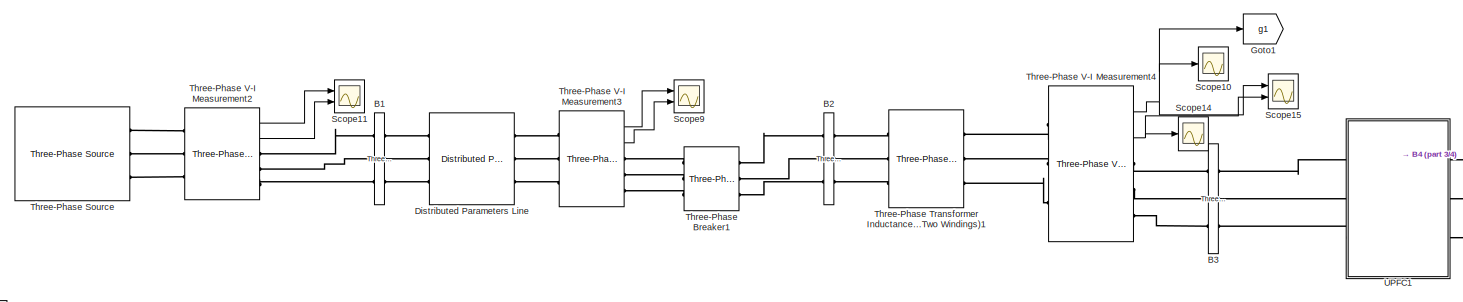
[diagram: root canvas - part 1/4, top center region]
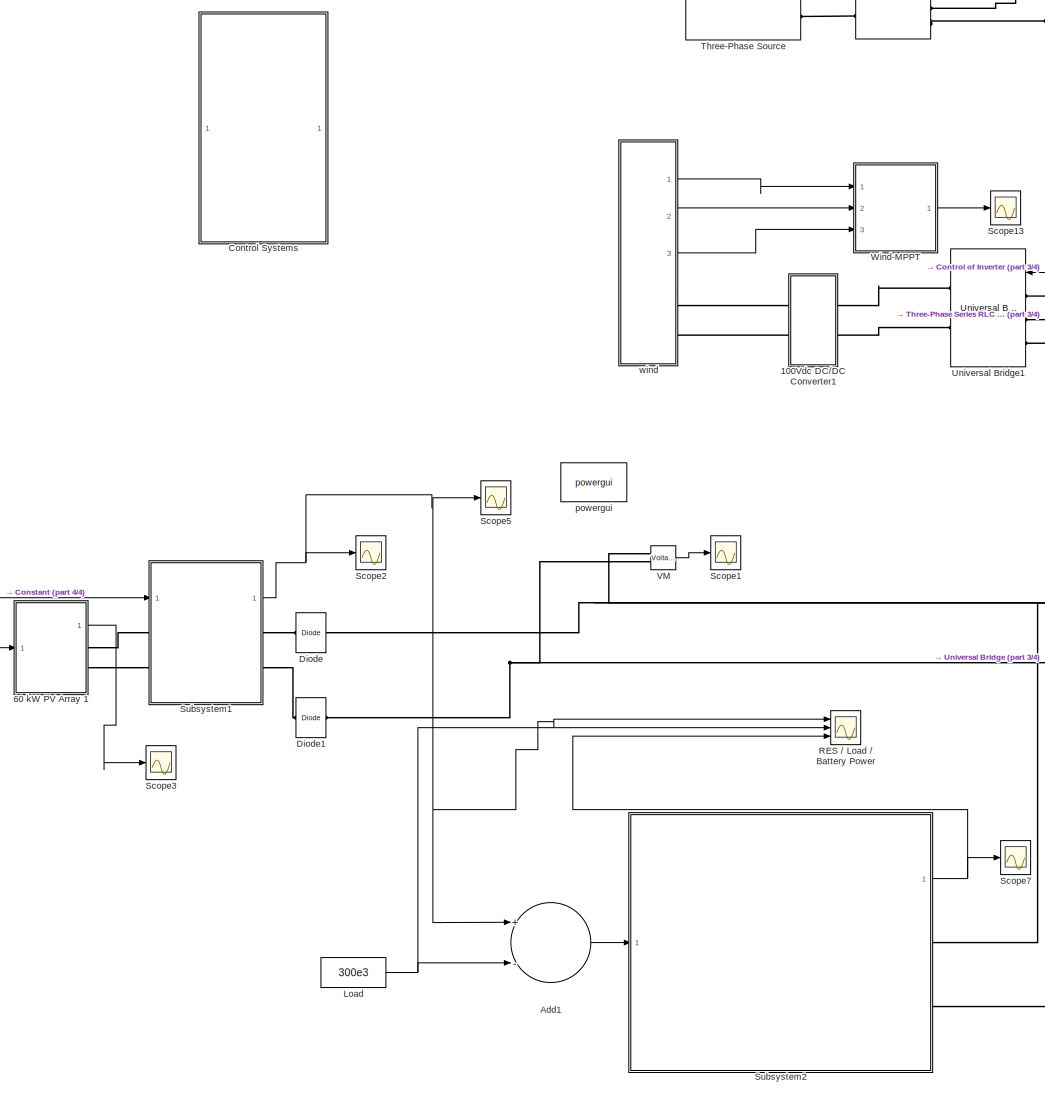
[diagram: root canvas - part 2/4, left side, full height]
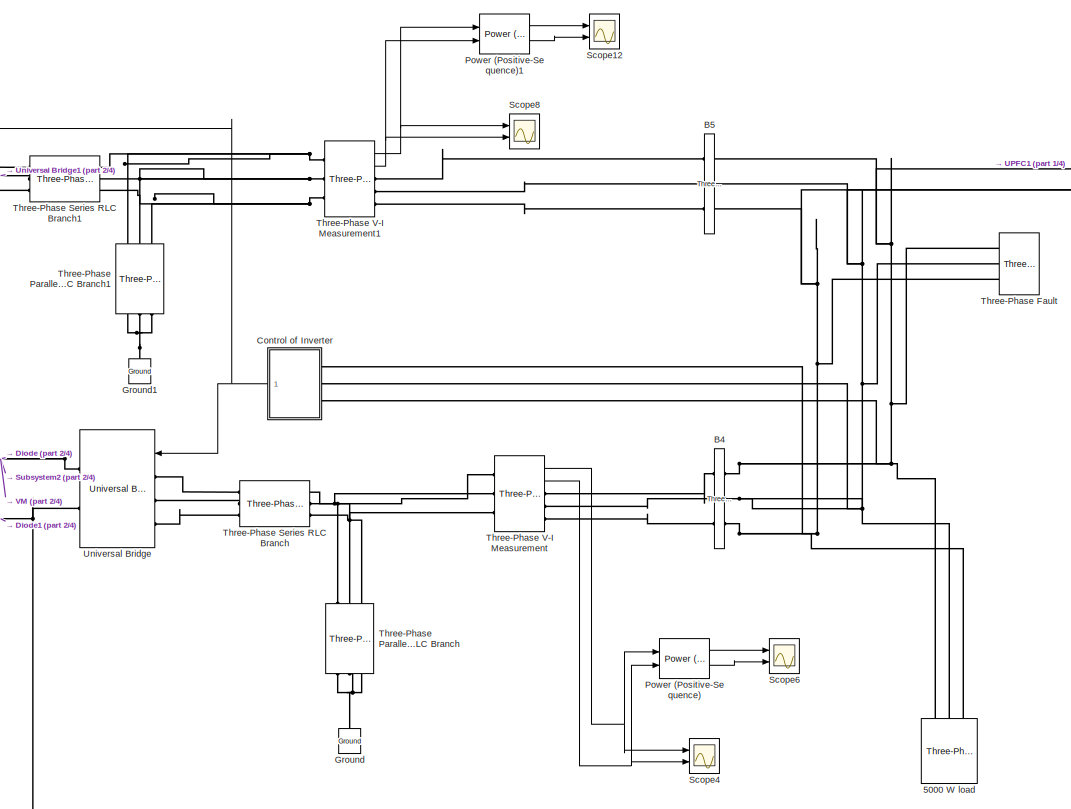
[diagram: root canvas - part 3/4, middle right region]
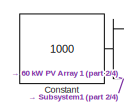
[diagram: root canvas - part 4/4, middle left region]
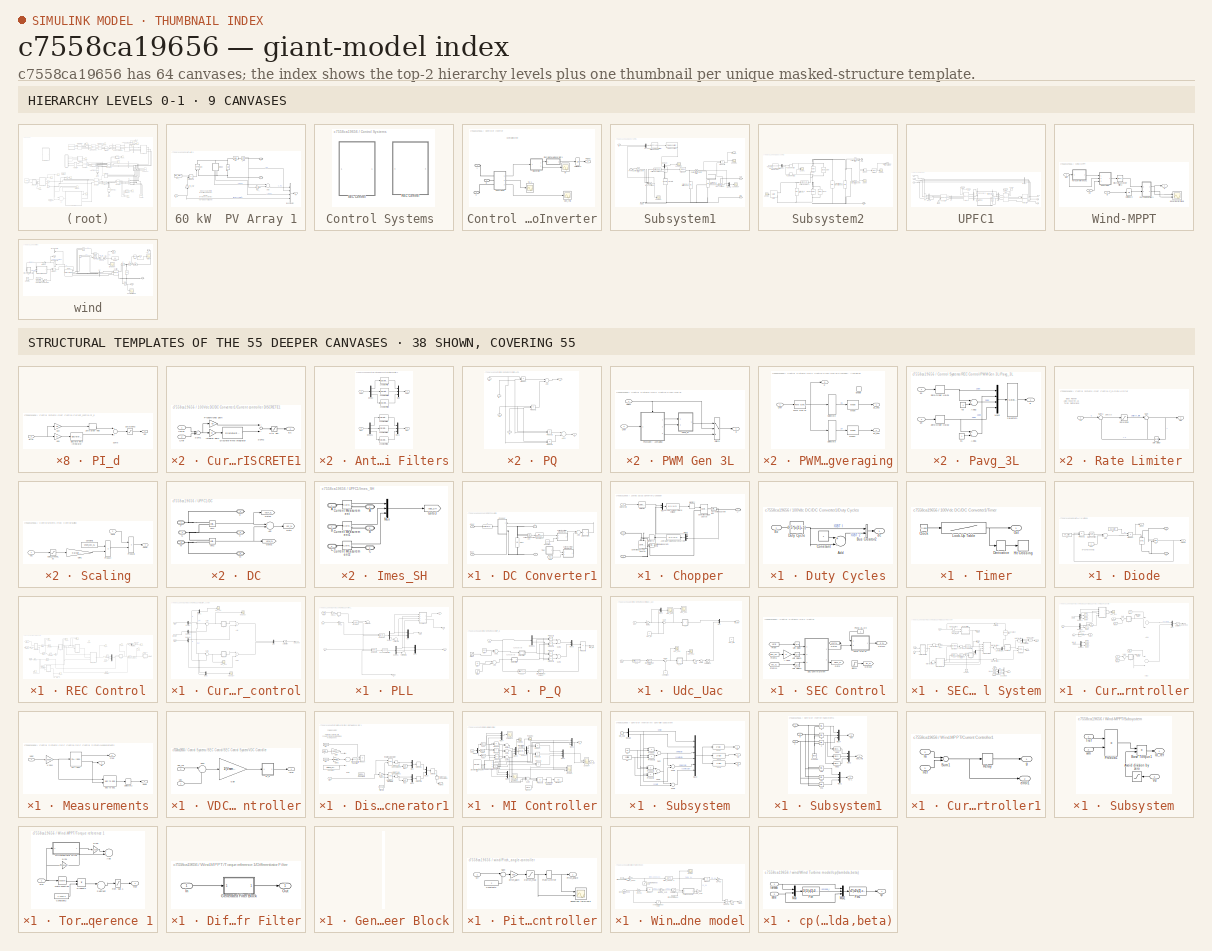
[diagram: thumbnail index - top-2 hierarchy levels (9 canvases) + 38 structural-template representatives of the remaining 55 canvases]
MODEL slx_c7558ca19656
KIND model
CONFIG AbsTol = auto
CONFIG FixedStep = auto
CONFIG MaxStep = auto
CONFIG MinStep = auto
CONFIG RelTol = 1e-3
CONFIG SampleTimeConstraint = Unconstrained
CONFIG Solver = VariableStepAuto
CONFIG SolverMode = Auto
CONFIG SolverName = VariableStepAuto
CONFIG StartTime = 0.0
CONFIG StopTime = 0.5
BLOCK [SubSystem] 100Vdc DC//DC Converter1
  Ports = [0, 0, 0, 0, 0, 2, 2]
  RequestExecContextInheritance = off
  Variant = off
BLOCK [PMIOPort] 100Vdc DC//DC Converter1/+
  Port = 1
  Side = Right
  Tag = PMCPort
BLOCK [PMIOPort] 100Vdc DC//DC Converter1/+ input
  Port = 3
  Side = Left
  Tag = PMCPort
BLOCK [PMIOPort] 100Vdc DC//DC Converter1/-
  Port = 2
  Side = Right
  Tag = PMCPort
BLOCK [PMIOPort] 100Vdc DC//DC Converter1/-input
  Port = 4
  Side = Left
  Tag = PMCPort
BLOCK [Sum] 100Vdc DC//DC Converter1/Add
  InputSameDT = off
  OutDataTypeStr = Inherit: Inherit via internal rule
  Ports = [2, 1]
  SaturateOnIntegerOverflow = off
BLOCK [Reference] 100Vdc DC//DC Converter1/CBus  REF=powerlib/Elements/Series RLC Branch
  Ports = [0, 0, 0, 0, 0, 1, 1]
  SourceBlock = powerlib/Elements/Series RLC Branch
  SourceType = Series RLC Branch
BLOCK [SubSystem] 100Vdc DC//DC Converter1/Chopper
  Ports = [1, 0, 0, 0, 0, 2, 1]
  RequestExecContextInheritance = off
  Variant = off
BLOCK [PMIOPort] 100Vdc DC//DC Converter1/Chopper/+
  Port = 2
  Side = Left
BLOCK [PMIOPort] 100Vdc DC//DC Converter1/Chopper/-
  Port = 3
  Side = Left
BLOCK [PMIOPort] 100Vdc DC//DC Converter1/Chopper/A
  Port = 1
  Side = Right
BLOCK [Fcn] 100Vdc DC//DC Converter1/Chopper/Average-value armature voltage
  Expr = u(1)*u(2)
BLOCK [Fcn] 100Vdc DC//DC Converter1/Chopper/Average-value source current
  Expr = u(1)*u(2)
BLOCK [Reference] 100Vdc DC//DC Converter1/Chopper/Controlled Current Source  REF=powerlib/Electrical
Sources/Controlled Current Source
  Ports = [1, 0, 0, 0, 0, 1, 1]
  SourceBlock = powerlib/Electrical\nSources/Controlled Current Source
  SourceType = Controlled Current Source
BLOCK [Reference] 100Vdc DC//DC Converter1/Chopper/Controlled Voltage Source  REF=powerlib/Electrical
Sources/Controlled Voltage Source
  Ports = [1, 0, 0, 0, 0, 1, 1]
  SourceBlock = powerlib/Electrical\nSources/Controlled Voltage Source
  SourceType = Controlled Voltage Source
BLOCK [Reference] 100Vdc DC//DC Converter1/Chopper/Current Measurement  REF=powerlib/Measurements/Current Measurement
  AttributesFormatString = \n
  Ports = [0, 1, 0, 0, 0, 1, 1]
  SourceBlock = powerlib/Measurements/Current Measurement
  SourceType = Current Measurement
  Tag = PoWeRsYsTeMmEaSuReMeNt
BLOCK [Inport] 100Vdc DC//DC Converter1/Chopper/Duty Cycle
  IconDisplay = Port number
BLOCK [Memory] 100Vdc DC//DC Converter1/Chopper/Memory
BLOCK [Memory] 100Vdc DC//DC Converter1/Chopper/Memory1
BLOCK [Mux] 100Vdc DC//DC Converter1/Chopper/Mux
  DisplayOption = bar
  Inputs = 2
  Ports = [2, 1]
BLOCK [Mux] 100Vdc DC//DC Converter1/Chopper/Mux1
  DisplayOption = bar
  Inputs = 2
  Ports = [2, 1]
BLOCK [Selector] 100Vdc DC//DC Converter1/Chopper/Selector
  IndexOptions = Index vector (dialog)
  Indices = [1]
  InputPortWidth = 2
  OutputSizes = 1
  Ports = [1, 1]
BLOCK [Reference] 100Vdc DC//DC Converter1/Chopper/Voltage Measurement1  REF=powerlib/Measurements/Voltage Measurement
  AttributesFormatString = \n
  Ports = [0, 1, 0, 0, 0, 2]
  SourceBlock = powerlib/Measurements/Voltage Measurement
  SourceType = Voltage Measurement
  Tag = PoWeRsYsTeMmEaSuReMeNt
BLOCK [Constant] 100Vdc DC//DC Converter1/Constant
  Value = 100
BLOCK [SubSystem] 100Vdc DC//DC Converter1/Current controller DISCRETE1
  Ports = [2, 1]
  RequestExecContextInheritance = off
  Variant = off
BLOCK [Saturate] 100Vdc DC//DC Converter1/Current controller DISCRETE1/Ctrl sat.
  InputPortMap = u0
  LowerLimit = -0.95
  Ports = [1, 1]
  UpperLimit = 0.95
BLOCK [DiscreteIntegrator] 100Vdc DC//DC Converter1/Current controller DISCRETE1/Discrete-Time Integrator
  ICPrevOutput = DiscIntNeverNeededParam
  ICPrevScaledInput = DiscIntNeverNeededParam
  IntegratorMethod = Integration: Trapezoidal
  LimitOutput = on
  LowerSaturationLimit = -0.95
  Ports = [1, 1]
  SampleTime = Ts
  UpperSaturationLimit = 0.95
BLOCK [Outport] 100Vdc DC//DC Converter1/Current controller DISCRETE1/Ec
  IconDisplay = Port number
  InitialOutput = 0
BLOCK [Gain] 100Vdc DC//DC Converter1/Current controller DISCRETE1/Integral gain
  Gain = Ki
BLOCK [Gain] 100Vdc DC//DC Converter1/Current controller DISCRETE1/Proportional gain
  Gain = Kp
BLOCK [Sum] 100Vdc DC//DC Converter1/Current controller DISCRETE1/Sum1
  Inputs = +-
  Ports = [2, 1]
BLOCK [Sum] 100Vdc DC//DC Converter1/Current controller DISCRETE1/Sum2
  Ports = [2, 1]
BLOCK [Inport] 100Vdc DC//DC Converter1/Current controller DISCRETE1/UBus
  IconDisplay = Port number
BLOCK [Inport] 100Vdc DC//DC Converter1/Current controller DISCRETE1/Uref
  IconDisplay = Port number
  Port = 2
BLOCK [SubSystem] 100Vdc DC//DC Converter1/Current controller DISCRETE2
  Ports = [2, 1]
  RequestExecContextInheritance = off
  Variant = off
BLOCK [Saturate] 100Vdc DC//DC Converter1/Current controller DISCRETE2/Ctrl sat.
  InputPortMap = u0
  LowerLimit = -0.95
  Ports = [1, 1]
  UpperLimit = 0.95
BLOCK [Outport] 100Vdc DC//DC Converter1/Current controller DISCRETE2/Delta Ec
  IconDisplay = Port number
  InitialOutput = 0
BLOCK [DiscreteIntegrator] 100Vdc DC//DC Converter1/Current controller DISCRETE2/Discrete-Time Integrator
  ICPrevOutput = DiscIntNeverNeededParam
  ICPrevScaledInput = DiscIntNeverNeededParam
  IntegratorMethod = Integration: Trapezoidal
  LimitOutput = on
  LowerSaturationLimit = -0.95
  Ports = [1, 1]
  SampleTime = Ts
  UpperSaturationLimit = 0.95
BLOCK [Gain] 100Vdc DC//DC Converter1/Current controller DISCRETE2/Integral gain
  Gain = Ki
BLOCK [Inport] 100Vdc DC//DC Converter1/Current controller DISCRETE2/Ppv
  IconDisplay = Port number
  Port = 2
BLOCK [Inport] 100Vdc DC//DC Converter1/Current controller DISCRETE2/Pref
  IconDisplay = Port number
BLOCK [Gain] 100Vdc DC//DC Converter1/Current controller DISCRETE2/Proportional gain
  Gain = Kp
BLOCK [Sum] 100Vdc DC//DC Converter1/Current controller DISCRETE2/Sum1
  Inputs = +-
  Ports = [2, 1]
BLOCK [Sum] 100Vdc DC//DC Converter1/Current controller DISCRETE2/Sum2
  Ports = [2, 1]
BLOCK [SubSystem] 100Vdc DC//DC Converter1/Duty Cycles
  Ports = [1, 1]
  RequestExecContextInheritance = off
  Variant = off
BLOCK [Sum] 100Vdc DC//DC Converter1/Duty Cycles/Add
  InputSameDT = off
  Inputs = +-
  OutDataTypeStr = Inherit: Inherit via internal rule
  Ports = [2, 1]
  SaturateOnIntegerOverflow = off
BLOCK [BusCreator] 100Vdc DC//DC Converter1/Duty Cycles/Bus Creator2
  DisplayOption = bar
  InheritFromInputs = on
  Inputs = 2
  Ports = [2, 1]
BLOCK [Constant] 100Vdc DC//DC Converter1/Duty Cycles/Constant
BLOCK [Fcn] 100Vdc DC//DC Converter1/Duty Cycles/Duty Cycle
  Expr = 0.5*(u[1]+1)
BLOCK [Inport] 100Vdc DC//DC Converter1/Duty Cycles/Ec
  IconDisplay = Port number
BLOCK [Outport] 100Vdc DC//DC Converter1/Duty Cycles/dc
  IconDisplay = Port number
BLOCK [From] 100Vdc DC//DC Converter1/From
  GotoTag = Ppv
BLOCK [Reference] 100Vdc DC//DC Converter1/L  REF=powerlib/Elements/Series RLC Branch
  Ports = [0, 0, 0, 0, 0, 1, 1]
  SourceBlock = powerlib/Elements/Series RLC Branch
  SourceType = Series RLC Branch
BLOCK [SubSystem] 100Vdc DC//DC Converter1/Timer
  DialogController = POWERSYS.PowerSysDialog
  Ports = [0, 1]
  RequestExecContextInheritance = off
  Variant = off
BLOCK [Clock] 100Vdc DC//DC Converter1/Timer/Clock
BLOCK [Derivative] 100Vdc DC//DC Converter1/Timer/Derivative
BLOCK [HitCross] 100Vdc DC//DC Converter1/Timer/Hit Crossing
  Ports = [1]
  ShowOutputPort = off
BLOCK [Lookup] 100Vdc DC//DC Converter1/Timer/Look-Up Table
  InputValues = tv
  Table = opv
BLOCK [Outport] 100Vdc DC//DC Converter1/Timer/Out
  IconDisplay = Port number
BLOCK [TransferFcn] 100Vdc DC//DC Converter1/Transfer Fcn
  Denominator = [0.001 1]
BLOCK [Reference] 100Vdc DC//DC Converter1/Voltage Measurement  REF=powerlib/Measurements/Voltage Measurement
  Ports = [0, 1, 0, 0, 0, 2]
  SourceBlock = powerlib/Measurements/Voltage Measurement
  SourceType = Voltage Measurement
BLOCK [Reference] 5000 W load   REF=powerlib/Elements/Three-Phase
Series RLC Load
  AttributesFormatString = \n
  Ports = [0, 0, 0, 0, 0, 3]
  SourceBlock = powerlib/Elements/Three-Phase\nSeries RLC Load
  SourceType = Three-Phase Series RLC Load
BLOCK [SubSystem] 60 kW  PV Array 1
  Ports = [1, 1, 0, 0, 0, 0, 2]
  RequestExecContextInheritance = off
  Variant = off
BLOCK [PMIOPort] 60 kW  PV Array 1/+
  Port = 1
  Side = Right
BLOCK [PMIOPort] 60 kW  PV Array 1/-
  Port = 2
  Side = Right
BLOCK [Sum] 60 kW  PV Array 1/Add
  InputSameDT = off
  Inputs = +-
  OutDataTypeStr = Inherit: Inherit via internal rule
  Ports = [2, 1]
  SaturateOnIntegerOverflow = off
BLOCK [BusCreator] 60 kW  PV Array 1/Bus Creator
  DisplayOption = bar
  InheritFromInputs = on
  Inputs = 4
  Ports = [4, 1]
BLOCK [SubSystem] 60 kW  PV Array 1/Diode
  Ports = [0, 2, 0, 0, 0, 1, 1]
  RequestExecContextInheritance = off
  Variant = off
BLOCK [PMIOPort] 60 kW  PV Array 1/Diode/A
  Port = 1
  Side = Left
BLOCK [Sum] 60 kW  PV Array 1/Diode/Add
  InputSameDT = off
  Inputs = +-
  OutDataTypeStr = Inherit: Inherit via internal rule
  Ports = [2, 1]
  SaturateOnIntegerOverflow = off
BLOCK [Reference] 60 kW  PV Array 1/Diode/Id  REF=powerlib/Electrical
Sources/Controlled Current Source
  Ports = [1, 0, 0, 0, 0, 1, 1]
  SourceBlock = powerlib/Electrical\nSources/Controlled Current Source
  SourceType = Controlled Current Source
BLOCK [Outport] 60 kW  PV Array 1/Diode/Idiode
  IconDisplay = Port number
  Port = 2
BLOCK [Constant] 60 kW  PV Array 1/Diode/Is
  Value = Isat_array
BLOCK [PMIOPort] 60 kW  PV Array 1/Diode/K
  Port = 2
  Side = Right
BLOCK [Math] 60 kW  PV Array 1/Diode/Math Function
  Ports = [1, 1]
BLOCK [Product] 60 kW  PV Array 1/Diode/Product
  InputSameDT = off
  OutDataTypeStr = Inherit: Inherit via internal rule
  Ports = [2, 1]
  SaturateOnIntegerOverflow = off
BLOCK [Product] 60 kW  PV Array 1/Diode/Product1
  InputSameDT = off
  Inputs = */
  OutDataTypeStr = Inherit: Inherit via internal rule
  Ports = [2, 1]
  SaturateOnIntegerOverflow = off
BLOCK [Constant] 60 kW  PV Array 1/Diode/VT
  Value = VT_array
BLOCK [Reference] 60 kW  PV Array 1/Diode/Vd  REF=powerlib/Measurements/Voltage Measurement
  Ports = [0, 1, 0, 0, 0, 2]
  SourceBlock = powerlib/Measurements/Voltage Measurement
  SourceType = Voltage Measurement
BLOCK [Outport] 60 kW  PV Array 1/Diode/Vdiode
  IconDisplay = Port number
BLOCK [Constant] 60 kW  PV Array 1/Diode/one
BLOCK [Reference] 60 kW  PV Array 1/I_PV  REF=powerlib/Measurements/Current Measurement
  Ports = [0, 1, 0, 0, 0, 1, 1]
  SourceBlock = powerlib/Measurements/Current Measurement
  SourceType = Current Measurement
BLOCK [Reference] 60 kW  PV Array 1/Iph  REF=powerlib/Electrical
Sources/Controlled Current Source
  Ports = [1, 0, 0, 0, 0, 1, 1]
  SourceBlock = powerlib/Electrical\nSources/Controlled Current Source
  SourceType = Controlled Current Source
BLOCK [Constant] 60 kW  PV Array 1/Iph_
  Value = Iph_array
BLOCK [Inport] 60 kW  PV Array 1/Ir
  IconDisplay = Port number
BLOCK [Product] 60 kW  PV Array 1/Product1
  InputSameDT = off
  Inputs = **
  OutDataTypeStr = Inherit: Inherit via internal rule
  Ports = [2, 1]
  SaturateOnIntegerOverflow = off
BLOCK [Reference] 60 kW  PV Array 1/Rp  REF=powerlib/Elements/Series RLC Branch
  Ports = [0, 0, 0, 0, 0, 1, 1]
  SourceBlock = powerlib/Elements/Series RLC Branch
  SourceType = Series RLC Branch
BLOCK [Reference] 60 kW  PV Array 1/Rs  REF=powerlib/Elements/Series RLC Branch
  Ports = [0, 0, 0, 0, 0, 1, 1]
  SourceBlock = powerlib/Elements/Series RLC Branch
  SourceType = Series RLC Branch
BLOCK [Gain] 60 kW  PV Array 1/Rs_
  Gain = Rs_array
  OutDataTypeStr = Inherit: Inherit via internal rule
  ParamDataTypeStr = Inherit: Inherit via internal rule
  SaturateOnIntegerOverflow = off
BLOCK [Outport] 60 kW  PV Array 1/m
  IconDisplay = Port number
BLOCK [Gain] 60 kW  PV Array 1/t0_kW
  Gain = 1e-3
  OutDataTypeStr = Inherit: Inherit via internal rule
  ParamDataTypeStr = Inherit: Inherit via internal rule
  SaturateOnIntegerOverflow = off
BLOCK [Sum] Add1
  InputSameDT = off
  Inputs = +-
  OutDataTypeStr = Inherit: Inherit via internal rule
  Ports = [2, 1]
  SaturateOnIntegerOverflow = off
BLOCK [Reference] B1  REF=powerlib/Measurements/Three-Phase
V-I Measurement
  Ports = [0, 0, 0, 0, 0, 3, 3]
  SourceBlock = powerlib/Measurements/Three-Phase\nV-I Measurement
  SourceType = Three-Phase VI Measurement
BLOCK [Reference] B2  REF=powerlib/Measurements/Three-Phase
V-I Measurement
  Ports = [0, 0, 0, 0, 0, 3, 3]
  SourceBlock = powerlib/Measurements/Three-Phase\nV-I Measurement
  SourceType = Three-Phase VI Measurement
BLOCK [Reference] B3  REF=powerlib/Measurements/Three-Phase
V-I Measurement
  Ports = [0, 0, 0, 0, 0, 3, 3]
  SourceBlock = powerlib/Measurements/Three-Phase\nV-I Measurement
  SourceType = Three-Phase VI Measurement
BLOCK [Reference] B4  REF=powerlib/Measurements/Three-Phase
V-I Measurement
  Ports = [0, 0, 0, 0, 0, 3, 3]
  SourceBlock = powerlib/Measurements/Three-Phase\nV-I Measurement
  SourceType = Three-Phase VI Measurement
BLOCK [Reference] B5  REF=powerlib/Measurements/Three-Phase
V-I Measurement
  Ports = [0, 0, 0, 0, 0, 3, 3]
  SourceBlock = powerlib/Measurements/Three-Phase\nV-I Measurement
  SourceType = Three-Phase VI Measurement
BLOCK [Constant] Constant
  Value = 1000
BLOCK [SubSystem] Control Systems 
  Ports = []
  RequestExecContextInheritance = off
  Variant = off
BLOCK [SubSystem] Control Systems /REC Control
  Ports = []
  RequestExecContextInheritance = off
  Variant = off
BLOCK [Saturate] Control Systems /REC Control/0.8 to 1.2 x Vnom_dc
  InputPortMap = u0
  LowerLimit = 0
  Ports = [1, 1]
  UpperLimit = 1.5
BLOCK [SubSystem] Control Systems /REC Control/Anti Aliasing Filters
  Ports = [2, 2]
  RequestExecContextInheritance = off
  Variant = off
BLOCK [Outport] Control Systems /REC Control/Anti Aliasing Filters/ Vabc
  IconDisplay = Port number
BLOCK [Reference] Control Systems /REC Control/Anti Aliasing Filters/2nd-Order Filter  REF=powerlib_extras/Discrete 
Control Blocks/Discrete 
2nd-Order
Filter
  Ports = [1, 1]
  SourceBlock = powerlib_extras/Discrete \nControl Blocks/Discrete \n2nd-Order\nFilter
  SourceType = Discrete 2nd-Order Filter
BLOCK [Reference] Control Systems /REC Control/Anti Aliasing Filters/2nd-Order Filter1  REF=powerlib_extras/Discrete 
Control Blocks/Discrete 
2nd-Order
Filter
  Ports = [1, 1]
  SourceBlock = powerlib_extras/Discrete \nControl Blocks/Discrete \n2nd-Order\nFilter
  SourceType = Discrete 2nd-Order Filter
BLOCK [Reference] Control Systems /REC Control/Anti Aliasing Filters/2nd-Order Filter2  REF=powerlib_extras/Discrete 
Control Blocks/Discrete 
2nd-Order
Filter
  Ports = [1, 1]
  SourceBlock = powerlib_extras/Discrete \nControl Blocks/Discrete \n2nd-Order\nFilter
  SourceType = Discrete 2nd-Order Filter
BLOCK [Reference] Control Systems /REC Control/Anti Aliasing Filters/2nd-Order Filter3  REF=powerlib_extras/Discrete 
Control Blocks/Discrete 
2nd-Order
Filter
  Ports = [1, 1]
  SourceBlock = powerlib_extras/Discrete \nControl Blocks/Discrete \n2nd-Order\nFilter
  SourceType = Discrete 2nd-Order Filter
BLOCK [Reference] Control Systems /REC Control/Anti Aliasing Filters/2nd-Order Filter4  REF=powerlib_extras/Discrete 
Control Blocks/Discrete 
2nd-Order
Filter
  Ports = [1, 1]
  SourceBlock = powerlib_extras/Discrete \nControl Blocks/Discrete \n2nd-Order\nFilter
  SourceType = Discrete 2nd-Order Filter
BLOCK [Reference] Control Systems /REC Control/Anti Aliasing Filters/2nd-Order Filter5  REF=powerlib_extras/Discrete 
Control Blocks/Discrete 
2nd-Order
Filter
  Ports = [1, 1]
  SourceBlock = powerlib_extras/Discrete \nControl Blocks/Discrete \n2nd-Order\nFilter
  SourceType = Discrete 2nd-Order Filter
BLOCK [Demux] Control Systems /REC Control/Anti Aliasing Filters/Demux
  Outputs = 3
  Ports = [1, 3]
BLOCK [Demux] Control Systems /REC Control/Anti Aliasing Filters/Demux1
  Outputs = 3
  Ports = [1, 3]
BLOCK [Outport] Control Systems /REC Control/Anti Aliasing Filters/Iabc
  IconDisplay = Port number
  Port = 2
BLOCK [Inport] Control Systems /REC Control/Anti Aliasing Filters/Iabc 
  IconDisplay = Port number
  Port = 2
  PortDimensions = 3
BLOCK [Mux] Control Systems /REC Control/Anti Aliasing Filters/Mux
  DisplayOption = bar
  Inputs = 3
  Ports = [3, 1]
BLOCK [Mux] Control Systems /REC Control/Anti Aliasing Filters/Mux1
  DisplayOption = bar
  Inputs = 3
  Ports = [3, 1]
BLOCK [Inport] Control Systems /REC Control/Anti Aliasing Filters/Vabc
  IconDisplay = Port number
  PortDimensions = 3
BLOCK [Constant] Control Systems /REC Control/Constant
  SampleTime = 1e-6
  Value = 0
BLOCK [SubSystem] Control Systems /REC Control/Current_control
  Ports = [3, 1]
  RequestExecContextInheritance = off
  Variant = off
BLOCK [Sum] Control Systems /REC Control/Current_control/Add
  InputSameDT = off
  Inputs = -+
  OutDataTypeStr = Inherit: Inherit via internal rule
  Ports = [2, 1]
  SaturateOnIntegerOverflow = off
BLOCK [Sum] Control Systems /REC Control/Current_control/Add1
  InputSameDT = off
  Inputs = -+
  OutDataTypeStr = Inherit: Inherit via internal rule
  Ports = [2, 1]
  SaturateOnIntegerOverflow = off
BLOCK [Demux] Control Systems /REC Control/Current_control/Demux
  DisplayOption = bar
  Outputs = 2
  Ports = [1, 2]
BLOCK [Demux] Control Systems /REC Control/Current_control/Demux1
  DisplayOption = bar
  Outputs = 2
  Ports = [1, 2]
BLOCK [Demux] Control Systems /REC Control/Current_control/Demux2
  DisplayOption = bar
  Outputs = 2
  Ports = [1, 2]
BLOCK [Mux] Control Systems /REC Control/Current_control/Mux
  DisplayOption = bar
  Inputs = 2
  Ports = [2, 1]
BLOCK [Mux] Control Systems /REC Control/Current_control/Mux1
  DisplayOption = bar
  Inputs = 2
  Ports = [2, 1]
BLOCK [Mux] Control Systems /REC Control/Current_control/Mux2
  DisplayOption = bar
  Inputs = 2
  Ports = [2, 1]
BLOCK [SubSystem] Control Systems /REC Control/Current_control/PI_d
  DialogController = POWERSYS.PowerSysDialog
  Ports = [1, 1]
  RequestExecContextInheritance = off
  Variant = off
BLOCK [DiscreteIntegrator] Control Systems /REC Control/Current_control/PI_d/Discrete-Time Integrator
  ICPrevOutput = DiscIntNeverNeededParam
  ICPrevScaledInput = DiscIntNeverNeededParam
  InitialCondition = Init
  LimitOutput = on
  LowerSaturationLimit = LowerLimit
  Ports = [1, 1]
  SampleTime = Ts
  UpperSaturationLimit = UpperLimit
BLOCK [Inport] Control Systems /REC Control/Current_control/PI_d/Error
  IconDisplay = Port number
  SampleTime = Ts
BLOCK [Gain] Control Systems /REC Control/Current_control/PI_d/Kp4
  Gain = Kp
  SampleTime = Ts
BLOCK [Gain] Control Systems /REC Control/Current_control/PI_d/Kp5
  Gain = Ki
  SampleTime = Ts
BLOCK [Outport] Control Systems /REC Control/Current_control/PI_d/Out
  IconDisplay = Port number
  InitialOutput = 0
  SampleTime = Ts
BLOCK [Saturate] Control Systems /REC Control/Current_control/PI_d/Saturation2
  InputPortMap = u0
  LowerLimit = LowerLimit
  Ports = [1, 1]
  SampleTime = Ts
  UpperLimit = UpperLimit
BLOCK [Sum] Control Systems /REC Control/Current_control/PI_d/Sum6
  Ports = [2, 1]
  SampleTime = Ts
BLOCK [ZeroOrderHold] Control Systems /REC Control/Current_control/PI_d/Zero-Order Hold
  SampleTime = Ts
BLOCK [SubSystem] Control Systems /REC Control/Current_control/PI_d1
  DialogController = POWERSYS.PowerSysDialog
  Ports = [1, 1]
  RequestExecContextInheritance = off
  Variant = off
BLOCK [DiscreteIntegrator] Control Systems /REC Control/Current_control/PI_d1/Discrete-Time Integrator
  ICPrevOutput = DiscIntNeverNeededParam
  ICPrevScaledInput = DiscIntNeverNeededParam
  InitialCondition = Init
  LimitOutput = on
  LowerSaturationLimit = LowerLimit
  Ports = [1, 1]
  SampleTime = Ts
  UpperSaturationLimit = UpperLimit
BLOCK [Inport] Control Systems /REC Control/Current_control/PI_d1/Error
  IconDisplay = Port number
  SampleTime = Ts
BLOCK [Gain] Control Systems /REC Control/Current_control/PI_d1/Kp4
  Gain = Kp
  SampleTime = Ts
BLOCK [Gain] Control Systems /REC Control/Current_control/PI_d1/Kp5
  Gain = Ki
  SampleTime = Ts
BLOCK [Outport] Control Systems /REC Control/Current_control/PI_d1/Out
  IconDisplay = Port number
  InitialOutput = 0
  SampleTime = Ts
BLOCK [Saturate] Control Systems /REC Control/Current_control/PI_d1/Saturation2
  InputPortMap = u0
  LowerLimit = LowerLimit
  Ports = [1, 1]
  SampleTime = Ts
  UpperLimit = UpperLimit
BLOCK [Sum] Control Systems /REC Control/Current_control/PI_d1/Sum6
  Ports = [2, 1]
  SampleTime = Ts
BLOCK [ZeroOrderHold] Control Systems /REC Control/Current_control/PI_d1/Zero-Order Hold
  SampleTime = Ts
BLOCK [Saturate] Control Systems /REC Control/Current_control/Saturation
  InputPortMap = u0
  LowerLimit = LimitL_Ireg_3L
  Ports = [1, 1]
  UpperLimit = LimitU_Ireg_3L
BLOCK [Sum] Control Systems /REC Control/Current_control/Sum
  IconShape = round
  InputSameDT = off
  Inputs = |-+
  OutDataTypeStr = Inherit: Inherit via internal rule
  Ports = [2, 1]
  SaturateOnIntegerOverflow = off
BLOCK [Sum] Control Systems /REC Control/Current_control/Sum1
  IconShape = round
  InputSameDT = off
  Inputs = |+-
  OutDataTypeStr = Inherit: Inherit via internal rule
  Ports = [2, 1]
  SaturateOnIntegerOverflow = off
BLOCK [Inport] Control Systems /REC Control/Current_control/Udq
  IconDisplay = Port number
  Port = 3
BLOCK [Scope] Control Systems /REC Control/Current_control/Vdc_3L1
  Ports = [1]
  ScopeSpecificationString = Simulink.scopes.TimeScopeBlockCfg('CurrentConfiguration', extmgr.ConfigurationSet(extmgr.Configuration('Core','General UI',true),extmgr.Configuration('Core','Source UI',true),extmgr.Configuration('Sources','WiredSimulink',true,'DataLoggingVariableName','ScopeData11'),extmgr.Configuration('Visuals','Time Domain',true,'SerializedDisplays',{struct('MinYLimReal','-5.79945','MaxYLimReal','5.49649','YLa...<+1487ch>
BLOCK [Scope] Control Systems /REC Control/Current_control/Vdc_3L2
  Ports = [1]
  ScopeSpecificationString = Simulink.scopes.TimeScopeBlockCfg('CurrentConfiguration', extmgr.ConfigurationSet(extmgr.Configuration('Core','General UI',true),extmgr.Configuration('Core','Source UI',true),extmgr.Configuration('Sources','WiredSimulink',true,'DataLoggingVariableName','ScopeData12'),extmgr.Configuration('Visuals','Time Domain',true,'SerializedDisplays',{struct('MinYLimReal','-1.09194','MaxYLimReal','0.26107','YLa...<+1517ch>
BLOCK [Scope] Control Systems /REC Control/Current_control/Vdc_3L4
  Ports = [1]
  ScopeSpecificationString = Simulink.scopes.TimeScopeBlockCfg('CurrentConfiguration', extmgr.ConfigurationSet(extmgr.Configuration('Core','General UI',true),extmgr.Configuration('Core','Source UI',true),extmgr.Configuration('Sources','WiredSimulink',true,'DataLoggingVariableName','ScopeData14'),extmgr.Configuration('Visuals','Time Domain',true,'SerializedDisplays',{struct('MinYLimReal','-0.87369','MaxYLimReal','0.76501','YLa...<+1517ch>
BLOCK [Scope] Control Systems /REC Control/Current_control/Vdc_3L7
  Ports = [1]
  ScopeSpecificationString = Simulink.scopes.TimeScopeBlockCfg('CurrentConfiguration', extmgr.ConfigurationSet(extmgr.Configuration('Core','General UI',true),extmgr.Configuration('Core','Source UI',true),extmgr.Configuration('Sources','WiredSimulink',true,'DataLoggingVariableName','ScopeData10'),extmgr.Configuration('Visuals','Time Domain',true,'SerializedDisplays',{struct('MinYLimReal','-0.80574','MaxYLimReal','0.72889','YLa...<+1486ch>
BLOCK [Inport] Control Systems /REC Control/Current_control/idq
  IconDisplay = Port number
BLOCK [Inport] Control Systems /REC Control/Current_control/idq_ref
  IconDisplay = Port number
  Port = 2
BLOCK [Outport] Control Systems /REC Control/Current_control/udq_con
  IconDisplay = Port number
BLOCK [Demux] Control Systems /REC Control/Demux
  DisplayOption = bar
  Outputs = 3
  Ports = [1, 3]
BLOCK [From] Control Systems /REC Control/From
  GotoTag = Uinv
BLOCK [From] Control Systems /REC Control/From2
  GotoTag = Iabc_SE
  TagVisibility = global
BLOCK [From] Control Systems /REC Control/From3
  GotoTag = Vdc_inv
  TagVisibility = global
BLOCK [Gain] Control Systems /REC Control/Gain
  Gain = -1
  OutDataTypeStr = Inherit: Inherit via internal rule
  ParamDataTypeStr = Inherit: Inherit via internal rule
  SaturateOnIntegerOverflow = off
BLOCK [Goto] Control Systems /REC Control/Goto1
  GotoTag = idq_ref_tst
  TagVisibility = global
BLOCK [Goto] Control Systems /REC Control/Goto11
  GotoTag = g_inv
  TagVisibility = global
BLOCK [Gain] Control Systems /REC Control/I-->pu
  Gain = 1/(Pnom_dc_3L*sqrt(2)/(Vnom_prim_3L*sqrt(3)))
  OutDataTypeStr = Inherit: Inherit via internal rule
  ParamDataTypeStr = Inherit: Inherit via internal rule
  SaturateOnIntegerOverflow = off
BLOCK [Math] Control Systems /REC Control/Math Function
  Operator = hypot
  Ports = [2, 1]
BLOCK [Mux] Control Systems /REC Control/Mux
  DisplayOption = bar
  Inputs = 2
  Ports = [2, 1]
BLOCK [SubSystem] Control Systems /REC Control/PLL
  Ports = [2, 5]
  RequestExecContextInheritance = off
  Variant = off
BLOCK [Demux] Control Systems /REC Control/PLL/Demux
  DisplayOption = bar
  Outputs = 3
  Ports = [1, 3]
BLOCK [Demux] Control Systems /REC Control/PLL/Demux1
  DisplayOption = bar
  Outputs = 3
  Ports = [1, 3]
BLOCK [From] Control Systems /REC Control/PLL/From
  GotoTag = Vgrid
BLOCK [Inport] Control Systems /REC Control/PLL/Iac
  IconDisplay = Port number
  Port = 2
BLOCK [Mux] Control Systems /REC Control/PLL/Mux
  DisplayOption = bar
  Inputs = 2
  Ports = [2, 1]
BLOCK [Mux] Control Systems /REC Control/PLL/Mux1
  DisplayOption = bar
  Inputs = 2
  Ports = [2, 1]
BLOCK [Outport] Control Systems /REC Control/PLL/P
  IconDisplay = Port number
  Port = 3
BLOCK [Reference] Control Systems /REC Control/PLL/PLL (3ph)  REF=powerlib_meascontrol/PLL/PLL
(3ph)
  Ports = [1, 2]
  SourceBlock = powerlib_meascontrol/PLL/PLL\n(3ph)
  SourceType = PLL (3ph)
BLOCK [SubSystem] Control Systems /REC Control/PLL/PQ
  Ports = [4, 2]
  RequestExecContextInheritance = off
  Variant = off
BLOCK [Sum] Control Systems /REC Control/PLL/PQ/Add
  InputSameDT = off
  OutDataTypeStr = Inherit: Inherit via internal rule
  Ports = [2, 1]
  SaturateOnIntegerOverflow = off
BLOCK [Sum] Control Systems /REC Control/PLL/PQ/Add1
  InputSameDT = off
  Inputs = +-
  OutDataTypeStr = Inherit: Inherit via internal rule
  Ports = [2, 1]
  SaturateOnIntegerOverflow = off
BLOCK [Outport] Control Systems /REC Control/PLL/PQ/P
  IconDisplay = Port number
BLOCK [Product] Control Systems /REC Control/PLL/PQ/Product
  InputSameDT = off
  OutDataTypeStr = Inherit: Inherit via internal rule
  Ports = [2, 1]
  RndMeth = Floor
  SaturateOnIntegerOverflow = off
BLOCK [Product] Control Systems /REC Control/PLL/PQ/Product1
  InputSameDT = off
  OutDataTypeStr = Inherit: Inherit via internal rule
  Ports = [2, 1]
  RndMeth = Floor
  SaturateOnIntegerOverflow = off
BLOCK [Product] Control Systems /REC Control/PLL/PQ/Product2
  InputSameDT = off
  OutDataTypeStr = Inherit: Inherit via internal rule
  Ports = [2, 1]
  RndMeth = Floor
  SaturateOnIntegerOverflow = off
BLOCK [Product] Control Systems /REC Control/PLL/PQ/Product3
  InputSameDT = off
  OutDataTypeStr = Inherit: Inherit via internal rule
  Ports = [2, 1]
  RndMeth = Floor
  SaturateOnIntegerOverflow = off
BLOCK [Outport] Control Systems /REC Control/PLL/PQ/Q
  IconDisplay = Port number
  Port = 2
BLOCK [Inport] Control Systems /REC Control/PLL/PQ/id
  IconDisplay = Port number
  Port = 2
BLOCK [Inport] Control Systems /REC Control/PLL/PQ/iq
  IconDisplay = Port number
  Port = 4
BLOCK [Inport] Control Systems /REC Control/PLL/PQ/ud
  IconDisplay = Port number
BLOCK [Inport] Control Systems /REC Control/PLL/PQ/uq
  IconDisplay = Port number
  Port = 3
BLOCK [Outport] Control Systems /REC Control/PLL/Q
  IconDisplay = Port number
  Port = 4
BLOCK [RateTransition] Control Systems /REC Control/PLL/RT
  OutPortSampleTime = Ts_Control
BLOCK [Reference] Control Systems /REC Control/PLL/Second-Order Filter  REF=powerlib_meascontrol/Filters/Second-Order
Filter
  Ports = [1, 1]
  SourceBlock = powerlib_meascontrol/Filters/Second-Order\nFilter
  SourceType = Second-Order Filter
BLOCK [Terminator] Control Systems /REC Control/PLL/Terminator
BLOCK [Terminator] Control Systems /REC Control/PLL/Terminator1
BLOCK [Terminator] Control Systems /REC Control/PLL/Terminator2
BLOCK [Inport] Control Systems /REC Control/PLL/Uac
  IconDisplay = Port number
BLOCK [Outport] Control Systems /REC Control/PLL/Udq
  IconDisplay = Port number
BLOCK [Gain] Control Systems /REC Control/PLL/V-->pu
  Gain = 1/(Vnom_prim_3L*sqrt(2)/sqrt(3))
  OutDataTypeStr = Inherit: Inherit via internal rule
  ParamDataTypeStr = Inherit: Inherit via internal rule
  SaturateOnIntegerOverflow = off
BLOCK [Gain] Control Systems /REC Control/PLL/V-->pu1
  Gain = 1/(Vnom_prim_3L*sqrt(2)/sqrt(3))
  OutDataTypeStr = Inherit: Inherit via internal rule
  ParamDataTypeStr = Inherit: Inherit via internal rule
  SaturateOnIntegerOverflow = off
BLOCK [Reference] Control Systems /REC Control/PLL/abc to dq0  REF=powerlib_meascontrol/Transformations/abc to dq0
  Ports = [2, 1]
  SourceBlock = powerlib_meascontrol/Transformations/abc to dq0
  SourceType = abc to dq0 Transformation
BLOCK [Reference] Control Systems /REC Control/PLL/abc to dq1  REF=powerlib_meascontrol/Transformations/abc to dq0
  Ports = [2, 1]
  SourceBlock = powerlib_meascontrol/Transformations/abc to dq0
  SourceType = abc to dq0 Transformation
BLOCK [Outport] Control Systems /REC Control/PLL/idq
  IconDisplay = Port number
  Port = 2
BLOCK [Outport] Control Systems /REC Control/PLL/w
  IconDisplay = Port number
  Port = 5
BLOCK [SubSystem] Control Systems /REC Control/PWM Gen 3L
  Ports = [2, 1]
  RequestExecContextInheritance = off
  Variant = off
BLOCK [SubSystem] Control Systems /REC Control/PWM Gen 3L/PWMgen - Averaging
  Ports = [1, 3, 1]
  RequestExecContextInheritance = off
  Variant = off
BLOCK [EnablePort] Control Systems /REC Control/PWM Gen 3L/PWMgen - Averaging/Enable
  Ports = []
BLOCK [Reference] Control Systems /REC Control/PWM Gen 3L/PWMgen - Averaging/Mean  REF=powerlib_meascontrol/Measurements/Mean
  Ports = [1, 1]
  SourceBlock = powerlib_meascontrol/Measurements/Mean
  SourceType = Mean
BLOCK [Reference] Control Systems /REC Control/PWM Gen 3L/PWMgen - Averaging/Mean1  REF=powerlib_meascontrol/Measurements/Mean
  Ports = [1, 1]
  SourceBlock = powerlib_meascontrol/Measurements/Mean
  SourceType = Mean
BLOCK [Outport] Control Systems /REC Control/PWM Gen 3L/PWMgen - Averaging/P
  IconDisplay = Port number
  Port = 3
BLOCK [Reference] Control Systems /REC Control/PWM Gen 3L/PWMgen - Averaging/PWM Gen 3L  REF=powerlib_meascontrol/Pulse & Signal
Generators/PWM Generator
(3-Level)
  Ports = [1, 1]
  SourceBlock = powerlib_meascontrol/Pulse & Signal\nGenerators/PWM Generator\n(3-Level)
  SourceType = PWM Generator (3-Level)
BLOCK [Selector] Control Systems /REC Control/PWM Gen 3L/PWMgen - Averaging/Selector2
  IndexOptions = Index vector (dialog)
  Indices = [1  5  9]
  InputPortWidth = 12
  OutputSizes = 1
  Ports = [1, 1]
BLOCK [Selector] Control Systems /REC Control/PWM Gen 3L/PWMgen - Averaging/Selector3
  IndexOptions = Index vector (dialog)
  Indices = [1  5  9]+3
  InputPortWidth = 12
  OutputSizes = 1
  Ports = [1, 1]
BLOCK [Inport] Control Systems /REC Control/PWM Gen 3L/PWMgen - Averaging/Uref
  IconDisplay = Port number
BLOCK [Outport] Control Systems /REC Control/PWM Gen 3L/PWMgen - Averaging/g1_avg
  IconDisplay = Port number
BLOCK [Outport] Control Systems /REC Control/PWM Gen 3L/PWMgen - Averaging/g4_avg
  IconDisplay = Port number
  Port = 2
BLOCK [SubSystem] Control Systems /REC Control/PWM Gen 3L/Pavg_3L
  Ports = [2, 1]
  RequestExecContextInheritance = off
  Variant = off
BLOCK [Sum] Control Systems /REC Control/PWM Gen 3L/Pavg_3L/Add1
  InputSameDT = off
  Inputs = -+
  OutDataTypeStr = Inherit: Inherit via internal rule
  Ports = [2, 1]
  SaturateOnIntegerOverflow = off
BLOCK [Sum] Control Systems /REC Control/PWM Gen 3L/Pavg_3L/Add2
  InputSameDT = off
  Inputs = -+
  OutDataTypeStr = Inherit: Inherit via internal rule
  Ports = [2, 1]
  SaturateOnIntegerOverflow = off
BLOCK [Mux] Control Systems /REC Control/PWM Gen 3L/Pavg_3L/Mux2
  DisplayOption = bar
  Inputs = [ 3 3 3 3 ]
  Ports = [4, 1]
BLOCK [Selector] Control Systems /REC Control/PWM Gen 3L/Pavg_3L/Selector1
  IndexOptions = Index vector (dialog)
  Indices = [1 4 7 10 2 5 8 11 3 6 9 12]
  InputPortWidth = 12
  OutputSizes = 1
  Ports = [1, 1]
BLOCK [ZeroOrderHold] Control Systems /REC Control/PWM Gen 3L/Pavg_3L/Zero-Order Hold1
  SampleTime = Ts_Power
BLOCK [ZeroOrderHold] Control Systems /REC Control/PWM Gen 3L/Pavg_3L/Zero-Order Hold2
  SampleTime = Ts_Power
BLOCK [Outport] Control Systems /REC Control/PWM Gen 3L/Pavg_3L/g
  IconDisplay = Port number
  SampleTime = Ts_Power
BLOCK [Inport] Control Systems /REC Control/PWM Gen 3L/Pavg_3L/g1
  IconDisplay = Port number
  SampleTime = Ts_PWM
BLOCK [Inport] Control Systems /REC Control/PWM Gen 3L/Pavg_3L/g4
  IconDisplay = Port number
  Port = 2
  SampleTime = Ts_PWM
BLOCK [Constant] Control Systems /REC Control/PWM Gen 3L/Pavg_3L/k1
BLOCK [Constant] Control Systems /REC Control/PWM Gen 3L/Pavg_3L/k3
BLOCK [Inport] Control Systems /REC Control/PWM Gen 3L/Select
  IconDisplay = Port number
BLOCK [Switch] Control Systems /REC Control/PWM Gen 3L/Switch
  InputSameDT = off
  SaturateOnIntegerOverflow = off
  Threshold = 1.5
BLOCK [Inport] Control Systems /REC Control/PWM Gen 3L/Uref
  IconDisplay = Port number
  Port = 2
BLOCK [Outport] Control Systems /REC Control/PWM Gen 3L/g
  IconDisplay = Port number
BLOCK [Constant] Control Systems /REC Control/PWM_3L_On
  AttributesFormatString = %<Tag>
BLOCK [SubSystem] Control Systems /REC Control/P_Q
  Ports = [1, 1]
  RequestExecContextInheritance = off
  Variant = off
BLOCK [Sum] Control Systems /REC Control/P_Q/Add
  InputSameDT = off
  OutDataTypeStr = Inherit: Inherit via internal rule
  Ports = [2, 1]
  SaturateOnIntegerOverflow = off
BLOCK [Sum] Control Systems /REC Control/P_Q/Add1
  InputSameDT = off
  OutDataTypeStr = Inherit: Inherit via internal rule
  Ports = [2, 1]
  SaturateOnIntegerOverflow = off
BLOCK [Demux] Control Systems /REC Control/P_Q/Demux1
  Outputs = 2
  Ports = [1, 2]
BLOCK [Reference] Control Systems /REC Control/P_Q/Discrete Mean value1  REF=powerlib_extras/Discrete
Measurements/Discrete 
Mean value
  Ports = [1, 1]
  SourceBlock = powerlib_extras/Discrete\nMeasurements/Discrete \nMean value
  SourceType = Discrete Mean value
BLOCK [Fcn] Control Systems /REC Control/P_Q/Fcn1
  Expr = sqrt(u[1]^2+u[2]^2)
  SampleTime = Ts_Control
BLOCK [Mux] Control Systems /REC Control/P_Q/Mux3
  DisplayOption = bar
  Inputs = 2
  Ports = [2, 1]
BLOCK [Product] Control Systems /REC Control/P_Q/Product2
  Ports = [2, 1]
  RndMeth = Floor
BLOCK [Product] Control Systems /REC Control/P_Q/Product3
  Ports = [2, 1]
  RndMeth = Floor
BLOCK [Product] Control Systems /REC Control/P_Q/Product4
  Ports = [2, 1]
  RndMeth = Floor
BLOCK [Product] Control Systems /REC Control/P_Q/Product5
  Ports = [2, 1]
  RndMeth = Floor
BLOCK [Product] Control Systems /REC Control/P_Q/Product6
  Inputs = */
  Ports = [2, 1]
  RndMeth = Floor
BLOCK [SubSystem] Control Systems /REC Control/P_Q/Rate Limiter 
  DialogController = POWERSYS.PowerSysDialog
  Ports = [1, 1]
  RequestExecContextInheritance = off
  Variant = off
BLOCK [SubSystem] Control Systems /REC Control/P_Q/Rate Limiter  
  DialogController = POWERSYS.PowerSysDialog
  Ports = [1, 1]
  RequestExecContextInheritance = off
  Variant = off
BLOCK [Inport] Control Systems /REC Control/P_Q/Rate Limiter  /In
  IconDisplay = Port number
BLOCK [Outport] Control Systems /REC Control/P_Q/Rate Limiter  /Out
  IconDisplay = Port number
BLOCK [Saturate] Control Systems /REC Control/P_Q/Rate Limiter  /Saturation
  InputPortMap = u0
  LowerLimit = LowerLimit
  Ports = [1, 1]
  UpperLimit = UpperLimit
BLOCK [Sum] Control Systems /REC Control/P_Q/Rate Limiter  /Sum
  IconShape = round
  Inputs = |++
  Ports = [2, 1]
BLOCK [Sum] Control Systems /REC Control/P_Q/Rate Limiter  /Sum1
  IconShape = round
  Inputs = |+-
  Ports = [2, 1]
BLOCK [UnitDelay] Control Systems /REC Control/P_Q/Rate Limiter  /Unit Delay
  InitialCondition = Vinit
  SampleTime = Ts
BLOCK [Inport] Control Systems /REC Control/P_Q/Rate Limiter /In
  IconDisplay = Port number
BLOCK [Outport] Control Systems /REC Control/P_Q/Rate Limiter /Out
  IconDisplay = Port number
BLOCK [Saturate] Control Systems /REC Control/P_Q/Rate Limiter /Saturation
  InputPortMap = u0
  LowerLimit = LowerLimit
  Ports = [1, 1]
  UpperLimit = UpperLimit
BLOCK [Sum] Control Systems /REC Control/P_Q/Rate Limiter /Sum
  IconShape = round
  Inputs = |++
  Ports = [2, 1]
BLOCK [Sum] Control Systems /REC Control/P_Q/Rate Limiter /Sum1
  IconShape = round
  Inputs = |+-
  Ports = [2, 1]
BLOCK [UnitDelay] Control Systems /REC Control/P_Q/Rate Limiter /Unit Delay
  InitialCondition = Vinit
  SampleTime = Ts
BLOCK [Step] Control Systems /REC Control/P_Q/Step
  After = 0.3
  SampleTime = Ts_Control
  Time = 0.9
BLOCK [Step] Control Systems /REC Control/P_Q/Step1
  After = -0.3
  SampleTime = Ts_Control
  Time = 1.3
BLOCK [Sum] Control Systems /REC Control/P_Q/Sum2
  Ports = [2, 1]
BLOCK [Sum] Control Systems /REC Control/P_Q/Sum3
  Inputs = +-
  Ports = [2, 1]
BLOCK [Outport] Control Systems /REC Control/P_Q/idq_ref
  IconDisplay = Port number
BLOCK [Constant] Control Systems /REC Control/P_Q/pref
  Value = -0.55
BLOCK [Constant] Control Systems /REC Control/P_Q/qref
  Value = 0.3
BLOCK [Inport] Control Systems /REC Control/P_Q/udq
  IconDisplay = Port number
BLOCK [RateTransition] Control Systems /REC Control/Rate Transition
  OutPortSampleTime = Ts_Control
BLOCK [RateTransition] Control Systems /REC Control/Rate Transition1
  OutPortSampleTime = Ts_Control
BLOCK [RateTransition] Control Systems /REC Control/Rate Transition2
  OutPortSampleTime = Ts_Control
BLOCK [RateTransition] Control Systems /REC Control/Rate Transition4
  OutPortSampleTime = Ts_PWM
BLOCK [RateTransition] Control Systems /REC Control/Rate Transition5
  OutPortSampleTime = Ts_Control
BLOCK [RateTransition] Control Systems /REC Control/Rate Transition7
  OutPortSampleTime = Ts_PWM
BLOCK [SubSystem] Control Systems /REC Control/Scaling
  Ports = [2, 1]
  RequestExecContextInheritance = off
  Variant = off
BLOCK [Saturate] Control Systems /REC Control/Scaling/0.8 to 1.2 x Vnom_dc
  InputPortMap = u0
  LowerLimit = 0.5*Vnom_dc_3L
  Ports = [1, 1]
  UpperLimit = 1.5*Vnom_dc_3L
BLOCK [Constant] Control Systems /REC Control/Scaling/Constant1
  Value = Vnom_sec_3L
BLOCK [Gain] Control Systems /REC Control/Scaling/Gain1
  Gain = 0.5/sqrt(2)*sqrt(3)
  OutDataTypeStr = Inherit: Inherit via internal rule
  ParamDataTypeStr = Inherit: Inherit via internal rule
  SaturateOnIntegerOverflow = off
BLOCK [Product] Control Systems /REC Control/Scaling/Product
  InputSameDT = off
  Inputs = */
  OutDataTypeStr = Inherit: Inherit via internal rule
  Ports = [2, 1]
  RndMeth = Floor
  SaturateOnIntegerOverflow = off
BLOCK [Product] Control Systems /REC Control/Scaling/Product1
  InputSameDT = off
  Inputs = **
  OutDataTypeStr = Inherit: Inherit via internal rule
  Ports = [2, 1]
  RndMeth = Floor
  SaturateOnIntegerOverflow = off
BLOCK [Inport] Control Systems /REC Control/Scaling/VdVq
  IconDisplay = Port number
  Port = 2
BLOCK [Outport] Control Systems /REC Control/Scaling/VdVq*
  IconDisplay = Port number
BLOCK [Inport] Control Systems /REC Control/Scaling/Vdc
  IconDisplay = Port number
BLOCK [Terminator] Control Systems /REC Control/Terminator
BLOCK [Gain] Control Systems /REC Control/Udc-->pu1
  Gain = 1/Vnom_dc_3L
  OutDataTypeStr = Inherit: Inherit via internal rule
  ParamDataTypeStr = Inherit: Inherit via internal rule
  SaturateOnIntegerOverflow = off
BLOCK [SubSystem] Control Systems /REC Control/Udc_Uac
  Ports = [2, 1]
  RequestExecContextInheritance = off
  Variant = off
BLOCK [Reference] Control Systems /REC Control/Udc_Uac/Discrete Mean value  REF=powerlib_extras/Discrete
Measurements/Discrete 
Mean value
  Ports = [1, 1]
  SourceBlock = powerlib_extras/Discrete\nMeasurements/Discrete \nMean value
  SourceType = Discrete Mean value
BLOCK [Fcn] Control Systems /REC Control/Udc_Uac/Fcn
  Expr = sqrt(u[1]^2+u[2]^2)
  SampleTime = Ts_Control
BLOCK [Gain] Control Systems /REC Control/Udc_Uac/Gain
  OutDataTypeStr = Inherit: Inherit via internal rule
  ParamDataTypeStr = Inherit: Inherit via internal rule
  SaturateOnIntegerOverflow = off
BLOCK [Gain] Control Systems /REC Control/Udc_Uac/Gain2
  OutDataTypeStr = Inherit: Inherit via internal rule
  ParamDataTypeStr = Inherit: Inherit via internal rule
  SaturateOnIntegerOverflow = off
BLOCK [Mux] Control Systems /REC Control/Udc_Uac/Mux
  DisplayOption = bar
  Inputs = 2
  Ports = [2, 1]
BLOCK [Mux] Control Systems /REC Control/Udc_Uac/Mux1
  DisplayOption = bar
  Inputs = 2
  Ports = [2, 1]
BLOCK [SubSystem] Control Systems /REC Control/Udc_Uac/PI_d
  DialogController = POWERSYS.PowerSysDialog
  Ports = [1, 1]
  RequestExecContextInheritance = off
  Variant = off
BLOCK [DiscreteIntegrator] Control Systems /REC Control/Udc_Uac/PI_d/Discrete-Time Integrator
  ICPrevOutput = DiscIntNeverNeededParam
  ICPrevScaledInput = DiscIntNeverNeededParam
  InitialCondition = Init
  LimitOutput = on
  LowerSaturationLimit = LowerLimit
  Ports = [1, 1]
  SampleTime = Ts
  UpperSaturationLimit = UpperLimit
BLOCK [Inport] Control Systems /REC Control/Udc_Uac/PI_d/Error
  IconDisplay = Port number
  SampleTime = Ts
BLOCK [Gain] Control Systems /REC Control/Udc_Uac/PI_d/Kp4
  Gain = Kp
  SampleTime = Ts
BLOCK [Gain] Control Systems /REC Control/Udc_Uac/PI_d/Kp5
  Gain = Ki
  SampleTime = Ts
BLOCK [Outport] Control Systems /REC Control/Udc_Uac/PI_d/Out
  IconDisplay = Port number
  InitialOutput = 0
  SampleTime = Ts
BLOCK [Saturate] Control Systems /REC Control/Udc_Uac/PI_d/Saturation2
  InputPortMap = u0
  LowerLimit = LowerLimit
  Ports = [1, 1]
  SampleTime = Ts
  UpperLimit = UpperLimit
BLOCK [Sum] Control Systems /REC Control/Udc_Uac/PI_d/Sum6
  Ports = [2, 1]
  SampleTime = Ts
BLOCK [ZeroOrderHold] Control Systems /REC Control/Udc_Uac/PI_d/Zero-Order Hold
  SampleTime = Ts
BLOCK [SubSystem] Control Systems /REC Control/Udc_Uac/PI_d2
  DialogController = POWERSYS.PowerSysDialog
  Ports = [1, 1]
  RequestExecContextInheritance = off
  Variant = off
BLOCK [DiscreteIntegrator] Control Systems /REC Control/Udc_Uac/PI_d2/Discrete-Time Integrator
  ICPrevOutput = DiscIntNeverNeededParam
  ICPrevScaledInput = DiscIntNeverNeededParam
  InitialCondition = Init
  LimitOutput = on
  LowerSaturationLimit = LowerLimit
  Ports = [1, 1]
  SampleTime = Ts
  UpperSaturationLimit = UpperLimit
BLOCK [Inport] Control Systems /REC Control/Udc_Uac/PI_d2/Error
  IconDisplay = Port number
  SampleTime = Ts
BLOCK [Gain] Control Systems /REC Control/Udc_Uac/PI_d2/Kp4
  Gain = Kp
  SampleTime = Ts
BLOCK [Gain] Control Systems /REC Control/Udc_Uac/PI_d2/Kp5
  Gain = Ki
  SampleTime = Ts
BLOCK [Outport] Control Systems /REC Control/Udc_Uac/PI_d2/Out
  IconDisplay = Port number
  InitialOutput = 0
  SampleTime = Ts
BLOCK [Saturate] Control Systems /REC Control/Udc_Uac/PI_d2/Saturation2
  InputPortMap = u0
  LowerLimit = LowerLimit
  Ports = [1, 1]
  SampleTime = Ts
  UpperLimit = UpperLimit
BLOCK [Sum] Control Systems /REC Control/Udc_Uac/PI_d2/Sum6
  Ports = [2, 1]
  SampleTime = Ts
BLOCK [ZeroOrderHold] Control Systems /REC Control/Udc_Uac/PI_d2/Zero-Order Hold
  SampleTime = Ts
BLOCK [Saturate] Control Systems /REC Control/Udc_Uac/Saturation1
  InputPortMap = u0
  LowerLimit = -1.15
  Ports = [1, 1]
  UpperLimit = 1.15
BLOCK [Sum] Control Systems /REC Control/Udc_Uac/Sum
  IconShape = round
  InputSameDT = off
  Inputs = |-+
  OutDataTypeStr = Inherit: Inherit via internal rule
  Ports = [2, 1]
  SaturateOnIntegerOverflow = off
BLOCK [Sum] Control Systems /REC Control/Udc_Uac/Sum1
  IconShape = round
  InputSameDT = off
  Inputs = |++
  OutDataTypeStr = Inherit: Inherit via internal rule
  Ports = [2, 1]
  SaturateOnIntegerOverflow = off
BLOCK [Sum] Control Systems /REC Control/Udc_Uac/Sum4
  IconShape = round
  InputSameDT = off
  Inputs = |-+
  OutDataTypeStr = Inherit: Inherit via internal rule
  Ports = [2, 1]
  SaturateOnIntegerOverflow = off
BLOCK [Inport] Control Systems /REC Control/Udc_Uac/Udc
  IconDisplay = Port number
BLOCK [Constant] Control Systems /REC Control/Udc_Uac/Udc_ref
BLOCK [Constant] Control Systems /REC Control/Udc_Uac/Udc_ref1
  Value = 0
BLOCK [Scope] Control Systems /REC Control/Udc_Uac/Vdc_3L1
  Ports = [1]
  ScopeSpecificationString = Simulink.scopes.TimeScopeBlockCfg('CurrentConfiguration', extmgr.ConfigurationSet(extmgr.Configuration('Core','General UI',true),extmgr.Configuration('Core','Source UI',true),extmgr.Configuration('Sources','WiredSimulink',true,'DataLoggingVariableName','ScopeData16'),extmgr.Configuration('Visuals','Time Domain',true,'SerializedDisplays',{struct('MinYLimReal','0.70121','MaxYLimReal','1.13974','YLab...<+1494ch>
BLOCK [Scope] Control Systems /REC Control/Udc_Uac/Vdc_3L2
  Ports = [1]
  ScopeSpecificationString = Simulink.scopes.TimeScopeBlockCfg('CurrentConfiguration', extmgr.ConfigurationSet(extmgr.Configuration('Core','General UI',true),extmgr.Configuration('Core','Source UI',true),extmgr.Configuration('Sources','WiredSimulink',true,'DataLoggingVariableName','ScopeData18'),extmgr.Configuration('Visuals','Time Domain',true,'SerializedDisplays',{struct('MinYLimReal','-0.11278','MaxYLimReal','0.01498','YLa...<+1487ch>
BLOCK [Scope] Control Systems /REC Control/Udc_Uac/Vdc_3L4
  Ports = [1]
  ScopeSpecificationString = Simulink.scopes.TimeScopeBlockCfg('CurrentConfiguration', extmgr.ConfigurationSet(extmgr.Configuration('Core','General UI',true),extmgr.Configuration('Core','Source UI',true),extmgr.Configuration('Sources','WiredSimulink',true,'DataLoggingVariableName','ScopeData13'),extmgr.Configuration('Visuals','Time Domain',true,'SerializedDisplays',{struct('MinYLimReal','-0.34058','MaxYLimReal','1.14895','YLa...<+1484ch>
BLOCK [Scope] Control Systems /REC Control/Udc_Uac/Vdc_3L9
  Ports = [1]
  ScopeSpecificationString = Simulink.scopes.TimeScopeBlockCfg('CurrentConfiguration', extmgr.ConfigurationSet(extmgr.Configuration('Core','General UI',true),extmgr.Configuration('Core','Source UI',true),extmgr.Configuration('Sources','WiredSimulink',true,'DataLoggingVariableName','ScopeData17'),extmgr.Configuration('Visuals','Time Domain',true,'SerializedDisplays',{struct('MinYLimReal','0.93284','MaxYLimReal','1.16666','YLab...<+1484ch>
BLOCK [Constant] Control Systems /REC Control/Udc_Uac/constant
  SampleTime = Ts_Control
BLOCK [Outport] Control Systems /REC Control/Udc_Uac/idq_ref
  IconDisplay = Port number
BLOCK [Inport] Control Systems /REC Control/Udc_Uac/udq
  IconDisplay = Port number
  Port = 2
BLOCK [UnitDelay] Control Systems /REC Control/Unit Delay
  InputProcessing = Elements as channels (sample based)
  SampleTime = Ts_Power
BLOCK [UnitDelay] Control Systems /REC Control/Unit Delay1
  InputProcessing = Elements as channels (sample based)
  SampleTime = Ts_Power
BLOCK [UnitDelay] Control Systems /REC Control/Unit Delay2
  InputProcessing = Elements as channels (sample based)
  SampleTime = Ts_PWM
BLOCK [Scope] Control Systems /REC Control/Vdc_3L
  Ports = [1]
  ScopeSpecificationString = Simulink.scopes.TimeScopeBlockCfg('CurrentConfiguration', extmgr.ConfigurationSet(extmgr.Configuration('Core','General UI',true),extmgr.Configuration('Core','Source UI',true),extmgr.Configuration('Sources','WiredSimulink',true,'DataLoggingVariableName','ScopeData1'),extmgr.Configuration('Visuals','Time Domain',true,'SerializedDisplays',{struct('MinYLimReal','-2.76646','MaxYLimReal','2.59697','YLab...<+1426ch>
BLOCK [Scope] Control Systems /REC Control/Vdc_3L1
  Ports = [1]
  ScopeSpecificationString = Simulink.scopes.TimeScopeBlockCfg('CurrentConfiguration', extmgr.ConfigurationSet(extmgr.Configuration('Core','General UI',true),extmgr.Configuration('Core','Source UI',true),extmgr.Configuration('Sources','WiredSimulink',true,'DataLoggingVariableName','ScopeData2'),extmgr.Configuration('Visuals','Time Domain',true,'SerializedDisplays',{struct('MinYLimReal','-0.28345','MaxYLimReal','2.55103','YLab...<+1416ch>
BLOCK [Scope] Control Systems /REC Control/Vdc_3L2
  NumInputPorts = 2
  Ports = [2]
  ScopeSpecificationString = Simulink.scopes.TimeScopeBlockCfg('CurrentConfiguration', extmgr.ConfigurationSet(extmgr.Configuration('Core','General UI',true),extmgr.Configuration('Core','Source UI',true),extmgr.Configuration('Sources','WiredSimulink',true,'DataLoggingVariableName','ScopeData3'),extmgr.Configuration('Visuals','Time Domain',true,'SerializedDisplays',{struct('MinYLimReal','-9.10932','MaxYLimReal','6.47103','YLab...<+2030ch>
BLOCK [Scope] Control Systems /REC Control/Vdc_3L3
  NumInputPorts = 2
  Ports = [2]
  ScopeSpecificationString = Simulink.scopes.TimeScopeBlockCfg('CurrentConfiguration', extmgr.ConfigurationSet(extmgr.Configuration('Core','General UI',true),extmgr.Configuration('Core','Source UI',true),extmgr.Configuration('Sources','WiredSimulink',true,'DataLoggingVariableName','ScopeData4'),extmgr.Configuration('Visuals','Time Domain',true,'SerializedDisplays',{struct('MinYLimReal','-0.53425','MaxYLimReal','1.20308','YLab...<+2076ch>
BLOCK [Scope] Control Systems /REC Control/Vdc_3L4
  Ports = [1]
  ScopeSpecificationString = Simulink.scopes.TimeScopeBlockCfg('CurrentConfiguration', extmgr.ConfigurationSet(extmgr.Configuration('Core','General UI',true),extmgr.Configuration('Core','Source UI',true),extmgr.Configuration('Sources','WiredSimulink',true,'DataLoggingVariableName','ScopeData5'),extmgr.Configuration('Visuals','Time Domain',true,'SerializedDisplays',{struct('MinYLimReal','-1.25','MaxYLimReal','1.25','YLabelReal...<+1473ch>
BLOCK [Scope] Control Systems /REC Control/Vdc_3L5
  NumInputPorts = 2
  Ports = [2]
  ScopeSpecificationString = Simulink.scopes.TimeScopeBlockCfg('CurrentConfiguration', extmgr.ConfigurationSet(extmgr.Configuration('Core','General UI',true),extmgr.Configuration('Core','Source UI',true),extmgr.Configuration('Sources','WiredSimulink',true,'DataLoggingVariableName','ScopeData6'),extmgr.Configuration('Visuals','Time Domain',true,'SerializedDisplays',{struct('MinYLimReal','-524034.5161','MaxYLimReal','517864.942...<+2173ch>
BLOCK [Scope] Control Systems /REC Control/Vdc_3L6
  Ports = [1]
  ScopeSpecificationString = Simulink.scopes.TimeScopeBlockCfg('CurrentConfiguration', extmgr.ConfigurationSet(extmgr.Configuration('Core','General UI',true),extmgr.Configuration('Core','Source UI',true),extmgr.Configuration('Sources','WiredSimulink',true,'DataLoggingVariableName','ScopeData7'),extmgr.Configuration('Visuals','Time Domain',true,'SerializedDisplays',{struct('MinYLimReal','-1.43524','MaxYLimReal','2.40031','YLab...<+1486ch>
BLOCK [Scope] Control Systems /REC Control/Vdc_3L7
  Ports = [1]
  ScopeSpecificationString = Simulink.scopes.TimeScopeBlockCfg('CurrentConfiguration', extmgr.ConfigurationSet(extmgr.Configuration('Core','General UI',true),extmgr.Configuration('Core','Source UI',true),extmgr.Configuration('Sources','WiredSimulink',true,'DataLoggingVariableName','ScopeData8'),extmgr.Configuration('Visuals','Time Domain',true,'SerializedDisplays',{struct('MinYLimReal','-0.86172','MaxYLimReal','1.76241','YLab...<+1517ch>
BLOCK [Scope] Control Systems /REC Control/Vdc_3L8
  Ports = [1]
  ScopeSpecificationString = Simulink.scopes.TimeScopeBlockCfg('CurrentConfiguration', extmgr.ConfigurationSet(extmgr.Configuration('Core','General UI',true),extmgr.Configuration('Core','Source UI',true),extmgr.Configuration('Sources','WiredSimulink',true,'DataLoggingVariableName','ScopeData9'),extmgr.Configuration('Visuals','Time Domain',true,'SerializedDisplays',{struct('MinYLimReal','-0.31227','MaxYLimReal','0.42902','YLab...<+1502ch>
BLOCK [Scope] Control Systems /REC Control/Vdc_3L9
  Ports = [1]
  ScopeSpecificationString = Simulink.scopes.TimeScopeBlockCfg('CurrentConfiguration', extmgr.ConfigurationSet(extmgr.Configuration('Core','General UI',true),extmgr.Configuration('Core','Source UI',true),extmgr.Configuration('Sources','WiredSimulink',true,'DataLoggingVariableName','ScopeData15'),extmgr.Configuration('Visuals','Time Domain',true,'SerializedDisplays',{struct('MinYLimReal','-0.14782','MaxYLimReal','1.33039','YLa...<+1491ch>
BLOCK [Reference] Control Systems /REC Control/dq0 to abc  REF=powerlib_meascontrol/Transformations/dq0 to abc
  Ports = [2, 1]
  SourceBlock = powerlib_meascontrol/Transformations/dq0 to abc
  SourceType = dq0 to abc Transformation
BLOCK [SubSystem] Control Systems /SEC Control
  Ports = []
  RequestExecContextInheritance = off
  Variant = off
BLOCK [Step] Control Systems /SEC Control/Block1
  SampleTime = Ts_Power
  Time = 999
BLOCK [From] Control Systems /SEC Control/From
  GotoTag = Vgrid
BLOCK [From] Control Systems /SEC Control/From11
  GotoTag = Vdc_3L
  TagVisibility = global
BLOCK [From] Control Systems /SEC Control/From6
  GotoTag = Iabc_SH
  TagVisibility = global
BLOCK [Goto] Control Systems /SEC Control/Goto
  GotoTag = meas_3L
  TagVisibility = global
BLOCK [Goto] Control Systems /SEC Control/Goto10
  GotoTag = BL_3L
  TagVisibility = global
BLOCK [Goto] Control Systems /SEC Control/Goto11
  GotoTag = g_3L
  TagVisibility = global
BLOCK [Goto] Control Systems /SEC Control/Goto2
  GotoTag = Uref_3L
  TagVisibility = global
BLOCK [Gain] Control Systems /SEC Control/I->pu2
BLOCK [SubSystem] Control Systems /SEC Control/PWM Gen 3L
  Ports = [2, 1]
  RequestExecContextInheritance = off
  Variant = off
BLOCK [SubSystem] Control Systems /SEC Control/PWM Gen 3L/PWMgen - Averaging
  Ports = [1, 3, 1]
  RequestExecContextInheritance = off
  Variant = off
BLOCK [EnablePort] Control Systems /SEC Control/PWM Gen 3L/PWMgen - Averaging/Enable
  Ports = []
BLOCK [Reference] Control Systems /SEC Control/PWM Gen 3L/PWMgen - Averaging/Mean  REF=powerlib_meascontrol/Measurements/Mean
  Ports = [1, 1]
  SourceBlock = powerlib_meascontrol/Measurements/Mean
  SourceType = Mean
BLOCK [Reference] Control Systems /SEC Control/PWM Gen 3L/PWMgen - Averaging/Mean1  REF=powerlib_meascontrol/Measurements/Mean
  Ports = [1, 1]
  SourceBlock = powerlib_meascontrol/Measurements/Mean
  SourceType = Mean
BLOCK [Outport] Control Systems /SEC Control/PWM Gen 3L/PWMgen - Averaging/P
  IconDisplay = Port number
  Port = 3
BLOCK [Reference] Control Systems /SEC Control/PWM Gen 3L/PWMgen - Averaging/PWM Gen 3L  REF=powerlib_meascontrol/Pulse & Signal
Generators/PWM Generator
(3-Level)
  Ports = [1, 1]
  SourceBlock = powerlib_meascontrol/Pulse & Signal\nGenerators/PWM Generator\n(3-Level)
  SourceType = PWM Generator (3-Level)
BLOCK [Selector] Control Systems /SEC Control/PWM Gen 3L/PWMgen - Averaging/Selector2
  IndexOptions = Index vector (dialog)
  Indices = [1  5  9]
  InputPortWidth = 12
  OutputSizes = 1
  Ports = [1, 1]
BLOCK [Selector] Control Systems /SEC Control/PWM Gen 3L/PWMgen - Averaging/Selector3
  IndexOptions = Index vector (dialog)
  Indices = [1  5  9]+3
  InputPortWidth = 12
  OutputSizes = 1
  Ports = [1, 1]
BLOCK [Inport] Control Systems /SEC Control/PWM Gen 3L/PWMgen - Averaging/Uref
  IconDisplay = Port number
BLOCK [Outport] Control Systems /SEC Control/PWM Gen 3L/PWMgen - Averaging/g1_avg
  IconDisplay = Port number
BLOCK [Outport] Control Systems /SEC Control/PWM Gen 3L/PWMgen - Averaging/g4_avg
  IconDisplay = Port number
  Port = 2
BLOCK [SubSystem] Control Systems /SEC Control/PWM Gen 3L/Pavg_3L
  Ports = [2, 1]
  RequestExecContextInheritance = off
  Variant = off
BLOCK [Sum] Control Systems /SEC Control/PWM Gen 3L/Pavg_3L/Add1
  InputSameDT = off
  Inputs = -+
  OutDataTypeStr = Inherit: Inherit via internal rule
  Ports = [2, 1]
  SaturateOnIntegerOverflow = off
BLOCK [Sum] Control Systems /SEC Control/PWM Gen 3L/Pavg_3L/Add2
  InputSameDT = off
  Inputs = -+
  OutDataTypeStr = Inherit: Inherit via internal rule
  Ports = [2, 1]
  SaturateOnIntegerOverflow = off
BLOCK [Mux] Control Systems /SEC Control/PWM Gen 3L/Pavg_3L/Mux2
  DisplayOption = bar
  Inputs = [ 3 3 3 3 ]
  Ports = [4, 1]
BLOCK [Selector] Control Systems /SEC Control/PWM Gen 3L/Pavg_3L/Selector1
  IndexOptions = Index vector (dialog)
  Indices = [1 4 7 10 2 5 8 11 3 6 9 12]
  InputPortWidth = 12
  OutputSizes = 1
  Ports = [1, 1]
BLOCK [ZeroOrderHold] Control Systems /SEC Control/PWM Gen 3L/Pavg_3L/Zero-Order Hold1
  SampleTime = Ts_Power
BLOCK [ZeroOrderHold] Control Systems /SEC Control/PWM Gen 3L/Pavg_3L/Zero-Order Hold2
  SampleTime = Ts_Power
BLOCK [Outport] Control Systems /SEC Control/PWM Gen 3L/Pavg_3L/g
  IconDisplay = Port number
  SampleTime = Ts_Power
BLOCK [Inport] Control Systems /SEC Control/PWM Gen 3L/Pavg_3L/g1
  IconDisplay = Port number
  SampleTime = Ts_PWM
BLOCK [Inport] Control Systems /SEC Control/PWM Gen 3L/Pavg_3L/g4
  IconDisplay = Port number
  Port = 2
  SampleTime = Ts_PWM
BLOCK [Constant] Control Systems /SEC Control/PWM Gen 3L/Pavg_3L/k1
BLOCK [Constant] Control Systems /SEC Control/PWM Gen 3L/Pavg_3L/k3
BLOCK [Inport] Control Systems /SEC Control/PWM Gen 3L/Select
  IconDisplay = Port number
BLOCK [Switch] Control Systems /SEC Control/PWM Gen 3L/Switch
  InputSameDT = off
  SaturateOnIntegerOverflow = off
  Threshold = 1.5
BLOCK [Inport] Control Systems /SEC Control/PWM Gen 3L/Uref
  IconDisplay = Port number
  Port = 2
BLOCK [Outport] Control Systems /SEC Control/PWM Gen 3L/g
  IconDisplay = Port number
BLOCK [Constant] Control Systems /SEC Control/PWM_3L_On
  AttributesFormatString = %<Tag>
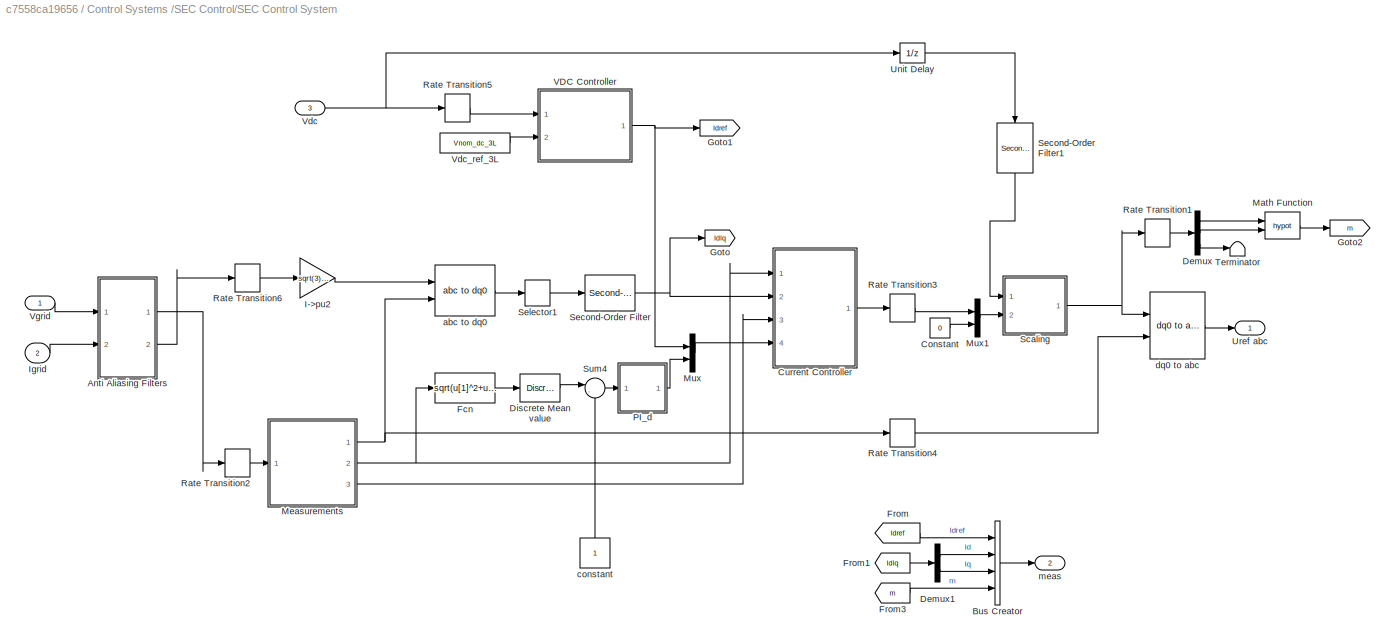
BLOCK [SubSystem] Control Systems /SEC Control/SEC Control System
  Ports = [3, 2]
  RequestExecContextInheritance = off
  Variant = off
BLOCK [SubSystem] Control Systems /SEC Control/SEC Control System/Anti Aliasing Filters
  Ports = [2, 2]
  RequestExecContextInheritance = off
  Variant = off
BLOCK [Outport] Control Systems /SEC Control/SEC Control System/Anti Aliasing Filters/ Vabc
  IconDisplay = Port number
BLOCK [Reference] Control Systems /SEC Control/SEC Control System/Anti Aliasing Filters/2nd-Order Filter  REF=powerlib_extras/Discrete 
Control Blocks/Discrete 
2nd-Order
Filter
  Ports = [1, 1]
  SourceBlock = powerlib_extras/Discrete \nControl Blocks/Discrete \n2nd-Order\nFilter
  SourceType = Discrete 2nd-Order Filter
BLOCK [Reference] Control Systems /SEC Control/SEC Control System/Anti Aliasing Filters/2nd-Order Filter1  REF=powerlib_extras/Discrete 
Control Blocks/Discrete 
2nd-Order
Filter
  Ports = [1, 1]
  SourceBlock = powerlib_extras/Discrete \nControl Blocks/Discrete \n2nd-Order\nFilter
  SourceType = Discrete 2nd-Order Filter
BLOCK [Reference] Control Systems /SEC Control/SEC Control System/Anti Aliasing Filters/2nd-Order Filter2  REF=powerlib_extras/Discrete 
Control Blocks/Discrete 
2nd-Order
Filter
  Ports = [1, 1]
  SourceBlock = powerlib_extras/Discrete \nControl Blocks/Discrete \n2nd-Order\nFilter
  SourceType = Discrete 2nd-Order Filter
BLOCK [Reference] Control Systems /SEC Control/SEC Control System/Anti Aliasing Filters/2nd-Order Filter3  REF=powerlib_extras/Discrete 
Control Blocks/Discrete 
2nd-Order
Filter
  Ports = [1, 1]
  SourceBlock = powerlib_extras/Discrete \nControl Blocks/Discrete \n2nd-Order\nFilter
  SourceType = Discrete 2nd-Order Filter
BLOCK [Reference] Control Systems /SEC Control/SEC Control System/Anti Aliasing Filters/2nd-Order Filter4  REF=powerlib_extras/Discrete 
Control Blocks/Discrete 
2nd-Order
Filter
  Ports = [1, 1]
  SourceBlock = powerlib_extras/Discrete \nControl Blocks/Discrete \n2nd-Order\nFilter
  SourceType = Discrete 2nd-Order Filter
BLOCK [Reference] Control Systems /SEC Control/SEC Control System/Anti Aliasing Filters/2nd-Order Filter5  REF=powerlib_extras/Discrete 
Control Blocks/Discrete 
2nd-Order
Filter
  Ports = [1, 1]
  SourceBlock = powerlib_extras/Discrete \nControl Blocks/Discrete \n2nd-Order\nFilter
  SourceType = Discrete 2nd-Order Filter
BLOCK [Demux] Control Systems /SEC Control/SEC Control System/Anti Aliasing Filters/Demux
  Outputs = 3
  Ports = [1, 3]
BLOCK [Demux] Control Systems /SEC Control/SEC Control System/Anti Aliasing Filters/Demux1
  Outputs = 3
  Ports = [1, 3]
BLOCK [Outport] Control Systems /SEC Control/SEC Control System/Anti Aliasing Filters/Iabc
  IconDisplay = Port number
  Port = 2
BLOCK [Inport] Control Systems /SEC Control/SEC Control System/Anti Aliasing Filters/Iabc 
  IconDisplay = Port number
  Port = 2
  PortDimensions = 3
BLOCK [Mux] Control Systems /SEC Control/SEC Control System/Anti Aliasing Filters/Mux
  DisplayOption = bar
  Inputs = 3
  Ports = [3, 1]
BLOCK [Mux] Control Systems /SEC Control/SEC Control System/Anti Aliasing Filters/Mux1
  DisplayOption = bar
  Inputs = 3
  Ports = [3, 1]
BLOCK [Inport] Control Systems /SEC Control/SEC Control System/Anti Aliasing Filters/Vabc
  IconDisplay = Port number
  PortDimensions = 3
BLOCK [BusCreator] Control Systems /SEC Control/SEC Control System/Bus Creator
  DisplayOption = bar
  InheritFromInputs = on
  Inputs = 4
  Ports = [4, 1]
BLOCK [Constant] Control Systems /SEC Control/SEC Control System/Constant
  Value = 0
BLOCK [SubSystem] Control Systems /SEC Control/SEC Control System/Current Controller
  Ports = [4, 1]
  RequestExecContextInheritance = off
  Variant = off
BLOCK [Sum] Control Systems /SEC Control/SEC Control System/Current Controller/Add1
  InputSameDT = off
  Inputs = +-
  OutDataTypeStr = Inherit: Inherit via internal rule
  Ports = [2, 1]
  SaturateOnIntegerOverflow = off
BLOCK [Sum] Control Systems /SEC Control/SEC Control System/Current Controller/Add3
  InputSameDT = off
  Inputs = +-
  OutDataTypeStr = Inherit: Inherit via internal rule
  Ports = [2, 1]
  SaturateOnIntegerOverflow = off
BLOCK [Demux] Control Systems /SEC Control/SEC Control System/Current Controller/Demux1
  DisplayOption = bar
  Outputs = 2
  Ports = [1, 2]
BLOCK [Demux] Control Systems /SEC Control/SEC Control System/Current Controller/Demux2
  DisplayOption = bar
  Outputs = 2
  Ports = [1, 2]
BLOCK [Demux] Control Systems /SEC Control/SEC Control System/Current Controller/Demux3
  DisplayOption = bar
  Outputs = 2
  Ports = [1, 2]
BLOCK [Inport] Control Systems /SEC Control/SEC Control System/Current Controller/Freq
  IconDisplay = Port number
  Port = 3
  PortDimensions = 1
BLOCK [From] Control Systems /SEC Control/SEC Control System/Current Controller/From
  GotoTag = Vd
BLOCK [From] Control Systems /SEC Control/SEC Control System/Current Controller/From2
  GotoTag = Id
BLOCK [From] Control Systems /SEC Control/SEC Control System/Current Controller/From3
  GotoTag = Vq
BLOCK [From] Control Systems /SEC Control/SEC Control System/Current Controller/From4
  GotoTag = Id_ref
BLOCK [From] Control Systems /SEC Control/SEC Control System/Current Controller/From7
  GotoTag = Iq
BLOCK [From] Control Systems /SEC Control/SEC Control System/Current Controller/From8
  GotoTag = Iq_ref
BLOCK [Goto] Control Systems /SEC Control/SEC Control System/Current Controller/Goto
  GotoTag = Id
BLOCK [Goto] Control Systems /SEC Control/SEC Control System/Current Controller/Goto1
  GotoTag = w
BLOCK [Goto] Control Systems /SEC Control/SEC Control System/Current Controller/Goto2
  GotoTag = Iq
BLOCK [Goto] Control Systems /SEC Control/SEC Control System/Current Controller/Goto3
  GotoTag = Id_ref
BLOCK [Goto] Control Systems /SEC Control/SEC Control System/Current Controller/Goto4
  GotoTag = Iq_ref
BLOCK [Goto] Control Systems /SEC Control/SEC Control System/Current Controller/Goto5
  GotoTag = Vd
BLOCK [Goto] Control Systems /SEC Control/SEC Control System/Current Controller/Goto6
  GotoTag = Vq
BLOCK [Goto] Control Systems /SEC Control/SEC Control System/Current Controller/Goto7
  GotoTag = PId
BLOCK [Goto] Control Systems /SEC Control/SEC Control System/Current Controller/Goto8
  GotoTag = PIq
BLOCK [Inport] Control Systems /SEC Control/SEC Control System/Current Controller/IdIq
  IconDisplay = Port number
  Port = 2
  PortDimensions = 2
BLOCK [Inport] Control Systems /SEC Control/SEC Control System/Current Controller/IdIq_ref
  IconDisplay = Port number
  Port = 4
  PortDimensions = 2
BLOCK [Mux] Control Systems /SEC Control/SEC Control System/Current Controller/Mux
  DisplayOption = bar
  Inputs = 2
  Ports = [2, 1]
BLOCK [SubSystem] Control Systems /SEC Control/SEC Control System/Current Controller/PI_d
  DialogController = POWERSYS.PowerSysDialog
  Ports = [1, 1]
  RequestExecContextInheritance = off
  Variant = off
BLOCK [DiscreteIntegrator] Control Systems /SEC Control/SEC Control System/Current Controller/PI_d/Discrete-Time Integrator
  ICPrevOutput = DiscIntNeverNeededParam
  ICPrevScaledInput = DiscIntNeverNeededParam
  InitialCondition = Init
  LimitOutput = on
  LowerSaturationLimit = LowerLimit
  Ports = [1, 1]
  SampleTime = Ts
  UpperSaturationLimit = UpperLimit
BLOCK [Inport] Control Systems /SEC Control/SEC Control System/Current Controller/PI_d/Error
  IconDisplay = Port number
  SampleTime = Ts
BLOCK [Gain] Control Systems /SEC Control/SEC Control System/Current Controller/PI_d/Kp4
  Gain = Kp
  SampleTime = Ts
BLOCK [Gain] Control Systems /SEC Control/SEC Control System/Current Controller/PI_d/Kp5
  Gain = Ki
  SampleTime = Ts
BLOCK [Outport] Control Systems /SEC Control/SEC Control System/Current Controller/PI_d/Out
  IconDisplay = Port number
  InitialOutput = 0
  SampleTime = Ts
BLOCK [Saturate] Control Systems /SEC Control/SEC Control System/Current Controller/PI_d/Saturation2
  InputPortMap = u0
  LowerLimit = LowerLimit
  Ports = [1, 1]
  SampleTime = Ts
  UpperLimit = UpperLimit
BLOCK [Sum] Control Systems /SEC Control/SEC Control System/Current Controller/PI_d/Sum6
  Ports = [2, 1]
  SampleTime = Ts
BLOCK [ZeroOrderHold] Control Systems /SEC Control/SEC Control System/Current Controller/PI_d/Zero-Order Hold
  SampleTime = Ts
BLOCK [SubSystem] Control Systems /SEC Control/SEC Control System/Current Controller/PI_q
  DialogController = POWERSYS.PowerSysDialog
  Ports = [1, 1]
  RequestExecContextInheritance = off
  Variant = off
BLOCK [DiscreteIntegrator] Control Systems /SEC Control/SEC Control System/Current Controller/PI_q/Discrete-Time Integrator
  ICPrevOutput = DiscIntNeverNeededParam
  ICPrevScaledInput = DiscIntNeverNeededParam
  InitialCondition = Init
  LimitOutput = on
  LowerSaturationLimit = LowerLimit
  Ports = [1, 1]
  SampleTime = Ts
  UpperSaturationLimit = UpperLimit
BLOCK [Inport] Control Systems /SEC Control/SEC Control System/Current Controller/PI_q/Error
  IconDisplay = Port number
  SampleTime = Ts
BLOCK [Gain] Control Systems /SEC Control/SEC Control System/Current Controller/PI_q/Kp4
  Gain = Kp
  SampleTime = Ts
BLOCK [Gain] Control Systems /SEC Control/SEC Control System/Current Controller/PI_q/Kp5
  Gain = Ki
  SampleTime = Ts
BLOCK [Outport] Control Systems /SEC Control/SEC Control System/Current Controller/PI_q/Out
  IconDisplay = Port number
  InitialOutput = 0
  SampleTime = Ts
BLOCK [Saturate] Control Systems /SEC Control/SEC Control System/Current Controller/PI_q/Saturation2
  InputPortMap = u0
  LowerLimit = LowerLimit
  Ports = [1, 1]
  SampleTime = Ts
  UpperLimit = UpperLimit
BLOCK [Sum] Control Systems /SEC Control/SEC Control System/Current Controller/PI_q/Sum6
  Ports = [2, 1]
  SampleTime = Ts
BLOCK [ZeroOrderHold] Control Systems /SEC Control/SEC Control System/Current Controller/PI_q/Zero-Order Hold
  SampleTime = Ts
BLOCK [SubSystem] Control Systems /SEC Control/SEC Control System/Current Controller/PQ
  Ports = [4, 2]
  RequestExecContextInheritance = off
  Variant = off
BLOCK [Sum] Control Systems /SEC Control/SEC Control System/Current Controller/PQ/Add
  InputSameDT = off
  OutDataTypeStr = Inherit: Inherit via internal rule
  Ports = [2, 1]
  SaturateOnIntegerOverflow = off
BLOCK [Sum] Control Systems /SEC Control/SEC Control System/Current Controller/PQ/Add1
  InputSameDT = off
  Inputs = +-
  OutDataTypeStr = Inherit: Inherit via internal rule
  Ports = [2, 1]
  SaturateOnIntegerOverflow = off
BLOCK [Outport] Control Systems /SEC Control/SEC Control System/Current Controller/PQ/P
  IconDisplay = Port number
BLOCK [Product] Control Systems /SEC Control/SEC Control System/Current Controller/PQ/Product
  InputSameDT = off
  OutDataTypeStr = Inherit: Inherit via internal rule
  Ports = [2, 1]
  RndMeth = Floor
  SaturateOnIntegerOverflow = off
BLOCK [Product] Control Systems /SEC Control/SEC Control System/Current Controller/PQ/Product1
  InputSameDT = off
  OutDataTypeStr = Inherit: Inherit via internal rule
  Ports = [2, 1]
  RndMeth = Floor
  SaturateOnIntegerOverflow = off
BLOCK [Product] Control Systems /SEC Control/SEC Control System/Current Controller/PQ/Product2
  InputSameDT = off
  OutDataTypeStr = Inherit: Inherit via internal rule
  Ports = [2, 1]
  RndMeth = Floor
  SaturateOnIntegerOverflow = off
BLOCK [Product] Control Systems /SEC Control/SEC Control System/Current Controller/PQ/Product3
  InputSameDT = off
  OutDataTypeStr = Inherit: Inherit via internal rule
  Ports = [2, 1]
  RndMeth = Floor
  SaturateOnIntegerOverflow = off
BLOCK [Outport] Control Systems /SEC Control/SEC Control System/Current Controller/PQ/Q
  IconDisplay = Port number
  Port = 2
BLOCK [Inport] Control Systems /SEC Control/SEC Control System/Current Controller/PQ/id
  IconDisplay = Port number
  Port = 2
BLOCK [Inport] Control Systems /SEC Control/SEC Control System/Current Controller/PQ/iq
  IconDisplay = Port number
  Port = 4
BLOCK [Inport] Control Systems /SEC Control/SEC Control System/Current Controller/PQ/ud
  IconDisplay = Port number
BLOCK [Inport] Control Systems /SEC Control/SEC Control System/Current Controller/PQ/uq
  IconDisplay = Port number
  Port = 3
BLOCK [Gain] Control Systems /SEC Control/SEC Control System/Current Controller/Rtot_pu3
  Gain = 1/Fnom
BLOCK [Saturate] Control Systems /SEC Control/SEC Control System/Current Controller/Saturation
  InputPortMap = u0
  LowerLimit = LimitL_Ireg_3L
  Ports = [1, 1]
  UpperLimit = LimitU_Ireg_3L
BLOCK [Sum] Control Systems /SEC Control/SEC Control System/Current Controller/Sum
  IconShape = round
  InputSameDT = off
  Inputs = |-+
  OutDataTypeStr = Inherit: Inherit via internal rule
  Ports = [2, 1]
  SaturateOnIntegerOverflow = off
BLOCK [Sum] Control Systems /SEC Control/SEC Control System/Current Controller/Sum1
  IconShape = round
  InputSameDT = off
  Inputs = |-+
  OutDataTypeStr = Inherit: Inherit via internal rule
  Ports = [2, 1]
  SaturateOnIntegerOverflow = off
BLOCK [Inport] Control Systems /SEC Control/SEC Control System/Current Controller/VdVq
  IconDisplay = Port number
  PortDimensions = 2
BLOCK [Outport] Control Systems /SEC Control/SEC Control System/Current Controller/VdVq_conv
  IconDisplay = Port number
BLOCK [Scope] Control Systems /SEC Control/SEC Control System/Current Controller/Vdc_3L3
  NumInputPorts = 2
  Ports = [2]
  ScopeSpecificationString = Simulink.scopes.TimeScopeBlockCfg('CurrentConfiguration', extmgr.ConfigurationSet(extmgr.Configuration('Core','General UI',true),extmgr.Configuration('Core','Source UI',true),extmgr.Configuration('Sources','WiredSimulink',true,'DataLoggingVariableName','ScopeData6'),extmgr.Configuration('Visuals','Time Domain',true,'SerializedDisplays',{struct('MinYLimReal','-2.43506','MaxYLimReal','6.75175','YLab...<+2077ch>
BLOCK [Demux] Control Systems /SEC Control/SEC Control System/Demux
  DisplayOption = bar
  Outputs = 3
  Ports = [1, 3]
BLOCK [Demux] Control Systems /SEC Control/SEC Control System/Demux1
  DisplayOption = bar
  Outputs = 2
  Ports = [1, 2]
BLOCK [Reference] Control Systems /SEC Control/SEC Control System/Discrete Mean value  REF=powerlib_extras/Discrete
Measurements/Discrete 
Mean value
  Ports = [1, 1]
  SourceBlock = powerlib_extras/Discrete\nMeasurements/Discrete \nMean value
  SourceType = Discrete Mean value
BLOCK [Fcn] Control Systems /SEC Control/SEC Control System/Fcn
  Expr = sqrt(u[1]^2+u[2]^2)
  SampleTime = Ts_Control
BLOCK [From] Control Systems /SEC Control/SEC Control System/From
  GotoTag = Idref
BLOCK [From] Control Systems /SEC Control/SEC Control System/From1
  GotoTag = IdIq
BLOCK [From] Control Systems /SEC Control/SEC Control System/From3
  GotoTag = m
BLOCK [Goto] Control Systems /SEC Control/SEC Control System/Goto
  GotoTag = IdIq
BLOCK [Goto] Control Systems /SEC Control/SEC Control System/Goto1
  GotoTag = Idref
BLOCK [Goto] Control Systems /SEC Control/SEC Control System/Goto2
  GotoTag = m
BLOCK [Gain] Control Systems /SEC Control/SEC Control System/I->pu2
  Gain = sqrt(3)*Vnom_prim_3L/sqrt(2)/Pnom_3L
BLOCK [Inport] Control Systems /SEC Control/SEC Control System/Igrid
  IconDisplay = Port number
  Port = 2
  PortDimensions = 3
BLOCK [Math] Control Systems /SEC Control/SEC Control System/Math Function
  Operator = hypot
  Ports = [2, 1]
BLOCK [SubSystem] Control Systems /SEC Control/SEC Control System/Measurements
  Ports = [1, 3]
  RequestExecContextInheritance = off
  Variant = off
BLOCK [Outport] Control Systems /SEC Control/SEC Control System/Measurements/Freq
  IconDisplay = Port number
  Port = 3
BLOCK [Reference] Control Systems /SEC Control/SEC Control System/Measurements/PLL (3ph)  REF=powerlib_meascontrol/PLL/PLL
(3ph)
  Ports = [1, 2]
  SourceBlock = powerlib_meascontrol/PLL/PLL\n(3ph)
  SourceType = PLL (3ph)
BLOCK [Selector] Control Systems /SEC Control/SEC Control System/Measurements/Selector2
  IndexOptions = Index vector (dialog)
  Indices = [1 2]
  InputPortWidth = 3
  OutputSizes = 1
  Ports = [1, 1]
BLOCK [Gain] Control Systems /SEC Control/SEC Control System/Measurements/V->pu1
  Gain = 1/(Vnom_prim_3L*sqrt(2)/sqrt(3))
BLOCK [Inport] Control Systems /SEC Control/SEC Control System/Measurements/Vabc
  IconDisplay = Port number
  PortDimensions = 3
BLOCK [Outport] Control Systems /SEC Control/SEC Control System/Measurements/VdVq
  IconDisplay = Port number
  Port = 2
BLOCK [Reference] Control Systems /SEC Control/SEC Control System/Measurements/abc to dq1  REF=powerlib_meascontrol/Transformations/abc to dq0
  Ports = [2, 1]
  SourceBlock = powerlib_meascontrol/Transformations/abc to dq0
  SourceType = abc to dq0 Transformation
BLOCK [Outport] Control Systems /SEC Control/SEC Control System/Measurements/wt
  IconDisplay = Port number
BLOCK [Mux] Control Systems /SEC Control/SEC Control System/Mux
  DisplayOption = bar
  Inputs = 2
  Ports = [2, 1]
BLOCK [Mux] Control Systems /SEC Control/SEC Control System/Mux1
  DisplayOption = bar
  Inputs = [2 1]
  Ports = [2, 1]
BLOCK [SubSystem] Control Systems /SEC Control/SEC Control System/PI_d
  DialogController = POWERSYS.PowerSysDialog
  Ports = [1, 1]
  RequestExecContextInheritance = off
  Variant = off
BLOCK [DiscreteIntegrator] Control Systems /SEC Control/SEC Control System/PI_d/Discrete-Time Integrator
  ICPrevOutput = DiscIntNeverNeededParam
  ICPrevScaledInput = DiscIntNeverNeededParam
  InitialCondition = Init
  LimitOutput = on
  LowerSaturationLimit = LowerLimit
  Ports = [1, 1]
  SampleTime = Ts
  UpperSaturationLimit = UpperLimit
BLOCK [Inport] Control Systems /SEC Control/SEC Control System/PI_d/Error
  IconDisplay = Port number
  SampleTime = Ts
BLOCK [Gain] Control Systems /SEC Control/SEC Control System/PI_d/Kp4
  Gain = Kp
  SampleTime = Ts
BLOCK [Gain] Control Systems /SEC Control/SEC Control System/PI_d/Kp5
  Gain = Ki
  SampleTime = Ts
BLOCK [Outport] Control Systems /SEC Control/SEC Control System/PI_d/Out
  IconDisplay = Port number
  InitialOutput = 0
  SampleTime = Ts
BLOCK [Saturate] Control Systems /SEC Control/SEC Control System/PI_d/Saturation2
  InputPortMap = u0
  LowerLimit = LowerLimit
  Ports = [1, 1]
  SampleTime = Ts
  UpperLimit = UpperLimit
BLOCK [Sum] Control Systems /SEC Control/SEC Control System/PI_d/Sum6
  Ports = [2, 1]
  SampleTime = Ts
BLOCK [ZeroOrderHold] Control Systems /SEC Control/SEC Control System/PI_d/Zero-Order Hold
  SampleTime = Ts
BLOCK [RateTransition] Control Systems /SEC Control/SEC Control System/Rate Transition1
  OutPortSampleTime = Ts_Control
BLOCK [RateTransition] Control Systems /SEC Control/SEC Control System/Rate Transition2
  OutPortSampleTime = Ts_Control
BLOCK [RateTransition] Control Systems /SEC Control/SEC Control System/Rate Transition3
  OutPortSampleTime = Ts_PWM
BLOCK [RateTransition] Control Systems /SEC Control/SEC Control System/Rate Transition4
  OutPortSampleTime = Ts_PWM
BLOCK [RateTransition] Control Systems /SEC Control/SEC Control System/Rate Transition5
  OutPortSampleTime = Ts_Control
BLOCK [RateTransition] Control Systems /SEC Control/SEC Control System/Rate Transition6
  OutPortSampleTime = Ts_Control
BLOCK [SubSystem] Control Systems /SEC Control/SEC Control System/Scaling
  Ports = [2, 1]
  RequestExecContextInheritance = off
  Variant = off
BLOCK [Saturate] Control Systems /SEC Control/SEC Control System/Scaling/0.8 to 1.2 x Vnom_dc
  InputPortMap = u0
  LowerLimit = 0.5*Vnom_dc_3L
  Ports = [1, 1]
  UpperLimit = 1.5*Vnom_dc_3L
BLOCK [Constant] Control Systems /SEC Control/SEC Control System/Scaling/Constant1
  Value = Vnom_sec_3L
BLOCK [Gain] Control Systems /SEC Control/SEC Control System/Scaling/Gain1
  Gain = 0.5/sqrt(2)*sqrt(3)
  OutDataTypeStr = Inherit: Inherit via internal rule
  ParamDataTypeStr = Inherit: Inherit via internal rule
  SaturateOnIntegerOverflow = off
BLOCK [Product] Control Systems /SEC Control/SEC Control System/Scaling/Product
  InputSameDT = off
  Inputs = */
  OutDataTypeStr = Inherit: Inherit via internal rule
  Ports = [2, 1]
  RndMeth = Floor
  SaturateOnIntegerOverflow = off
BLOCK [Product] Control Systems /SEC Control/SEC Control System/Scaling/Product1
  InputSameDT = off
  Inputs = **
  OutDataTypeStr = Inherit: Inherit via internal rule
  Ports = [2, 1]
  RndMeth = Floor
  SaturateOnIntegerOverflow = off
BLOCK [Inport] Control Systems /SEC Control/SEC Control System/Scaling/VdVq
  IconDisplay = Port number
  Port = 2
BLOCK [Outport] Control Systems /SEC Control/SEC Control System/Scaling/VdVq*
  IconDisplay = Port number
BLOCK [Inport] Control Systems /SEC Control/SEC Control System/Scaling/Vdc
  IconDisplay = Port number
BLOCK [Reference] Control Systems /SEC Control/SEC Control System/Second-Order Filter  REF=powerlib_meascontrol/Filters/Second-Order
Filter
  Ports = [1, 1]
  SourceBlock = powerlib_meascontrol/Filters/Second-Order\nFilter
  SourceType = Second-Order Filter
BLOCK [Reference] Control Systems /SEC Control/SEC Control System/Second-Order Filter1  REF=powerlib_meascontrol/Filters/Second-Order
Filter
  Ports = [1, 1]
  SourceBlock = powerlib_meascontrol/Filters/Second-Order\nFilter
  SourceType = Second-Order Filter
BLOCK [Selector] Control Systems /SEC Control/SEC Control System/Selector1
  IndexOptions = Index vector (dialog)
  Indices = [1 2]
  InputPortWidth = 3
  OutputSizes = 1
  Ports = [1, 1]
BLOCK [Sum] Control Systems /SEC Control/SEC Control System/Sum4
  IconShape = round
  InputSameDT = off
  Inputs = |-+
  OutDataTypeStr = Inherit: Inherit via internal rule
  Ports = [2, 1]
  SaturateOnIntegerOverflow = off
BLOCK [Terminator] Control Systems /SEC Control/SEC Control System/Terminator
BLOCK [UnitDelay] Control Systems /SEC Control/SEC Control System/Unit Delay
  InputProcessing = Elements as channels (sample based)
  SampleTime = Ts_PWM
BLOCK [Outport] Control Systems /SEC Control/SEC Control System/Uref abc
  IconDisplay = Port number
BLOCK [SubSystem] Control Systems /SEC Control/SEC Control System/VDC Controller
  Ports = [2, 1]
  RequestExecContextInheritance = off
  Variant = off
BLOCK [Gain] Control Systems /SEC Control/SEC Control System/VDC Controller/Gain
  Gain = 1/(Vnom_dc_3L)
  OutDataTypeStr = Inherit: Inherit via internal rule
  ParamDataTypeStr = Inherit: Inherit via internal rule
  SaturateOnIntegerOverflow = off
BLOCK [Outport] Control Systems /SEC Control/SEC Control System/VDC Controller/Idref
  IconDisplay = Port number
BLOCK [SubSystem] Control Systems /SEC Control/SEC Control System/VDC Controller/PI_d
  DialogController = POWERSYS.PowerSysDialog
  Ports = [1, 1]
  RequestExecContextInheritance = off
  Variant = off
BLOCK [DiscreteIntegrator] Control Systems /SEC Control/SEC Control System/VDC Controller/PI_d/Discrete-Time Integrator
  ICPrevOutput = DiscIntNeverNeededParam
  ICPrevScaledInput = DiscIntNeverNeededParam
  InitialCondition = Init
  LimitOutput = on
  LowerSaturationLimit = LowerLimit
  Ports = [1, 1]
  SampleTime = Ts
  UpperSaturationLimit = UpperLimit
BLOCK [Inport] Control Systems /SEC Control/SEC Control System/VDC Controller/PI_d/Error
  IconDisplay = Port number
  SampleTime = Ts
BLOCK [Gain] Control Systems /SEC Control/SEC Control System/VDC Controller/PI_d/Kp4
  Gain = Kp
  SampleTime = Ts
BLOCK [Gain] Control Systems /SEC Control/SEC Control System/VDC Controller/PI_d/Kp5
  Gain = Ki
  SampleTime = Ts
BLOCK [Outport] Control Systems /SEC Control/SEC Control System/VDC Controller/PI_d/Out
  IconDisplay = Port number
  InitialOutput = 0
  SampleTime = Ts
BLOCK [Saturate] Control Systems /SEC Control/SEC Control System/VDC Controller/PI_d/Saturation2
  InputPortMap = u0
  LowerLimit = LowerLimit
  Ports = [1, 1]
  SampleTime = Ts
  UpperLimit = UpperLimit
BLOCK [Sum] Control Systems /SEC Control/SEC Control System/VDC Controller/PI_d/Sum6
  Ports = [2, 1]
  SampleTime = Ts
BLOCK [ZeroOrderHold] Control Systems /SEC Control/SEC Control System/VDC Controller/PI_d/Zero-Order Hold
  SampleTime = Ts
BLOCK [Sum] Control Systems /SEC Control/SEC Control System/VDC Controller/Sum
  IconShape = round
  InputSameDT = off
  Inputs = |+-
  OutDataTypeStr = Inherit: Inherit via internal rule
  Ports = [2, 1]
  SaturateOnIntegerOverflow = off
BLOCK [Inport] Control Systems /SEC Control/SEC Control System/VDC Controller/Vdc
  IconDisplay = Port number
  PortDimensions = 1
BLOCK [Inport] Control Systems /SEC Control/SEC Control System/VDC Controller/Vdc_ref
  IconDisplay = Port number
  Port = 2
  PortDimensions = 1
BLOCK [Inport] Control Systems /SEC Control/SEC Control System/Vdc
  IconDisplay = Port number
  Port = 3
BLOCK [Constant] Control Systems /SEC Control/SEC Control System/Vdc_ref_3L
  Value = Vnom_dc_3L
BLOCK [Inport] Control Systems /SEC Control/SEC Control System/Vgrid
  IconDisplay = Port number
  PortDimensions = 3
BLOCK [Reference] Control Systems /SEC Control/SEC Control System/abc to dq0  REF=powerlib_meascontrol/Transformations/abc to dq0
  Ports = [2, 1]
  SourceBlock = powerlib_meascontrol/Transformations/abc to dq0
  SourceType = abc to dq0 Transformation
BLOCK [Constant] Control Systems /SEC Control/SEC Control System/constant
  SampleTime = Ts_Control
BLOCK [Reference] Control Systems /SEC Control/SEC Control System/dq0 to abc  REF=powerlib_meascontrol/Transformations/dq0 to abc
  Ports = [2, 1]
  SourceBlock = powerlib_meascontrol/Transformations/dq0 to abc
  SourceType = dq0 to abc Transformation
BLOCK [Outport] Control Systems /SEC Control/SEC Control System/meas
  IconDisplay = Port number
  Port = 2
BLOCK [UnitDelay] Control Systems /SEC Control/Unit Delay
  InputProcessing = Elements as channels (sample based)
  SampleTime = Ts_Power
BLOCK [UnitDelay] Control Systems /SEC Control/Unit Delay1
  InputProcessing = Elements as channels (sample based)
  SampleTime = Ts_Power
BLOCK [UnitDelay] Control Systems /SEC Control/Unit Delay2
  InputProcessing = Elements as channels (sample based)
  SampleTime = Ts_Power
BLOCK [SubSystem] Control of Inverter
  Ports = [0, 1, 0, 0, 0, 3]
  RequestExecContextInheritance = off
  Variant = off
BLOCK [PMIOPort] Control of Inverter/A
  Port = 3
  Side = Left
BLOCK [PMIOPort] Control of Inverter/B
  Port = 2
  Side = Left
BLOCK [PMIOPort] Control of Inverter/C
  Port = 1
  Side = Left
BLOCK [SubSystem] Control of Inverter/Discrete PWM Generator1
  AncestorBlock = powerlib_extras/Discrete \nControl Blocks/Discrete\nPWM Generator
  DialogController = POWERSYS.PowerSysDialog
  Ports = [1, 1]
  RequestExecContextInheritance = off
  Variant = off
BLOCK [Logic] Control of Inverter/Discrete PWM Generator1/BL4
  Inputs = 1
  Operator = NOT
  Ports = [1, 1]
BLOCK [Logic] Control of Inverter/Discrete PWM Generator1/BL5
  Inputs = 1
  Operator = NOT
  Ports = [1, 1]
BLOCK [Constant] Control of Inverter/Discrete PWM Generator1/Constant
  Value = Internal_Phase
BLOCK [Constant] Control of Inverter/Discrete PWM Generator1/Constant1
  Value = Internal
BLOCK [DataTypeConversion] Control of Inverter/Discrete PWM Generator1/Data Type Conversion
  OutDataTypeStr = double
BLOCK [DataTypeConversion] Control of Inverter/Discrete PWM Generator1/Data Type Conversion1
  OutDataTypeStr = boolean
BLOCK [DataTypeConversion] Control of Inverter/Discrete PWM Generator1/Data Type Conversion2
  OutDataTypeStr = boolean
BLOCK [Gain] Control of Inverter/Discrete PWM Generator1/Gain
  Gain = 2*pi*Freq
BLOCK [Gain] Control of Inverter/Discrete PWM Generator1/Gain2
  Gain = pi/180
BLOCK [Gain] Control of Inverter/Discrete PWM Generator1/Gain3
  Gain = -1
BLOCK [Mux] Control of Inverter/Discrete PWM Generator1/Mux
  DisplayOption = bar
  Inputs = 2
  Ports = [2, 1]
BLOCK [Mux] Control of Inverter/Discrete PWM Generator1/Mux1
  DisplayOption = bar
  Inputs = 2
  Ports = [2, 1]
BLOCK [Mux] Control of Inverter/Discrete PWM Generator1/Mux2
  DisplayOption = bar
  Inputs = 2
  Ports = [2, 1]
BLOCK [Product] Control of Inverter/Discrete PWM Generator1/Product
  Ports = [2, 1]
  RndMeth = Floor
BLOCK [Outport] Control of Inverter/Discrete PWM Generator1/Pulses
  IconDisplay = Port number
BLOCK [RelationalOperator] Control of Inverter/Discrete PWM Generator1/Relational Operator
  Ports = [2, 1]
BLOCK [RelationalOperator] Control of Inverter/Discrete PWM Generator1/Relational Operator1
  Ports = [2, 1]
BLOCK [Selector] Control of Inverter/Discrete PWM Generator1/Select1A
  IndexOptions = Index vector (dialog)
  Indices = Select1_Elements
  InputPortWidth = Select1_PortWidth
  OutputSizes = 1
  Ports = [1, 1]
BLOCK [Selector] Control of Inverter/Discrete PWM Generator1/Select1B
  IndexOptions = Index vector (dialog)
  Indices = Select1_Elements
  InputPortWidth = Select1_PortWidth
  OutputSizes = 1
  Ports = [1, 1]
BLOCK [Selector] Control of Inverter/Discrete PWM Generator1/Select3
  IndexOptions = Index vector (dialog)
  Indices = Select3_Elements
  InputPortWidth = Select3_PortWidth
  OutputSizes = 1
  Ports = [1, 1]
BLOCK [Sum] Control of Inverter/Discrete PWM Generator1/Sum
  Inputs = +++
  Ports = [3, 1]
BLOCK [Reference] Control of Inverter/Discrete PWM Generator1/Triangle  REF=simulink/Sources/Repeating
Sequence
  Ports = [0, 1]
  SourceBlock = simulink/Sources/Repeating\nSequence
  SourceType = Repeating table
BLOCK [Trigonometry] Control of Inverter/Discrete PWM Generator1/Trigonometric Function
  Ports = [1, 1]
BLOCK [Inport] Control of Inverter/Discrete PWM Generator1/Uref
  IconDisplay = Port number
BLOCK [Constant] Control of Inverter/Discrete PWM Generator1/m3
  Value = Phase
BLOCK [Constant] Control of Inverter/Discrete PWM Generator1/m4
  Value = mIndex
BLOCK [DigitalClock] Control of Inverter/Discrete PWM Generator1/t
  SampleTime = Ts
BLOCK [SubSystem] Control of Inverter/MI Controller
  Ports = [1, 2]
  RequestExecContextInheritance = off
  Variant = off
BLOCK [Clock] Control of Inverter/MI Controller/Clock2
  DisplayTime = on
BLOCK [Constant] Control of Inverter/MI Controller/Constant1
  Value = 1/231
BLOCK [Constant] Control of Inverter/MI Controller/Constant4
BLOCK [Demux] Control of Inverter/MI Controller/Demux
  DisplayOption = bar
  Outputs = 3
  Ports = [1, 3]
BLOCK [Demux] Control of Inverter/MI Controller/Demux1
  DisplayOption = bar
  Outputs = 3
  Ports = [1, 3]
BLOCK [Reference] Control of Inverter/MI Controller/Discrete PI Controller  REF=powerlib_extras/Discrete 
Control Blocks/Discrete
PI Controller
  Ports = [1, 1]
  SourceBlock = powerlib_extras/Discrete \nControl Blocks/Discrete\nPI Controller
  SourceType = Discrete PI Controller
BLOCK [Reference] Control of Inverter/MI Controller/Discrete Virtual PLL 50 Hz  REF=powerlib_extras/Discrete 
Control Blocks/Discrete
Virtual PLL
  Ports = [0, 3]
  SourceBlock = powerlib_extras/Discrete \nControl Blocks/Discrete\nVirtual PLL
  SourceType = Discrete Virtual PLL
BLOCK [DiscreteIntegrator] Control of Inverter/MI Controller/Discrete-Time Integrator2
  ICPrevOutput = DiscIntNeverNeededParam
  ICPrevScaledInput = DiscIntNeverNeededParam
  LowerSaturationLimit = LowerLimit
  Ports = [1, 1]
  SampleTime = 20e-6
  UpperSaturationLimit = UpperLimit
BLOCK [Display] Control of Inverter/MI Controller/Display2
  Decimation = 1
  Ports = [1]
BLOCK [Mux] Control of Inverter/MI Controller/Mux1
  DisplayOption = bar
  Inputs = 3
  Ports = [3, 1]
BLOCK [Mux] Control of Inverter/MI Controller/Mux2
  DisplayOption = bar
  Inputs = 3
  Ports = [3, 1]
BLOCK [Mux] Control of Inverter/MI Controller/Mux3
  DisplayOption = bar
  Inputs = 3
  Ports = [3, 1]
BLOCK [Mux] Control of Inverter/MI Controller/Mux4
  DisplayOption = bar
  Inputs = 3
  Ports = [3, 1]
BLOCK [Mux] Control of Inverter/MI Controller/Mux7
  DisplayOption = bar
  Inputs = 3
  Ports = [3, 1]
BLOCK [Scope] Control of Inverter/MI Controller/Powers1
  Ports = [1]
  ScopeSpecificationString = C++SS(StrPVP('Location','[421, 204, 1075, 483]'),StrPVP('Open','off'),MxPVP('AxesTitles',24,'struct(''axes1'',''%<SignalLabel>'')'),StrPVP('YMin','-1'),StrPVP('YMax','1'),StrPVP('SaveName','ScopeData3'),StrPVP('DataFormat','StructureWithTime'),StrPVP('LimitDataPoints','off'),StrPVP('BlockParamSampleInput','on'),StrPVP('BlockParamSampleTime','100e-6'),StrPVP('Decimation','1'))
BLOCK [Scope] Control of Inverter/MI Controller/Powers11
  Ports = [1]
  ScopeSpecificationString = C++SS(StrPVP('Location','[421, 204, 1075, 483]'),StrPVP('Open','off'),MxPVP('AxesTitles',24,'struct(''axes1'',''%<SignalLabel>'')'),StrPVP('YMin','452'),StrPVP('YMax','465'),StrPVP('SaveName','ScopeData6'),StrPVP('DataFormat','StructureWithTime'),StrPVP('LimitDataPoints','off'),StrPVP('BlockParamSampleInput','on'),StrPVP('BlockParamSampleTime','100e-6'),StrPVP('Decimation','1'))
BLOCK [Scope] Control of Inverter/MI Controller/Powers2
  Ports = [1]
  ScopeSpecificationString = C++SS(StrPVP('Location','[421, 204, 1075, 483]'),StrPVP('Open','off'),MxPVP('AxesTitles',24,'struct(''axes1'',''%<SignalLabel>'')'),StrPVP('YMin','452'),StrPVP('YMax','465'),StrPVP('SaveName','ScopeData6'),StrPVP('DataFormat','StructureWithTime'),StrPVP('LimitDataPoints','off'),StrPVP('BlockParamSampleInput','on'),StrPVP('BlockParamSampleTime','100e-6'),StrPVP('Decimation','1'),StrPVP('SaveName','...<+13ch>
BLOCK [Scope] Control of Inverter/MI Controller/Powers3
  Ports = [1]
  ScopeSpecificationString = C++SS(StrPVP('Location','[421, 204, 1075, 483]'),StrPVP('Open','off'),MxPVP('AxesTitles',24,'struct(''axes1'',''%<SignalLabel>'')'),StrPVP('YMin','452'),StrPVP('YMax','465'),StrPVP('SaveName','ScopeData6'),StrPVP('DataFormat','StructureWithTime'),StrPVP('LimitDataPoints','off'),StrPVP('BlockParamSampleInput','on'),StrPVP('BlockParamSampleTime','100e-6'),StrPVP('Decimation','1'),StrPVP('SaveName','...<+45ch>
BLOCK [Product] Control of Inverter/MI Controller/Product
  InputSameDT = off
  OutDataTypeStr = Inherit: Inherit via internal rule
  Ports = [2, 1]
  SaturateOnIntegerOverflow = off
BLOCK [Product] Control of Inverter/MI Controller/Product1
  InputSameDT = off
  OutDataTypeStr = Inherit: Inherit via internal rule
  Ports = [2, 1]
  SaturateOnIntegerOverflow = off
BLOCK [Product] Control of Inverter/MI Controller/Product2
  InputSameDT = off
  OutDataTypeStr = Inherit: Inherit via internal rule
  Ports = [2, 1]
  SaturateOnIntegerOverflow = off
BLOCK [Product] Control of Inverter/MI Controller/Product3
  Inputs = 3
  Ports = [3, 1]
BLOCK [Product] Control of Inverter/MI Controller/Product4
  InputSameDT = off
  OutDataTypeStr = Inherit: Inherit via internal rule
  Ports = [2, 1]
  SaturateOnIntegerOverflow = off
BLOCK [Product] Control of Inverter/MI Controller/Product5
  InputSameDT = off
  OutDataTypeStr = Inherit: Inherit via internal rule
  Ports = [2, 1]
  SaturateOnIntegerOverflow = off
BLOCK [Product] Control of Inverter/MI Controller/Product6
  InputSameDT = off
  OutDataTypeStr = Inherit: Inherit via internal rule
  Ports = [2, 1]
  SaturateOnIntegerOverflow = off
BLOCK [Scope] Control of Inverter/MI Controller/Scope1
  NumInputPorts = 3
  Ports = [3]
  ScopeSpecificationString = C++SS(StrPVP('Location','[912, 315, 1359, 810]'),StrPVP('Open','off'),MxPVP('AxesTitles',24,'struct(''axes1'',''%<SignalLabel>'',''axes2'',''%<SignalLabel>'',''axes3'',''%<SignalLabel>'')'),StrPVP('TimeRange','0.1'),StrPVP('YMin','-0.005~0.9485~0.9945'),StrPVP('YMax','0.0175~0.955~1'),StrPVP('SaveName','psbbridges_str6'),StrPVP('DataFormat','StructureWithTime'),StrPVP('LimitDataPoints','off'),StrP...<+94ch>
BLOCK [Scope] Control of Inverter/MI Controller/Scope7
  NumInputPorts = 2
  Ports = [2]
  ScopeSpecificationString = C++SS(StrPVP('Location','[5, 43, 1285, 894]'),StrPVP('Open','off'),MxPVP('AxesTitles',24,'struct(''axes1'',''%<SignalLabel>'',''axes2'',''%<SignalLabel>'')'),StrPVP('TimeRange','0.1'),StrPVP('YMin','-1.1~-5'),StrPVP('YMax','1.1~5'),StrPVP('SaveName','psbbridges_str2'),StrPVP('DataFormat','StructureWithTime'),StrPVP('LimitDataPoints','off'),StrPVP('BlockParamSampleTime','0'),StrPVP('Decimation','1'...<+40ch>
BLOCK [SubSystem] Control of Inverter/MI Controller/Subsystem
  Ports = [1, 3]
  RequestExecContextInheritance = off
  Variant = off
BLOCK [Demux] Control of Inverter/MI Controller/Subsystem/Demux
  Outputs = 2
  Ports = [1, 2]
BLOCK [Fcn] Control of Inverter/MI Controller/Subsystem/Fcn2
  Expr = 1*u[1]
BLOCK [Fcn] Control of Inverter/MI Controller/Subsystem/Fcn4
  Expr = 1*u[3]
BLOCK [Fcn] Control of Inverter/MI Controller/Subsystem/Fcn5
  Expr = 1*u[5]
BLOCK [Constant] Control of Inverter/MI Controller/Subsystem/K1
  Value = 0.5
BLOCK [Constant] Control of Inverter/MI Controller/Subsystem/K2
  Value = sqrt(3)/2
BLOCK [Mux] Control of Inverter/MI Controller/Subsystem/Mux2
  Inputs = 6
  Ports = [6, 1]
BLOCK [Product] Control of Inverter/MI Controller/Subsystem/Product
  Ports = [2, 1]
  RndMeth = Floor
BLOCK [Product] Control of Inverter/MI Controller/Subsystem/Product1
  Ports = [2, 1]
  RndMeth = Floor
BLOCK [Product] Control of Inverter/MI Controller/Subsystem/Product2
  Ports = [2, 1]
  RndMeth = Floor
BLOCK [Product] Control of Inverter/MI Controller/Subsystem/Product3
  Ports = [2, 1]
  RndMeth = Floor
BLOCK [Sum] Control of Inverter/MI Controller/Subsystem/Sum
  Inputs = --
  Ports = [2, 1]
BLOCK [Sum] Control of Inverter/MI Controller/Subsystem/Sum1
  Inputs = -+
  Ports = [2, 1]
BLOCK [Sum] Control of Inverter/MI Controller/Subsystem/Sum2
  Inputs = --
  Ports = [2, 1]
BLOCK [Sum] Control of Inverter/MI Controller/Subsystem/Sum3
  Inputs = --
  Ports = [2, 1]
BLOCK [Outport] Control of Inverter/MI Controller/Subsystem/Va
  IconDisplay = Port number
BLOCK [Outport] Control of Inverter/MI Controller/Subsystem/Vb
  IconDisplay = Port number
  Port = 2
BLOCK [Outport] Control of Inverter/MI Controller/Subsystem/Vc
  IconDisplay = Port number
  Port = 3
BLOCK [Inport] Control of Inverter/MI Controller/Subsystem/sin_cos
  IconDisplay = Port number
  PortDimensions = 2
BLOCK [Sum] Control of Inverter/MI Controller/Sum1
  Inputs = -+
  Ports = [2, 1]
BLOCK [Sum] Control of Inverter/MI Controller/Sum2
  Inputs = -+
  Ports = [2, 1]
BLOCK [Sum] Control of Inverter/MI Controller/Sum3
  Inputs = -+
  Ports = [2, 1]
BLOCK [Sum] Control of Inverter/MI Controller/Sum4
  Inputs = +++
  Ports = [3, 1]
BLOCK [Reference] Control of Inverter/MI Controller/Vab1  REF=powerlib_extras/Discrete
Measurements/Discrete 
RMS value
  Ports = [1, 1]
  SourceBlock = powerlib_extras/Discrete\nMeasurements/Discrete \nRMS value
  SourceType = Discrete RMS value
BLOCK [Reference] Control of Inverter/MI Controller/Vab5  REF=powerlib_extras/Discrete
Measurements/Discrete 
RMS value
  Ports = [1, 1]
  SourceBlock = powerlib_extras/Discrete\nMeasurements/Discrete \nRMS value
  SourceType = Discrete RMS value
BLOCK [Reference] Control of Inverter/MI Controller/Vab6  REF=powerlib_extras/Discrete
Measurements/Discrete 
RMS value
  Ports = [1, 1]
  SourceBlock = powerlib_extras/Discrete\nMeasurements/Discrete \nRMS value
  SourceType = Discrete RMS value
BLOCK [Inport] Control of Inverter/MI Controller/Vabc
  IconDisplay = Port number
BLOCK [Outport] Control of Inverter/MI Controller/Vabc_inv
  IconDisplay = Port number
BLOCK [Outport] Control of Inverter/MI Controller/m
  IconDisplay = Port number
  Port = 2
BLOCK [Outport] Control of Inverter/Pulses
  IconDisplay = Port number
BLOCK [SubSystem] Control of Inverter/Subsystem1
  Ports = [0, 3, 0, 0, 0, 3]
  RequestExecContextInheritance = off
  Variant = off
BLOCK [PMIOPort] Control of Inverter/Subsystem1/A
  Port = 1
  Side = Left
BLOCK [PMIOPort] Control of Inverter/Subsystem1/B
  Port = 2
  Side = Left
BLOCK [PMIOPort] Control of Inverter/Subsystem1/C
  Port = 3
  Side = Left
BLOCK [Reference] Control of Inverter/Subsystem1/Ground4  REF=powerlib/Elements/Ground
  Ports = [0, 0, 0, 0, 0, 1]
  SourceBlock = powerlib/Elements/Ground
  SourceType = Ground
BLOCK [Mux] Control of Inverter/Subsystem1/Mux1
  DisplayOption = bar
  Inputs = 3
  Ports = [3, 1]
BLOCK [Mux] Control of Inverter/Subsystem1/Mux2
  DisplayOption = bar
  Inputs = 3
  Ports = [3, 1]
BLOCK [Mux] Control of Inverter/Subsystem1/Mux7
  DisplayOption = bar
  Inputs = 3
  Ports = [3, 1]
BLOCK [Outport] Control of Inverter/Subsystem1/VL-L
  IconDisplay = Port number
  Port = 2
BLOCK [Reference] Control of Inverter/Subsystem1/Vab  REF=powerlib/Measurements/Voltage Measurement
  AttributesFormatString = \n
  Ports = [0, 1, 0, 0, 0, 2]
  SourceBlock = powerlib/Measurements/Voltage Measurement
  SourceType = Voltage Measurement
  Tag = PoWeRsYsTeMmEaSuReMeNt
BLOCK [Reference] Control of Inverter/Subsystem1/Vab1  REF=powerlib_extras/Discrete
Measurements/Discrete 
RMS value
  Ports = [1, 1]
  SourceBlock = powerlib_extras/Discrete\nMeasurements/Discrete \nRMS value
  SourceType = Discrete RMS value
BLOCK [Reference] Control of Inverter/Subsystem1/Vab2  REF=powerlib_extras/Discrete
Measurements/Discrete 
RMS value
  Ports = [1, 1]
  SourceBlock = powerlib_extras/Discrete\nMeasurements/Discrete \nRMS value
  SourceType = Discrete RMS value
BLOCK [Reference] Control of Inverter/Subsystem1/Vab5  REF=powerlib_extras/Discrete
Measurements/Discrete 
RMS value
  Ports = [1, 1]
  SourceBlock = powerlib_extras/Discrete\nMeasurements/Discrete \nRMS value
  SourceType = Discrete RMS value
BLOCK [Reference] Control of Inverter/Subsystem1/Vbc  REF=powerlib/Measurements/Voltage Measurement
  AttributesFormatString = \n
  Ports = [0, 1, 0, 0, 0, 2]
  SourceBlock = powerlib/Measurements/Voltage Measurement
  SourceType = Voltage Measurement
  Tag = PoWeRsYsTeMmEaSuReMeNt
BLOCK [Reference] Control of Inverter/Subsystem1/Vca  REF=powerlib/Measurements/Voltage Measurement
  AttributesFormatString = \n
  Ports = [0, 1, 0, 0, 0, 2]
  SourceBlock = powerlib/Measurements/Voltage Measurement
  SourceType = Voltage Measurement
  Tag = PoWeRsYsTeMmEaSuReMeNt
BLOCK [Outport] Control of Inverter/Subsystem1/Vph
  IconDisplay = Port number
BLOCK [Outport] Control of Inverter/Subsystem1/Vph_rms
  IconDisplay = Port number
  Port = 3
BLOCK [Reference] Control of Inverter/Subsystem1/a  REF=powerlib/Measurements/Voltage Measurement
  AttributesFormatString = \n
  Ports = [0, 1, 0, 0, 0, 2]
  SourceBlock = powerlib/Measurements/Voltage Measurement
  SourceType = Voltage Measurement
  Tag = PoWeRsYsTeMmEaSuReMeNt
BLOCK [Reference] Control of Inverter/Subsystem1/b  REF=powerlib/Measurements/Voltage Measurement
  AttributesFormatString = \n
  Ports = [0, 1, 0, 0, 0, 2]
  SourceBlock = powerlib/Measurements/Voltage Measurement
  SourceType = Voltage Measurement
  Tag = PoWeRsYsTeMmEaSuReMeNt
BLOCK [Reference] Control of Inverter/Subsystem1/c  REF=powerlib/Measurements/Voltage Measurement
  AttributesFormatString = \n
  Ports = [0, 1, 0, 0, 0, 2]
  SourceBlock = powerlib/Measurements/Voltage Measurement
  SourceType = Voltage Measurement
  Tag = PoWeRsYsTeMmEaSuReMeNt
BLOCK [UnitDelay] Control of Inverter/Unit Delay4
  SampleTime = 20e-6
BLOCK [Scope] Control of Inverter/VL-L
  Ports = [1]
  ScopeSpecificationString = C++SS(StrPVP('Location','[102, 349, 1117, 846]'),StrPVP('Open','off'),MxPVP('AxesTitles',24,'struct(''axes1'',''%<SignalLabel>'')'),StrPVP('TimeRange','0.4'),StrPVP('YMin','-700'),StrPVP('YMax','700'),StrPVP('SaveToWorkspace','on'),StrPVP('SaveName','Vabc_line'),StrPVP('DataFormat','StructureWithTime'),StrPVP('LimitDataPoints','off'),StrPVP('BlockParamSampleInput','on'),StrPVP('BlockParamSampleTim...<+38ch>
BLOCK [Scope] Control of Inverter/Vph_rms
  Ports = [1]
  ScopeSpecificationString = C++SS(StrPVP('Location','[101, 193, 1116, 690]'),StrPVP('Open','off'),MxPVP('AxesTitles',24,'struct(''axes1'',''%<SignalLabel>'')'),StrPVP('TimeRange','0.4'),StrPVP('YMin','221'),StrPVP('YMax','236'),StrPVP('SaveToWorkspace','on'),StrPVP('SaveName','Vabc_rms'),StrPVP('DataFormat','StructureWithTime'),StrPVP('LimitDataPoints','off'),StrPVP('BlockParamSampleInput','on'),StrPVP('BlockParamSampleTime'...<+36ch>
BLOCK [Scope] Control of Inverter/m
  Ports = [1]
  ScopeSpecificationString = C++SS(StrPVP('Location','[37, 153, 1181, 734]'),StrPVP('Open','off'),MxPVP('AxesTitles',24,'struct(''axes1'',''%<SignalLabel>'')'),StrPVP('TimeRange','0.04'),StrPVP('YMin','0.8975'),StrPVP('YMax','0.93'),StrPVP('SaveToWorkspace','on'),StrPVP('SaveName','modulation_index'),StrPVP('DataFormat','StructureWithTime'),StrPVP('LimitDataPoints','off'),StrPVP('BlockParamSampleInput','on'),StrPVP('BlockPara...<+48ch>
BLOCK [Reference] Diode  REF=powerlib/Power
Electronics/Diode
  Ports = [0, 0, 0, 0, 0, 1, 1]
  SourceBlock = powerlib/Power\nElectronics/Diode
  SourceType = Diode
BLOCK [Reference] Diode1  REF=powerlib/Power
Electronics/Diode
  Ports = [0, 0, 0, 0, 0, 1, 1]
  SourceBlock = powerlib/Power\nElectronics/Diode
  SourceType = Diode
BLOCK [Reference] Distributed Parameters Line  REF=powerlib/Elements/Distributed Parameters Line
  Ports = [0, 0, 0, 0, 0, 3, 3]
  SourceBlock = powerlib/Elements/Distributed Parameters Line
  SourceType = Distributed Parameters Line
BLOCK [Goto] Goto1
  GotoTag = g1
BLOCK [Reference] Ground  REF=powerlib/Elements/Ground
  Ports = [0, 0, 0, 0, 0, 1]
  SourceBlock = powerlib/Elements/Ground
  SourceType = Ground
BLOCK [Reference] Ground1  REF=powerlib/Elements/Ground
  Ports = [0, 0, 0, 0, 0, 1]
  SourceBlock = powerlib/Elements/Ground
  SourceType = Ground
BLOCK [Constant] Load
  Value = 300e3
BLOCK [Reference] Power (Positive-Sequence)  REF=powerlib_meascontrol/Measurements/Power
(Positive-Sequence)
  Ports = [2, 2]
  SourceBlock = powerlib_meascontrol/Measurements/Power\n(Positive-Sequence)
  SourceType = Power (Positive-Sequence)
BLOCK [Reference] Power (Positive-Sequence)1  REF=powerlib_meascontrol/Measurements/Power
(Positive-Sequence)
  Ports = [2, 2]
  SourceBlock = powerlib_meascontrol/Measurements/Power\n(Positive-Sequence)
  SourceType = Power (Positive-Sequence)
BLOCK [Scope] RES // Load // Battery Power 
  NumInputPorts = 3
  Ports = [3]
  ScopeSpecificationString = C++SS(StrPVP('SaveName','ScopeData1'),StrPVP('LimitDataPoints','on'),StrPVP('DataFormat','Array'),StrPVP('Decimation','1'),StrPVP('BlockParamSampleInput','off'))
BLOCK [Scope] Scope1
  Ports = [1]
  ScopeSpecificationString = C++SS(StrPVP('SaveName','ScopeData2'),StrPVP('LimitDataPoints','on'),StrPVP('DataFormat','Array'),StrPVP('Decimation','1'),StrPVP('BlockParamSampleInput','off'))
BLOCK [Scope] Scope10
  Ports = [1]
  ScopeSpecificationString = Simulink.scopes.TimeScopeBlockCfg('CurrentConfiguration', extmgr.ConfigurationSet(extmgr.Configuration('Core','General UI',true),extmgr.Configuration('Core','Source UI',true),extmgr.Configuration('Sources','WiredSimulink',true,'DataLoggingVariableName','ScopeData3'),extmgr.Configuration('Visuals','Time Domain',true,'SerializedDisplays',{struct('MinYLimReal','-584.95997','MaxYLimReal','587.89666','...<+1642ch>
BLOCK [Scope] Scope11
  NumInputPorts = 2
  Ports = [2]
  ScopeSpecificationString = C++SS(StrPVP('SaveName','ScopeData3'),StrPVP('LimitDataPoints','on'),StrPVP('DataFormat','Array'),StrPVP('Decimation','1'),StrPVP('BlockParamSampleInput','off'),StrPVP('SaveName','ScopeData3'),StrPVP('SaveName','ScopeData4'))
BLOCK [Scope] Scope12
  NumInputPorts = 2
  Ports = [2]
  ScopeSpecificationString = C++SS(StrPVP('SaveName','ScopeData5'),StrPVP('LimitDataPoints','on'),StrPVP('DataFormat','Array'),StrPVP('Decimation','1'),StrPVP('BlockParamSampleInput','off'))
BLOCK [Scope] Scope13
  Ports = [1]
  ScopeSpecificationString = Simulink.scopes.TimeScopeBlockCfg('CurrentConfiguration', extmgr.ConfigurationSet(extmgr.Configuration('Core','General UI',true),extmgr.Configuration('Core','Source UI',true),extmgr.Configuration('Sources','WiredSimulink',true,'DataLoggingVariableName','ScopeData6'),extmgr.Configuration('Visuals','Time Domain',true,'SerializedDisplays',{struct('MinYLimReal','-1.00000','MaxYLimReal','1.00000','YLab...<+1448ch>
BLOCK [Scope] Scope14
  Ports = [1]
  ScopeSpecificationString = Simulink.scopes.TimeScopeBlockCfg('CurrentConfiguration', extmgr.ConfigurationSet(extmgr.Configuration('Core','General UI',true),extmgr.Configuration('Core','Source UI',true),extmgr.Configuration('Sources','WiredSimulink',true,'DataLoggingVariableName','ScopeData7'),extmgr.Configuration('Visuals','Time Domain',true,'SerializedDisplays',{struct('MinYLimReal','-3534.79267','MaxYLimReal','4017.38774'...<+1625ch>
BLOCK [Scope] Scope15
  NumInputPorts = 2
  Ports = [2]
  ScopeSpecificationString = Simulink.scopes.TimeScopeBlockCfg('CurrentConfiguration', extmgr.ConfigurationSet(extmgr.Configuration('Core','General UI',true),extmgr.Configuration('Core','Source UI',true),extmgr.Configuration('Sources','WiredSimulink',true,'DataLoggingVariableName','MGVV','DataLogging',true),extmgr.Configuration('Visuals','Time Domain',true,'SerializedDisplays',{struct('MinYLimReal','-592.2857','MaxYLimReal','...<+2356ch>
BLOCK [Scope] Scope2
  Ports = [1]
  ScopeSpecificationString = Simulink.scopes.TimeScopeBlockCfg('CurrentConfiguration', extmgr.ConfigurationSet(extmgr.Configuration('Core','General UI',true),extmgr.Configuration('Core','Source UI',true),extmgr.Configuration('Sources','WiredSimulink',true,'DataLoggingVariableName','ScopeData8'),extmgr.Configuration('Visuals','Time Domain',true,'SerializedDisplays',{struct('MinYLimReal','-60.16001','MaxYLimReal','541.21691','Y...<+1472ch>
BLOCK [Scope] Scope3
  Ports = [1]
  ScopeSpecificationString = C++SS(StrPVP('SaveName','ScopeData9'),StrPVP('LimitDataPoints','on'),StrPVP('DataFormat','Array'),StrPVP('Decimation','1'),StrPVP('BlockParamSampleInput','off'))
BLOCK [Scope] Scope4
  NumInputPorts = 2
  Ports = [2]
  ScopeSpecificationString = Simulink.scopes.TimeScopeBlockCfg('CurrentConfiguration', extmgr.ConfigurationSet(extmgr.Configuration('Core','General UI',true),extmgr.Configuration('Core','Source UI',true),extmgr.Configuration('Sources','WiredSimulink',true,'DataLoggingVariableName','ScopeData10'),extmgr.Configuration('Visuals','Time Domain',true,'SerializedDisplays',{struct('MinYLimReal','-589.36236','MaxYLimReal','515.89828',...<+2298ch>
BLOCK [Scope] Scope5
  Ports = [1]
  ScopeSpecificationString = Simulink.scopes.TimeScopeBlockCfg('CurrentConfiguration', extmgr.ConfigurationSet(extmgr.Configuration('Core','General UI',true),extmgr.Configuration('Core','Source UI',true),extmgr.Configuration('Sources','WiredSimulink',true,'DataLoggingVariableName','ScopeData11','DataLoggingLimitDataPoints',true,'DataLoggingSaveFormat','Array','DataLoggingDecimation','1','DataLoggingDecimateData',true),extmgr....<+1589ch>
BLOCK [Scope] Scope6
  NumInputPorts = 2
  Ports = [2]
  ScopeSpecificationString = C++SS(StrPVP('SaveName','ScopeData12'),StrPVP('LimitDataPoints','on'),StrPVP('DataFormat','Array'),StrPVP('Decimation','1'),StrPVP('BlockParamSampleInput','off'))
BLOCK [Scope] Scope7
  Ports = [1]
  ScopeSpecificationString = Simulink.scopes.TimeScopeBlockCfg('CurrentConfiguration', extmgr.ConfigurationSet(extmgr.Configuration('Core','General UI',true),extmgr.Configuration('Core','Source UI',true),extmgr.Configuration('Sources','WiredSimulink',true,'DataLoggingVariableName','ScopeData13'),extmgr.Configuration('Visuals','Time Domain',true,'SerializedDisplays',{struct('MinYLimReal','-2139.42667','MaxYLimReal','2899.0462'...<+1514ch>
BLOCK [Scope] Scope8
  NumInputPorts = 2
  Ports = [2]
  ScopeSpecificationString = Simulink.scopes.TimeScopeBlockCfg('CurrentConfiguration', extmgr.ConfigurationSet(extmgr.Configuration('Core','General UI',true),extmgr.Configuration('Core','Source UI',true),extmgr.Configuration('Sources','WiredSimulink',true,'DataLoggingVariableName','ScopeData14'),extmgr.Configuration('Visuals','Time Domain',true,'SerializedDisplays',{struct('MinYLimReal','-590.16499','MaxYLimReal','523.12104',...<+2300ch>
BLOCK [Scope] Scope9
  NumInputPorts = 2
  Ports = [2]
  ScopeSpecificationString = C++SS(StrPVP('SaveName','ScopeData4'),StrPVP('LimitDataPoints','on'),StrPVP('DataFormat','Array'),StrPVP('Decimation','1'),StrPVP('BlockParamSampleInput','off'),StrPVP('SaveName','ScopeData4'),StrPVP('SaveName','ScopeData15'))
BLOCK [SubSystem] Subsystem1
  Ports = [1, 1, 0, 0, 0, 2, 2]
  RequestExecContextInheritance = off
  Variant = off
BLOCK [PMIOPort] Subsystem1/+ Ve
  Port = 3
  Side = Right
BLOCK [PMIOPort] Subsystem1/- Ve
  Port = 4
  Side = Right
BLOCK [Reference] Subsystem1/Current Measurement  REF=powerlib/Measurements/Current Measurement
  Ports = [0, 1, 0, 0, 0, 1, 1]
  SourceBlock = powerlib/Measurements/Current Measurement
  SourceType = Current Measurement
  UserDataPersistent = on
BLOCK [Reference] Subsystem1/Current Measurement8  REF=powerlib/Measurements/Current Measurement
  Ports = [0, 1, 0, 0, 0, 1, 1]
  SourceBlock = powerlib/Measurements/Current Measurement
  SourceType = Current Measurement
BLOCK [Demux] Subsystem1/Demux4
  DisplayOption = bar
  Outputs = 2
  Ports = [1, 2]
BLOCK [Reference] Subsystem1/Diode9  REF=powerlib/Power
Electronics/Diode
  Ports = [0, 1, 0, 0, 0, 1, 1]
  SourceBlock = powerlib/Power\nElectronics/Diode
  SourceType = Diode
BLOCK [Reference] Subsystem1/Fuzzy Logic Controller with Ruleviewer  REF=fuzblock/Fuzzy Logic   (lib defined in mdl_858b3b3e7478)
Controller 
with Ruleviewer
  Ports = [1, 1]
  SourceBlock = fuzblock/Fuzzy Logic \nController \nwith Ruleviewer
  SourceType = FIS
BLOCK [Reference] Subsystem1/MPPT Voltage   REF=powerlib/Measurements/Voltage Measurement
  Ports = [0, 1, 0, 0, 0, 2]
  SourceBlock = powerlib/Measurements/Voltage Measurement
  SourceType = Voltage Measurement
BLOCK [Reference] Subsystem1/MPPT Voltage 1  REF=powerlib/Measurements/Voltage Measurement
  Ports = [0, 1, 0, 0, 0, 2]
  SourceBlock = powerlib/Measurements/Voltage Measurement
  SourceType = Voltage Measurement
BLOCK [Reference] Subsystem1/Mosfet5  REF=powerlib/Power
Electronics/Mosfet
  Ports = [1, 1, 0, 0, 0, 1, 1]
  SourceBlock = powerlib/Power\nElectronics/Mosfet
  SourceType = Mosfet
BLOCK [Mux] Subsystem1/Mux
  DisplayOption = bar
  Inputs = 2
  Ports = [2, 1]
BLOCK [Mux] Subsystem1/Mux12
  DisplayOption = bar
  Inputs = 2
  Ports = [2, 1]
BLOCK [PMIOPort] Subsystem1/PV + Ve
  Port = 1
  Side = Left
BLOCK [PMIOPort] Subsystem1/PV - Ve
  Port = 2
  Side = Left
BLOCK [Reference] Subsystem1/PWM Generator1  REF=powerlib_extras/Control 
Blocks/PWM Generator
  Ports = [1, 1]
  SourceBlock = powerlib_extras/Control \nBlocks/PWM Generator
  SourceType = PWM Generator
BLOCK [Product] Subsystem1/Product8
  InputSameDT = off
  OutDataTypeStr = Inherit: Inherit via internal rule
  Ports = [2, 1]
  SaturateOnIntegerOverflow = off
BLOCK [Scope] Subsystem1/Scope1
  Ports = [1]
  ScopeSpecificationString = Simulink.scopes.TimeScopeBlockCfg('CurrentConfiguration', extmgr.ConfigurationSet(extmgr.Configuration('Core','General UI',true,'FigureColor',[1 1 1]),extmgr.Configuration('Core','Source UI',true),extmgr.Configuration('Sources','WiredSimulink',true,'DataLoggingVariableName','ScopeData2','DataLoggingSaveFormat','StructureWithTime','DataLoggingMaxPoints','50000000','DataLoggingLimitDataPoints',true,...<+2877ch>
BLOCK [Scope] Subsystem1/Scope2
  Ports = [1]
  ScopeSpecificationString = Simulink.scopes.TimeScopeBlockCfg('CurrentConfiguration', extmgr.ConfigurationSet(extmgr.Configuration('Core','General UI',true,'FigureColor',[1 1 1]),extmgr.Configuration('Core','Source UI',true),extmgr.Configuration('Sources','WiredSimulink',true,'DataLoggingVariableName','ScopeData6','DataLoggingSaveFormat','StructureWithTime','DataLoggingMaxPoints','50000000','DataLoggingLimitDataPoints',true,...<+2912ch>
BLOCK [Scope] Subsystem1/Scope34
  Ports = [1]
  ScopeSpecificationString = Simulink.scopes.TimeScopeBlockCfg('CurrentConfiguration', extmgr.ConfigurationSet(extmgr.Configuration('Core','General UI',true,'FigureColor',[1 1 1]),extmgr.Configuration('Core','Source UI',true),extmgr.Configuration('Sources','WiredSimulink',true,'DataLoggingVariableName','ScopeData1','DataLoggingSaveFormat','StructureWithTime','DataLoggingMaxPoints','50000000','DataLoggingDecimation','1','DataL...<+2915ch>
BLOCK [Scope] Subsystem1/Scope37
  Ports = [1]
  ScopeSpecificationString = C++SS(StrPVP('Location','[5, 48, 1371, 727]'),StrPVP('Open','off'),MxPVP('AxesTitles',24,'struct(''axes1'',''%<SignalLabel>'')'),MxPVP('ScopeGraphics',28,'struct(''FigureColor'',''[1 1 1]'',''AxesColor'',''[1 1 1]'',''AxesTickColor'',''[0 0 0]'',''LineColors'',''[0 0 1;1 0 0;0 1 1;1 0 0;0 1 0;0 0 1]'',''LineStyles'',''-|-|-|-|-|-'',''LineWidths'',''[2 0.5 0.5 0.5 0.5 0.5]'',''MarkerStyles'',''none...<+342ch>
BLOCK [Reference] Subsystem1/Series RLC Branch13  REF=powerlib/Elements/Series RLC Branch
  Ports = [0, 0, 0, 0, 0, 1, 1]
  SourceBlock = powerlib/Elements/Series RLC Branch
  SourceType = Series RLC Branch
BLOCK [Reference] Subsystem1/Series RLC Branch14  REF=powerlib/Elements/Series RLC Branch
  Ports = [0, 0, 0, 0, 0, 1, 1]
  SourceBlock = powerlib/Elements/Series RLC Branch
  SourceType = Series RLC Branch
BLOCK [Reference] Subsystem1/Series RLC Branch15  REF=powerlib/Elements/Series RLC Branch
  Ports = [0, 0, 0, 0, 0, 1, 1]
  SourceBlock = powerlib/Elements/Series RLC Branch
  SourceType = Series RLC Branch
BLOCK [Inport] Subsystem1/irr
  IconDisplay = Port number
BLOCK [Outport] Subsystem1/power 
  IconDisplay = Port number
BLOCK [SubSystem] Subsystem2
  Ports = [1, 1, 0, 0, 0, 0, 2]
  RequestExecContextInheritance = off
  Variant = off
BLOCK [PMIOPort] Subsystem2/+ VE
  Port = 1
  Side = Right
BLOCK [PMIOPort] Subsystem2/- VE
  Port = 2
  Side = Right
BLOCK [Reference] Subsystem2/Battery  REF=electricdrivelib/Extra Sources/Battery
  Ports = [0, 1, 0, 0, 0, 2]
  SourceBlock = electricdrivelib/Extra Sources/Battery
  SourceType = Battery
BLOCK [Outport] Subsystem2/Battery Charged // Discharged 
  IconDisplay = Port number
BLOCK [Reference] Subsystem2/Current Measurement  REF=powerlib/Measurements/Current Measurement
  Ports = [0, 1, 0, 0, 0, 1, 1]
  SourceBlock = powerlib/Measurements/Current Measurement
  SourceType = Current Measurement
  UserDataPersistent = on
BLOCK [Demux] Subsystem2/Demux1
  DisplayOption = bar
  Outputs = 2
  Ports = [1, 2]
BLOCK [Reference] Subsystem2/Diode  REF=powerlib/Power
Electronics/Diode
  Ports = [0, 0, 0, 0, 0, 1, 1]
  SourceBlock = powerlib/Power\nElectronics/Diode
  SourceType = Diode
BLOCK [Reference] Subsystem2/Diode1  REF=powerlib/Power
Electronics/Diode
  Ports = [0, 0, 0, 0, 0, 1, 1]
  SourceBlock = powerlib/Power\nElectronics/Diode
  SourceType = Diode
BLOCK [Reference] Subsystem2/Fuzzy Logic Controller with Ruleviewer  REF=fuzblock/Fuzzy Logic   (lib defined in mdl_858b3b3e7478)
Controller 
with Ruleviewer
  Ports = [1, 1]
  SourceBlock = fuzblock/Fuzzy Logic \nController \nwith Ruleviewer
  SourceType = FIS
BLOCK [Inport] Subsystem2/Fuzzy i//p
  IconDisplay = Port number
BLOCK [Reference] Subsystem2/Mean  REF=powerlib_meascontrol/Measurements/Mean
  Ports = [1, 1]
  SourceBlock = powerlib_meascontrol/Measurements/Mean
  SourceType = Mean
BLOCK [Reference] Subsystem2/Mosfet  REF=powerlib/Power
Electronics/Mosfet
  Ports = [1, 0, 0, 0, 0, 1, 1]
  SourceBlock = powerlib/Power\nElectronics/Mosfet
  SourceType = Mosfet
BLOCK [Reference] Subsystem2/Mosfet1  REF=powerlib/Power
Electronics/Mosfet
  Ports = [1, 0, 0, 0, 0, 1, 1]
  SourceBlock = powerlib/Power\nElectronics/Mosfet
  SourceType = Mosfet
BLOCK [Product] Subsystem2/Product
  InputSameDT = off
  OutDataTypeStr = Inherit: Inherit via internal rule
  Ports = [2, 1]
  RndMeth = Floor
  SaturateOnIntegerOverflow = off
BLOCK [DiscretePulseGenerator] Subsystem2/Pulse Generator
  Period = 0.01
  PhaseDelay = 0.001
  Ports = [1, 1]
  PulseType = Time based
  PulseWidth = 99
  TimeSource = Use external signal
BLOCK [DiscretePulseGenerator] Subsystem2/Pulse Generator1
  Period = 0.01
  PhaseDelay = 0.001
  Ports = [1, 1]
  PulseType = Time based
  PulseWidth = 99
  TimeSource = Use external signal
BLOCK [Scope] Subsystem2/Scope
  Ports = [1]
  ScopeSpecificationString = Simulink.scopes.TimeScopeBlockCfg('CurrentConfiguration', extmgr.ConfigurationSet(extmgr.Configuration('Core','General UI',true),extmgr.Configuration('Core','Source UI',true),extmgr.Configuration('Sources','WiredSimulink',true),extmgr.Configuration('Visuals','Time Domain',true,'SerializedDisplays',{struct('MinYLimReal','-92.19947','MaxYLimReal','999.49908','YLabelReal','','MinYLimMag','0.00000','M...<+1475ch>
BLOCK [Scope] Subsystem2/Scope1
  NumInputPorts = 2
  Ports = [2]
  ScopeSpecificationString = Simulink.scopes.TimeScopeBlockCfg('CurrentConfiguration', extmgr.ConfigurationSet(extmgr.Configuration('Core','General UI',true),extmgr.Configuration('Core','Source UI',true),extmgr.Configuration('Sources','WiredSimulink',true,'DataLoggingVariableName','ScopeData1'),extmgr.Configuration('Visuals','Time Domain',true,'SerializedDisplays',{struct('MinYLimReal','-0.125','MaxYLimReal','1.125','YLabelRe...<+1494ch>
BLOCK [Scope] Subsystem2/Scope3
  Ports = [1]
  ScopeSpecificationString = Simulink.scopes.TimeScopeBlockCfg('CurrentConfiguration', extmgr.ConfigurationSet(extmgr.Configuration('Core','General UI',true),extmgr.Configuration('Core','Source UI',true),extmgr.Configuration('Sources','WiredSimulink',true,'DataLoggingVariableName','ScopeData3'),extmgr.Configuration('Visuals','Time Domain',true,'SerializedDisplays',{struct('MinYLimReal','-1670.29355','MaxYLimReal','16028.38435...<+1544ch>
BLOCK [Scope] Subsystem2/Scope4
  Ports = [1]
  ScopeSpecificationString = Simulink.scopes.TimeScopeBlockCfg('CurrentConfiguration', extmgr.ConfigurationSet(extmgr.Configuration('Core','General UI',true),extmgr.Configuration('Core','Source UI',true),extmgr.Configuration('Sources','WiredSimulink',true,'DataLoggingVariableName','ScopeData5'),extmgr.Configuration('Visuals','Time Domain',true,'SerializedDisplays',{struct('MinYLimReal','-356.87294','MaxYLimReal','3211.85648',...<+1493ch>
BLOCK [Reference] Subsystem2/Series RLC Branch  REF=powerlib/Elements/Series RLC Branch
  Ports = [0, 0, 0, 0, 0, 1, 1]
  SourceBlock = powerlib/Elements/Series RLC Branch
  SourceType = Series RLC Branch
BLOCK [Reference] Subsystem2/Series RLC Branch1  REF=powerlib/Elements/Series RLC Branch
  Ports = [0, 0, 0, 0, 0, 1, 1]
  SourceBlock = powerlib/Elements/Series RLC Branch
  SourceType = Series RLC Branch
BLOCK [Reference] Subsystem2/Series RLC Branch2  REF=powerlib/Elements/Series RLC Branch
  Ports = [0, 0, 0, 0, 0, 1, 1]
  SourceBlock = powerlib/Elements/Series RLC Branch
  SourceType = Series RLC Branch
BLOCK [Reference] Subsystem2/Series RLC Branch3  REF=powerlib/Elements/Series RLC Branch
  Ports = [0, 0, 0, 0, 0, 1, 1]
  SourceBlock = powerlib/Elements/Series RLC Branch
  SourceType = Series RLC Branch
BLOCK [Reference] Subsystem2/Voltage Measurement  REF=powerlib/Measurements/Voltage Measurement
  Ports = [0, 1, 0, 0, 0, 2]
  SourceBlock = powerlib/Measurements/Voltage Measurement
  SourceType = Voltage Measurement
  UserDataPersistent = on
BLOCK [Reference] Three-Phase Breaker1  REF=powerlib/Elements/Three-Phase Breaker
  Ports = [0, 0, 0, 0, 0, 3, 3]
  SourceBlock = powerlib/Elements/Three-Phase Breaker
  SourceType = Three-Phase Breaker
BLOCK [Reference] Three-Phase Fault  REF=powerlib/Elements/Three-Phase Fault
  Ports = [0, 0, 0, 0, 0, 3]
  SourceBlock = powerlib/Elements/Three-Phase Fault
  SourceType = Three-Phase Fault
BLOCK [Reference] Three-Phase Parallel RLC Branch  REF=powerlib/Elements/Three-Phase
Parallel RLC Branch
  AttributesFormatString = \n
  Ports = [0, 0, 0, 0, 0, 3, 3]
  SourceBlock = powerlib/Elements/Three-Phase\nParallel RLC Branch
  SourceType = Three-Phase Parallel RLC Branch
BLOCK [Reference] Three-Phase Parallel RLC Branch1  REF=powerlib/Elements/Three-Phase
Parallel RLC Branch
  AttributesFormatString = \n
  Ports = [0, 0, 0, 0, 0, 3, 3]
  SourceBlock = powerlib/Elements/Three-Phase\nParallel RLC Branch
  SourceType = Three-Phase Parallel RLC Branch
BLOCK [Reference] Three-Phase Series RLC Branch  REF=powerlib/Elements/Three-Phase
Series RLC Branch
  AttributesFormatString = \n
  Ports = [0, 0, 0, 0, 0, 3, 3]
  SourceBlock = powerlib/Elements/Three-Phase\nSeries RLC Branch
  SourceType = Three-Phase Series RLC Branch
BLOCK [Reference] Three-Phase Series RLC Branch1  REF=powerlib/Elements/Three-Phase
Series RLC Branch
  AttributesFormatString = \n
  Ports = [0, 0, 0, 0, 0, 3, 3]
  SourceBlock = powerlib/Elements/Three-Phase\nSeries RLC Branch
  SourceType = Three-Phase Series RLC Branch
BLOCK [Reference] Three-Phase Source  REF=powerlib/Electrical
Sources/Three-Phase Source
  Ports = [0, 0, 0, 0, 0, 0, 3]
  SourceBlock = powerlib/Electrical\nSources/Three-Phase Source
  SourceType = Three-Phase Source
BLOCK [Reference] Three-Phase Transformer Inductance Matrix Type (Two Windings)1  REF=powerlib/Elements/Three-Phase Transformer
Inductance Matrix Type
(Two Windings)
  Ports = [0, 0, 0, 0, 0, 3, 3]
  SourceBlock = powerlib/Elements/Three-Phase Transformer\nInductance Matrix Type\n(Two Windings)
  SourceType = Three-Phase Transformer Inductance MatrixType (Two Windings)
BLOCK [Reference] Three-Phase V-I Measurement  REF=powerlib/Measurements/Three-Phase
V-I Measurement
  Ports = [0, 2, 0, 0, 0, 3, 3]
  SourceBlock = powerlib/Measurements/Three-Phase\nV-I Measurement
  SourceType = Three-Phase VI Measurement
BLOCK [Reference] Three-Phase V-I Measurement1  REF=powerlib/Measurements/Three-Phase
V-I Measurement
  Ports = [0, 2, 0, 0, 0, 3, 3]
  SourceBlock = powerlib/Measurements/Three-Phase\nV-I Measurement
  SourceType = Three-Phase VI Measurement
BLOCK [Reference] Three-Phase V-I Measurement2  REF=powerlib/Measurements/Three-Phase
V-I Measurement
  Ports = [0, 2, 0, 0, 0, 3, 3]
  SourceBlock = powerlib/Measurements/Three-Phase\nV-I Measurement
  SourceType = Three-Phase VI Measurement
BLOCK [Reference] Three-Phase V-I Measurement3  REF=powerlib/Measurements/Three-Phase
V-I Measurement
  Ports = [0, 2, 0, 0, 0, 3, 3]
  SourceBlock = powerlib/Measurements/Three-Phase\nV-I Measurement
  SourceType = Three-Phase VI Measurement
BLOCK [Reference] Three-Phase V-I Measurement4  REF=powerlib/Measurements/Three-Phase
V-I Measurement
  Ports = [0, 2, 0, 0, 0, 3, 3]
  SourceBlock = powerlib/Measurements/Three-Phase\nV-I Measurement
  SourceType = Three-Phase VI Measurement
BLOCK [SubSystem] UPFC1
  Ports = [0, 0, 0, 0, 0, 3, 3]
  RequestExecContextInheritance = off
  Variant = off
BLOCK [Reference] UPFC1/B5  REF=powerlib/Measurements/Three-Phase
V-I Measurement
  Ports = [0, 0, 0, 0, 0, 3, 3]
  SourceBlock = powerlib/Measurements/Three-Phase\nV-I Measurement
  SourceType = Three-Phase VI Measurement
BLOCK [Constant] UPFC1/Constant
  Value = 0
BLOCK [SubSystem] UPFC1/DC
  Ports = [0, 0, 0, 0, 0, 3, 3]
  RequestExecContextInheritance = off
  Variant = off
BLOCK [Sum] UPFC1/DC/Add
  InputSameDT = off
  OutDataTypeStr = Inherit: Inherit via internal rule
  Ports = [2, 1]
  SaturateOnIntegerOverflow = off
BLOCK [Goto] UPFC1/DC/Goto
  GotoTag = Vdc_3L
  TagVisibility = global
BLOCK [Goto] UPFC1/DC/Goto1
  GotoTag = VdcM_3L
  TagVisibility = global
BLOCK [Goto] UPFC1/DC/Goto2
  GotoTag = VdcP_3L
  TagVisibility = global
BLOCK [PMIOPort] UPFC1/DC/M
  Port = 3
  Side = Left
BLOCK [PMIOPort] UPFC1/DC/N
  Port = 2
  Side = Left
BLOCK [PMIOPort] UPFC1/DC/P
  Port = 1
  Side = Left
BLOCK [Reference] UPFC1/DC/VM1  REF=powerlib/Measurements/Voltage Measurement
  Ports = [0, 1, 0, 0, 0, 2]
  SourceBlock = powerlib/Measurements/Voltage Measurement
  SourceType = Voltage Measurement
  UserDataPersistent = on
BLOCK [Reference] UPFC1/DC/VM2  REF=powerlib/Measurements/Voltage Measurement
  Ports = [0, 1, 0, 0, 0, 2]
  SourceBlock = powerlib/Measurements/Voltage Measurement
  SourceType = Voltage Measurement
  UserDataPersistent = on
BLOCK [PMIOPort] UPFC1/DC/m
  Port = 6
  Side = Right
BLOCK [PMIOPort] UPFC1/DC/n
  Port = 5
  Side = Right
BLOCK [PMIOPort] UPFC1/DC/p
  Port = 4
  Side = Right
BLOCK [SubSystem] UPFC1/DC_
  Ports = [0, 0, 0, 0, 0, 3, 3]
  RequestExecContextInheritance = off
  Variant = off
BLOCK [Sum] UPFC1/DC_/Add
  InputSameDT = off
  OutDataTypeStr = Inherit: Inherit via internal rule
  Ports = [2, 1]
  SaturateOnIntegerOverflow = off
BLOCK [Goto] UPFC1/DC_/Goto
  GotoTag = Vdc_inv
  TagVisibility = global
BLOCK [Goto] UPFC1/DC_/Goto1
  GotoTag = VdcM_inv
  TagVisibility = global
BLOCK [Goto] UPFC1/DC_/Goto2
  GotoTag = VdcP_inv
  TagVisibility = global
BLOCK [PMIOPort] UPFC1/DC_/M
  Port = 3
  Side = Left
BLOCK [PMIOPort] UPFC1/DC_/N
  Port = 2
  Side = Left
BLOCK [PMIOPort] UPFC1/DC_/P
  Port = 1
  Side = Left
BLOCK [Reference] UPFC1/DC_/VM1  REF=powerlib/Measurements/Voltage Measurement
  Ports = [0, 1, 0, 0, 0, 2]
  SourceBlock = powerlib/Measurements/Voltage Measurement
  SourceType = Voltage Measurement
  UserDataPersistent = on
BLOCK [Reference] UPFC1/DC_/VM2  REF=powerlib/Measurements/Voltage Measurement
  Ports = [0, 1, 0, 0, 0, 2]
  SourceBlock = powerlib/Measurements/Voltage Measurement
  SourceType = Voltage Measurement
  UserDataPersistent = on
BLOCK [PMIOPort] UPFC1/DC_/m
  Port = 6
  Side = Right
BLOCK [PMIOPort] UPFC1/DC_/n
  Port = 5
  Side = Right
BLOCK [PMIOPort] UPFC1/DC_/p
  Port = 4
  Side = Right
BLOCK [From] UPFC1/From1
  GotoTag = BL_3L
  TagVisibility = global
BLOCK [From] UPFC1/From2
  GotoTag = g_inv
  TagVisibility = global
BLOCK [From] UPFC1/From3
  GotoTag = g_3L
  TagVisibility = global
BLOCK [Reference] UPFC1/Ground  REF=powerlib/Elements/Ground
  Ports = [0, 0, 0, 0, 0, 1]
  SourceBlock = powerlib/Elements/Ground
  SourceType = Ground
BLOCK [SubSystem] UPFC1/Imes_SH
  Ports = [0, 0, 0, 0, 0, 3, 3]
  RequestExecContextInheritance = off
  Variant = off
BLOCK [PMIOPort] UPFC1/Imes_SH/ A
  Port = 4
  Side = Right
BLOCK [PMIOPort] UPFC1/Imes_SH/ B
  Port = 5
  Side = Right
BLOCK [PMIOPort] UPFC1/Imes_SH/ C
  Port = 6
  Side = Right
BLOCK [PMIOPort] UPFC1/Imes_SH/A 
  Port = 1
  Side = Left
BLOCK [PMIOPort] UPFC1/Imes_SH/B 
  Port = 2
  Side = Left
BLOCK [PMIOPort] UPFC1/Imes_SH/C 
  Port = 3
  Side = Left
BLOCK [Reference] UPFC1/Imes_SH/Current Measurement  REF=powerlib/Measurements/Current Measurement
  AttributesFormatString = \n
  Ports = [0, 1, 0, 0, 0, 1, 1]
  SourceBlock = powerlib/Measurements/Current Measurement
  SourceType = Current Measurement
  Tag = PoWeRsYsTeMmEaSuReMeNt
BLOCK [Reference] UPFC1/Imes_SH/Current Measurement1  REF=powerlib/Measurements/Current Measurement
  AttributesFormatString = \n
  Ports = [0, 1, 0, 0, 0, 1, 1]
  SourceBlock = powerlib/Measurements/Current Measurement
  SourceType = Current Measurement
  Tag = PoWeRsYsTeMmEaSuReMeNt
BLOCK [Reference] UPFC1/Imes_SH/Current Measurement2  REF=powerlib/Measurements/Current Measurement
  AttributesFormatString = \n
  Ports = [0, 1, 0, 0, 0, 1, 1]
  SourceBlock = powerlib/Measurements/Current Measurement
  SourceType = Current Measurement
  Tag = PoWeRsYsTeMmEaSuReMeNt
BLOCK [Goto] UPFC1/Imes_SH/Goto3
  GotoTag = Iabc_SH
  TagVisibility = global
BLOCK [Mux] UPFC1/Imes_SH/Mux
  DisplayOption = bar
  Inputs = 3
  Ports = [3, 1]
BLOCK [SubSystem] UPFC1/Imes_Se
  Ports = [0, 0, 0, 0, 0, 3, 3]
  RequestExecContextInheritance = off
  Variant = off
BLOCK [PMIOPort] UPFC1/Imes_Se/ A
  Port = 4
  Side = Right
BLOCK [PMIOPort] UPFC1/Imes_Se/ B
  Port = 5
  Side = Right
BLOCK [PMIOPort] UPFC1/Imes_Se/ C
  Port = 6
  Side = Right
BLOCK [PMIOPort] UPFC1/Imes_Se/A 
  Port = 1
  Side = Left
BLOCK [PMIOPort] UPFC1/Imes_Se/B 
  Port = 2
  Side = Left
BLOCK [PMIOPort] UPFC1/Imes_Se/C 
  Port = 3
  Side = Left
BLOCK [Reference] UPFC1/Imes_Se/Current Measurement  REF=powerlib/Measurements/Current Measurement
  AttributesFormatString = \n
  Ports = [0, 1, 0, 0, 0, 1, 1]
  SourceBlock = powerlib/Measurements/Current Measurement
  SourceType = Current Measurement
  Tag = PoWeRsYsTeMmEaSuReMeNt
BLOCK [Reference] UPFC1/Imes_Se/Current Measurement1  REF=powerlib/Measurements/Current Measurement
  AttributesFormatString = \n
  Ports = [0, 1, 0, 0, 0, 1, 1]
  SourceBlock = powerlib/Measurements/Current Measurement
  SourceType = Current Measurement
  Tag = PoWeRsYsTeMmEaSuReMeNt
BLOCK [Reference] UPFC1/Imes_Se/Current Measurement2  REF=powerlib/Measurements/Current Measurement
  AttributesFormatString = \n
  Ports = [0, 1, 0, 0, 0, 1, 1]
  SourceBlock = powerlib/Measurements/Current Measurement
  SourceType = Current Measurement
  Tag = PoWeRsYsTeMmEaSuReMeNt
BLOCK [Goto] UPFC1/Imes_Se/Goto3
  GotoTag = Iabc_SE
  TagVisibility = global
BLOCK [Mux] UPFC1/Imes_Se/Mux
  DisplayOption = bar
  Inputs = 3
  Ports = [3, 1]
BLOCK [Reference] UPFC1/REC  REF=powerlib/Power
Electronics/Three-Level
NPC Converter
  Ports = [2, 0, 0, 0, 0, 3, 3]
  SourceBlock = powerlib/Power\nElectronics/Three-Level\nNPC Converter
  SourceType = Three-Level NPC Converter
BLOCK [PMIOPort] UPFC1/S-A
  Port = 4
  Side = Right
BLOCK [PMIOPort] UPFC1/S-B
  Port = 5
  Side = Right
BLOCK [PMIOPort] UPFC1/S-C
  Port = 6
  Side = Right
BLOCK [Reference] UPFC1/SEC  REF=powerlib/Power
Electronics/Three-Level
NPC Converter
  AttributesFormatString = %<ModelType>
  Ports = [2, 0, 0, 0, 0, 3, 3]
  SourceBlock = powerlib/Power\nElectronics/Three-Level\nNPC Converter
  SourceType = Three-Level NPC Converter
BLOCK [Reference] UPFC1/Series RLC Branch  REF=powerlib/Elements/Series RLC Branch
  Ports = [0, 0, 0, 0, 0, 1, 1]
  SourceBlock = powerlib/Elements/Series RLC Branch
  SourceType = Series RLC Branch
BLOCK [Reference] UPFC1/Series RLC Branch1  REF=powerlib/Elements/Series RLC Branch
  Ports = [0, 0, 0, 0, 0, 1, 1]
  SourceBlock = powerlib/Elements/Series RLC Branch
  SourceType = Series RLC Branch
BLOCK [Reference] UPFC1/Series RLC Branch8  REF=powerlib/Elements/Series RLC Branch
  Ports = [0, 0, 0, 0, 0, 1, 1]
  SourceBlock = powerlib/Elements/Series RLC Branch
  SourceType = Series RLC Branch
BLOCK [Reference] UPFC1/Series RLC Branch9  REF=powerlib/Elements/Series RLC Branch
  Ports = [0, 0, 0, 0, 0, 1, 1]
  SourceBlock = powerlib/Elements/Series RLC Branch
  SourceType = Series RLC Branch
BLOCK [Reference] UPFC1/Series_trafo  REF=powerlib/Elements/Three-Phase Transformer
12 Terminals
  Ports = [0, 0, 0, 0, 0, 6, 6]
  SourceBlock = powerlib/Elements/Three-Phase Transformer\n12 Terminals
  SourceType = Three-Phase Linear Transformer 12-Terminals
BLOCK [PMIOPort] UPFC1/Sh- A
  Port = 1
  Side = Left
BLOCK [PMIOPort] UPFC1/Sh- B
  Port = 2
  Side = Left
BLOCK [PMIOPort] UPFC1/Sh- C
  Port = 3
  Side = Left
BLOCK [Reference] UPFC1/Shunt_trafo  REF=powerlib/Elements/Zigzag
Phase-Shifting Transformer
  AttributesFormatString = \n
  Ports = [0, 0, 0, 0, 0, 6, 3]
  SourceBlock = powerlib/Elements/Zigzag\nPhase-Shifting Transformer
  SourceType = Zigzag Phase-Shifting Transformer
BLOCK [Reference] UPFC1/sec  REF=powerlib/Measurements/Three-Phase
V-I Measurement
  Ports = [0, 0, 0, 0, 0, 3, 3]
  SourceBlock = powerlib/Measurements/Three-Phase\nV-I Measurement
  SourceType = Three-Phase VI Measurement
BLOCK [Reference] Universal Bridge  REF=powerlib/Power
Electronics/Universal Bridge
  Ports = [1, 0, 0, 0, 0, 3, 2]
  SourceBlock = powerlib/Power\nElectronics/Universal Bridge
  SourceType = Universal Bridge
BLOCK [Reference] Universal Bridge1  REF=powerlib/Power
Electronics/Universal Bridge
  Ports = [1, 0, 0, 0, 0, 3, 2]
  SourceBlock = powerlib/Power\nElectronics/Universal Bridge
  SourceType = Universal Bridge
BLOCK [Reference] VM  REF=powerlib/Measurements/Voltage Measurement
  Ports = [0, 1, 0, 0, 0, 2]
  SourceBlock = powerlib/Measurements/Voltage Measurement
  SourceType = Voltage Measurement
  UserDataPersistent = on
BLOCK [SubSystem] Wind-MPPT
  Ports = [3, 1]
  RequestExecContextInheritance = off
  Variant = off
BLOCK [SubSystem] Wind-MPPT/Current Controller1
  Ports = [2, 2]
  RequestExecContextInheritance = off
  Variant = off
BLOCK [Inport] Wind-MPPT/Current Controller1/Ia
  IconDisplay = Port number
  Port = 2
BLOCK [Inport] Wind-MPPT/Current Controller1/Iref
  IconDisplay = Port number
BLOCK [Relay] Wind-MPPT/Current Controller1/Relay
  OffSwitchValue = -h/2
  OnSwitchValue = h/2
BLOCK [Sum] Wind-MPPT/Current Controller1/Sum1
  Inputs = -+
  Ports = [2, 1]
BLOCK [Outport] Wind-MPPT/Current Controller1/error1
  IconDisplay = Port number
  InitialOutput = 0
  Port = 2
BLOCK [Outport] Wind-MPPT/Current Controller1/g
  IconDisplay = Port number
  InitialOutput = 0
BLOCK [Reference] Wind-MPPT/Discrete 1st-Order Filter2  REF=powerlib_extras/Discrete 
Control Blocks/Discrete
1st-Order
Filter
  Ports = [1, 1]
  SourceBlock = powerlib_extras/Discrete \nControl Blocks/Discrete\n1st-Order\nFilter
  SourceType = Discrete 1st-Order Filter
BLOCK [Inport] Wind-MPPT/Ia
  IconDisplay = Port number
  Port = 2
BLOCK [SubSystem] Wind-MPPT/Subsystem
  Ports = [3, 1]
  RequestExecContextInheritance = off
  Variant = off
BLOCK [Saturate] Wind-MPPT/Subsystem/Avoid division by zero
  InputPortMap = u0
  LowerLimit = 1e-6
  Ports = [1, 1]
  UpperLimit = 1e6
BLOCK [Product] Wind-MPPT/Subsystem/Base Torque1
  InputSameDT = off
  Inputs = */
  OutDataTypeStr = Inherit: Inherit via internal rule
  Ports = [2, 1]
  SaturateOnIntegerOverflow = off
BLOCK [Outport] Wind-MPPT/Subsystem/Id_ref
  IconDisplay = Port number
BLOCK [Product] Wind-MPPT/Subsystem/Product1
  InputSameDT = off
  OutDataTypeStr = Inherit: Inherit via internal rule
  Ports = [2, 1]
  SaturateOnIntegerOverflow = off
BLOCK [Inport] Wind-MPPT/Subsystem/Tref
  IconDisplay = Port number
BLOCK [Inport] Wind-MPPT/Subsystem/Vd
  IconDisplay = Port number
  Port = 3
BLOCK [Inport] Wind-MPPT/Subsystem/wm
  IconDisplay = Port number
  Port = 2
BLOCK [SubSystem] Wind-MPPT/Torque reference 1
  Ports = [1, 1]
  RequestExecContextInheritance = off
  Variant = off
BLOCK [Gain] Wind-MPPT/Torque reference 1/1\ib1
  Gain = 0.001189
BLOCK [Gain] Wind-MPPT/Torque reference 1/1\ib2
  Gain = 0.0197
BLOCK [Sum] Wind-MPPT/Torque reference 1/Add
  InputSameDT = off
  OutDataTypeStr = Inherit: Inherit via internal rule
  Ports = [2, 1]
  SaturateOnIntegerOverflow = off
BLOCK [Constant] Wind-MPPT/Torque reference 1/Constant2
  Value = 1.791e-3
BLOCK [SubSystem] Wind-MPPT/Torque reference 1/Differentiator Filter
  CopyFcn = fdesignblkfcn(gcbh, {'CopyFcn'});
  DialogController = fdesignblkfcn
  InitFcn = fdesignblkfcn(gcbh, {'InitFcn'});
  Ports = [1, 1]
  RequestExecContextInheritance = off
  UserDataPersistent = on
  Variant = off
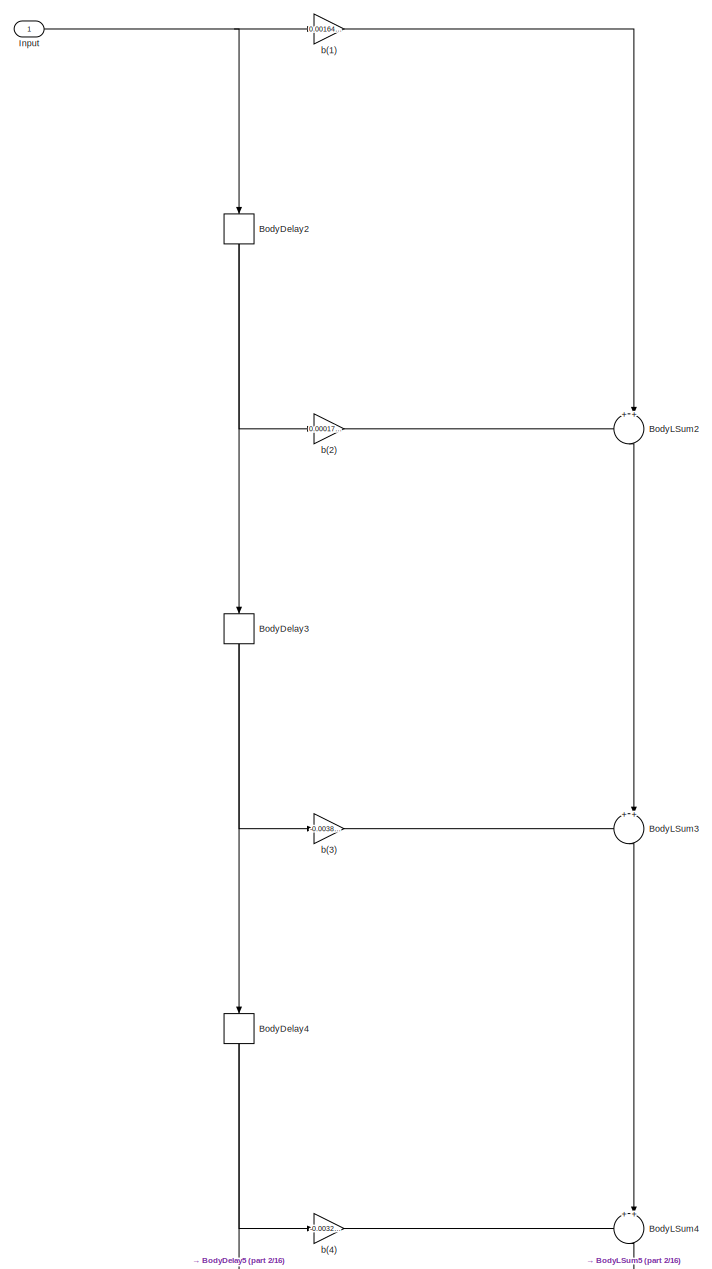
[diagram: Wind-MPPT/Torque reference 1/Differentiator Filter/Generated Filter Block - part 1/16, full width, top band]
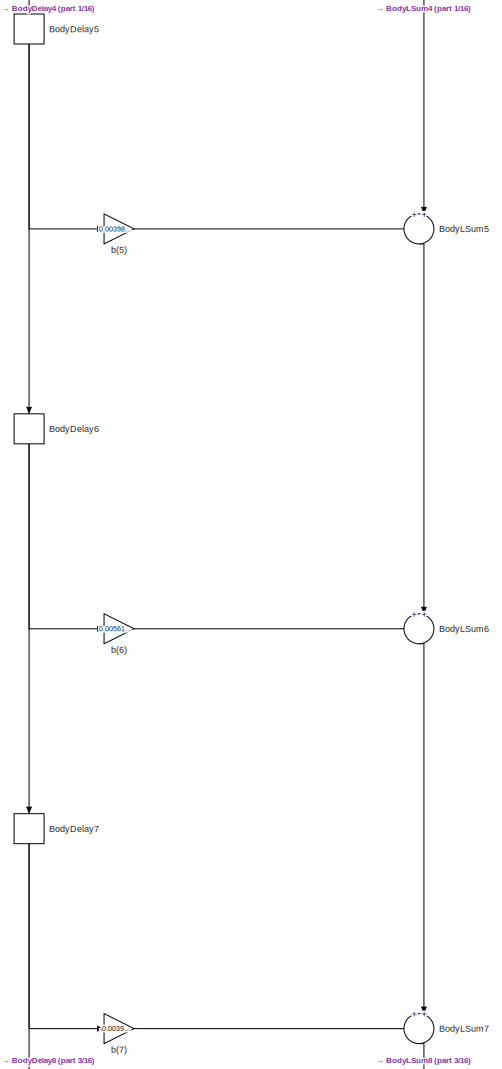
[diagram: Wind-MPPT/Torque reference 1/Differentiator Filter/Generated Filter Block - part 2/16, top center region]
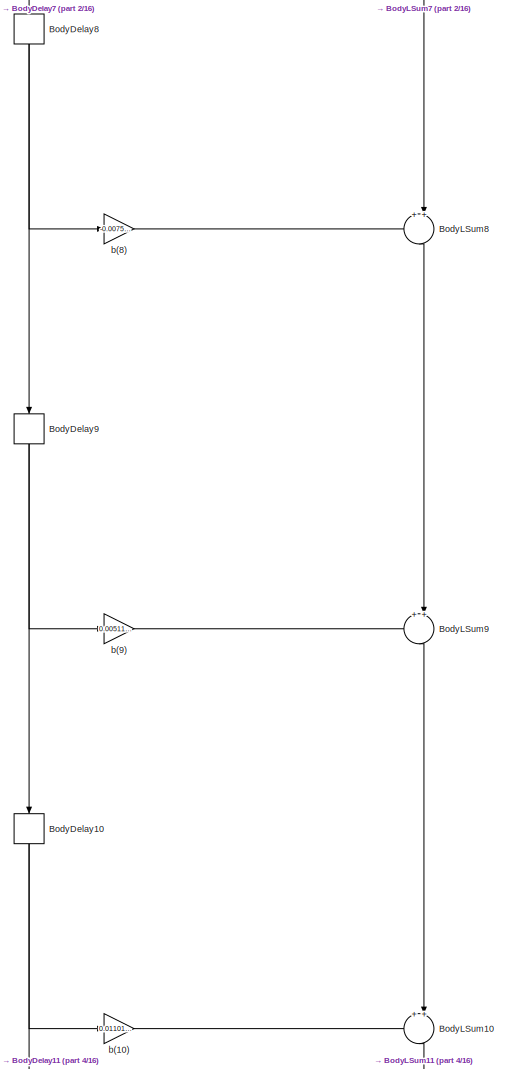
[diagram: Wind-MPPT/Torque reference 1/Differentiator Filter/Generated Filter Block - part 3/16, top center region]
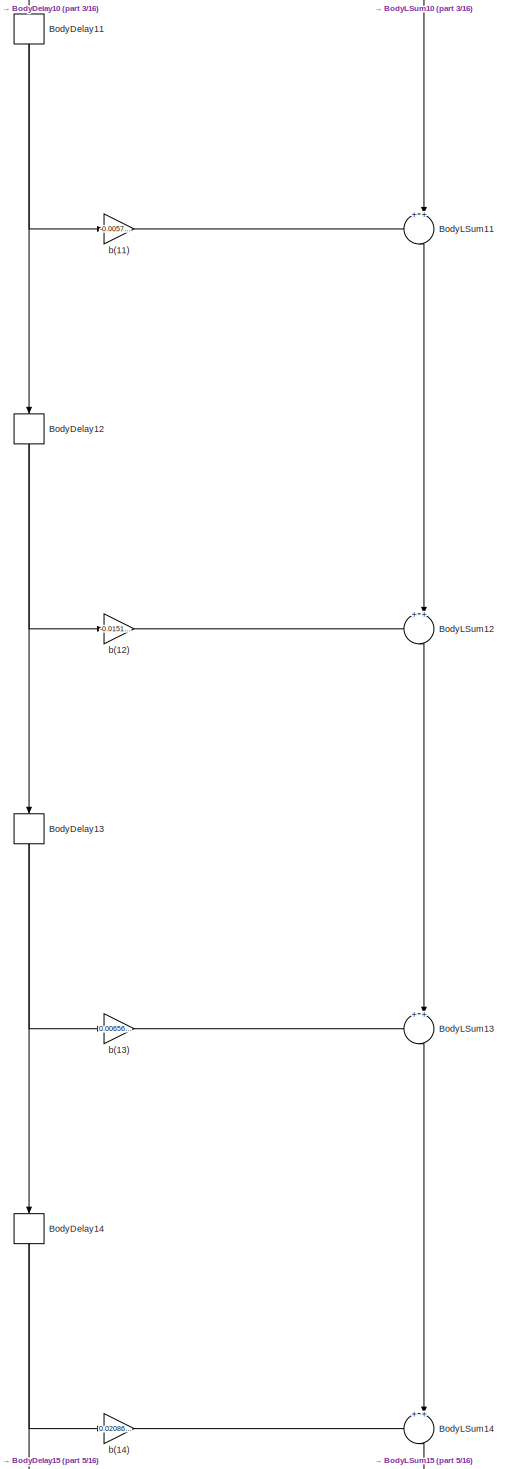
[diagram: Wind-MPPT/Torque reference 1/Differentiator Filter/Generated Filter Block - part 4/16, top center region]
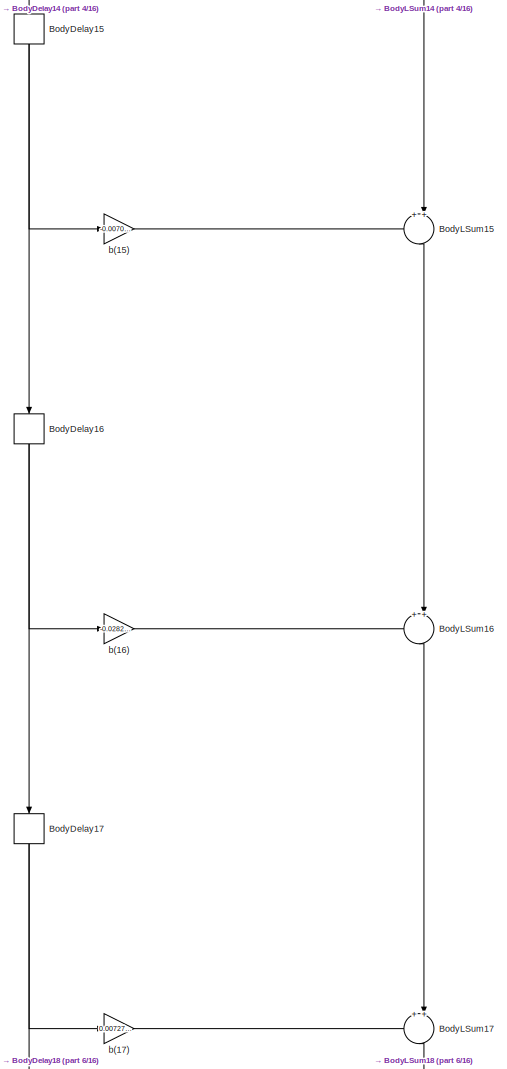
[diagram: Wind-MPPT/Torque reference 1/Differentiator Filter/Generated Filter Block - part 5/16, top center region]
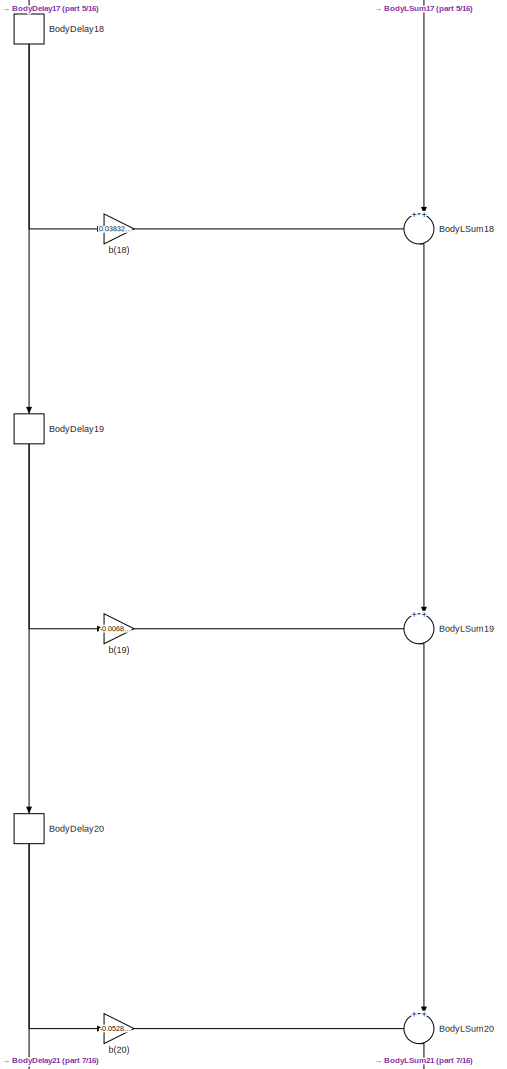
[diagram: Wind-MPPT/Torque reference 1/Differentiator Filter/Generated Filter Block - part 6/16, top center region]
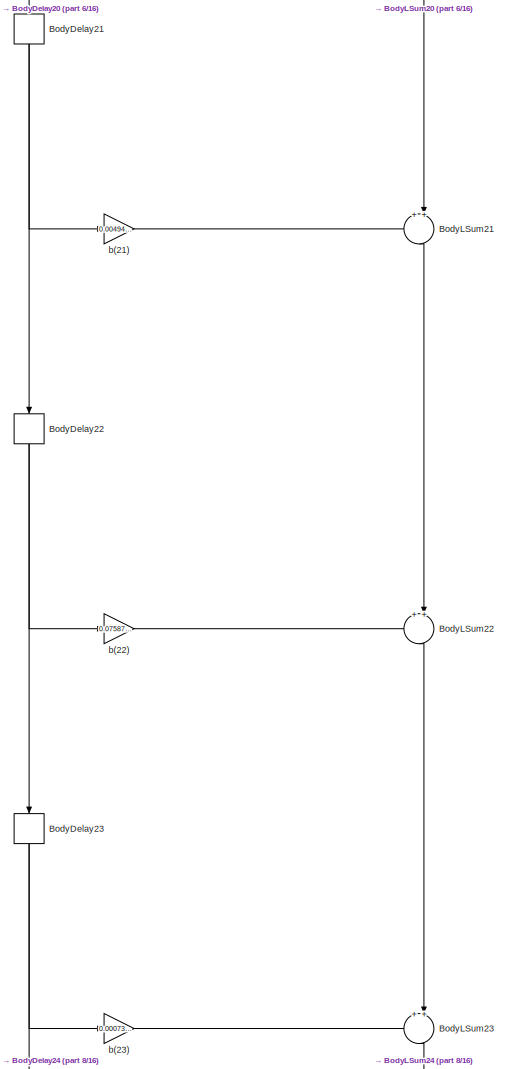
[diagram: Wind-MPPT/Torque reference 1/Differentiator Filter/Generated Filter Block - part 7/16, central region]
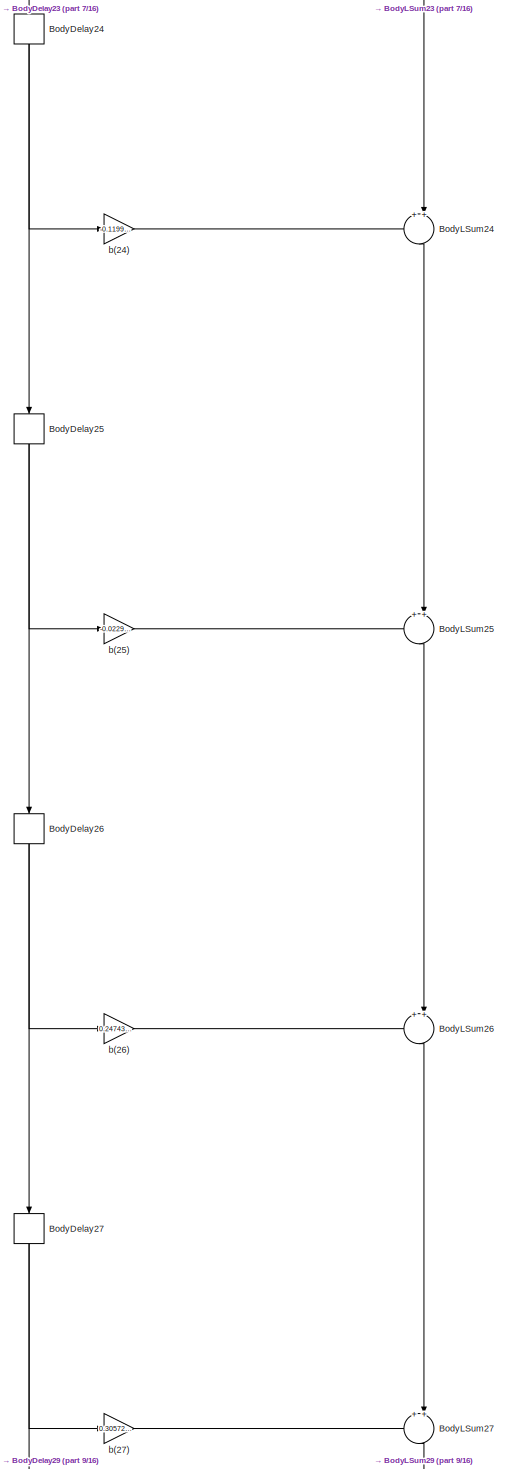
[diagram: Wind-MPPT/Torque reference 1/Differentiator Filter/Generated Filter Block - part 8/16, central region]
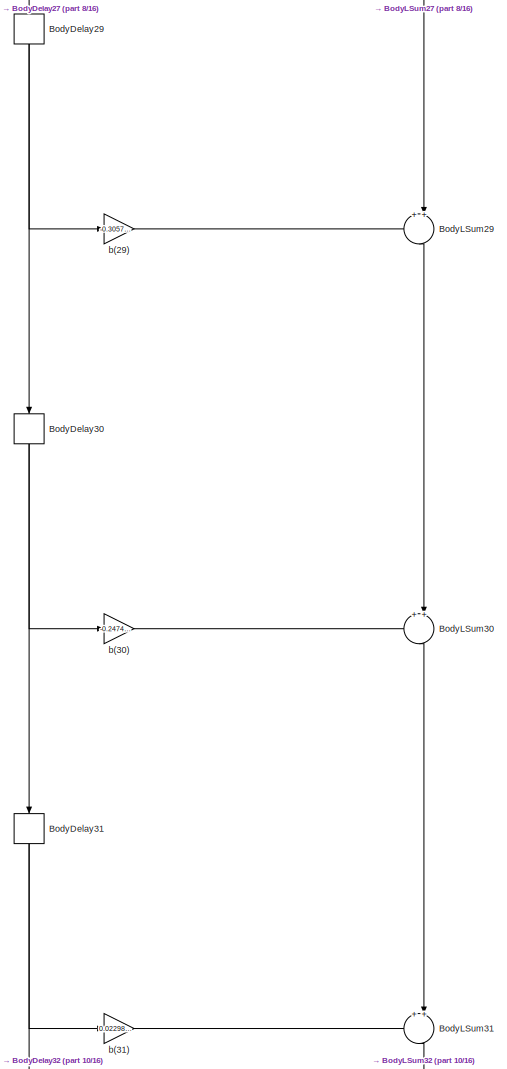
[diagram: Wind-MPPT/Torque reference 1/Differentiator Filter/Generated Filter Block - part 9/16, central region]
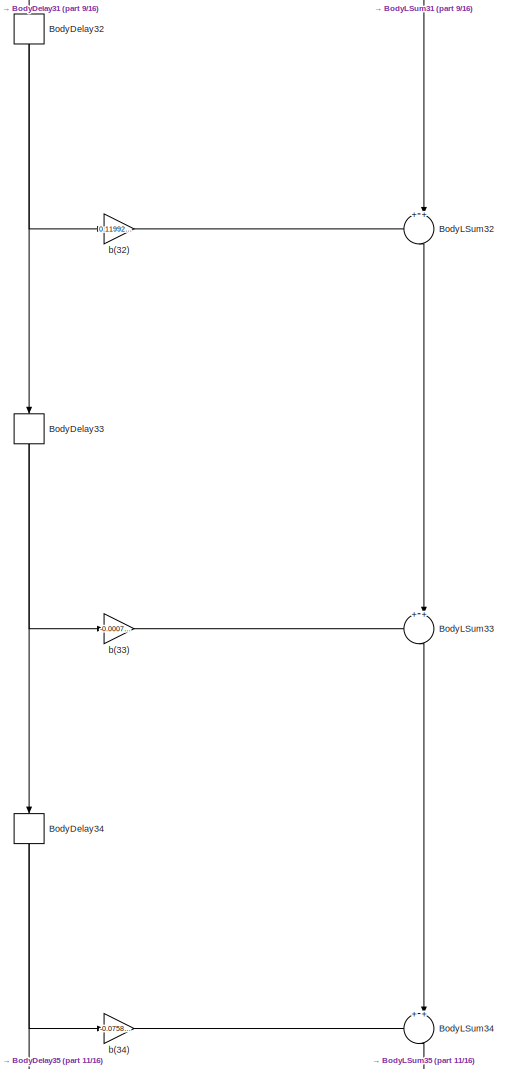
[diagram: Wind-MPPT/Torque reference 1/Differentiator Filter/Generated Filter Block - part 10/16, central region]
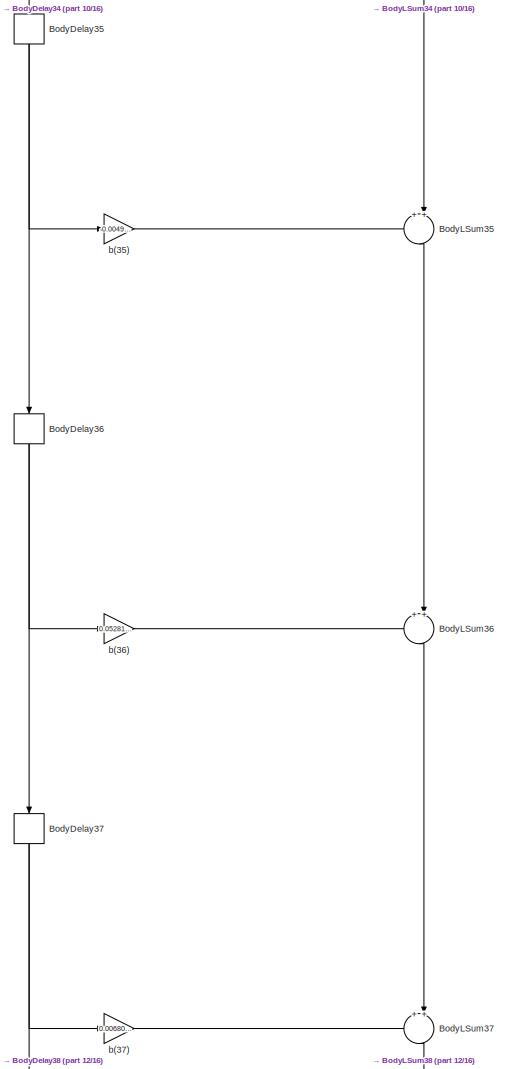
[diagram: Wind-MPPT/Torque reference 1/Differentiator Filter/Generated Filter Block - part 11/16, central region]
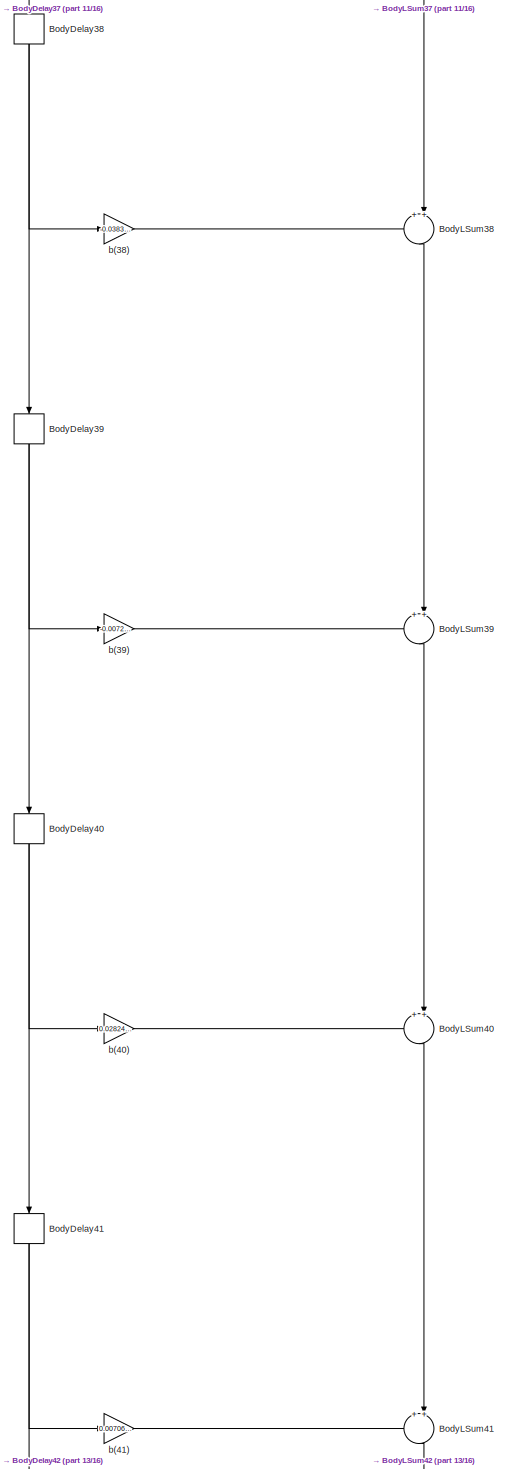
[diagram: Wind-MPPT/Torque reference 1/Differentiator Filter/Generated Filter Block - part 12/16, bottom center region]
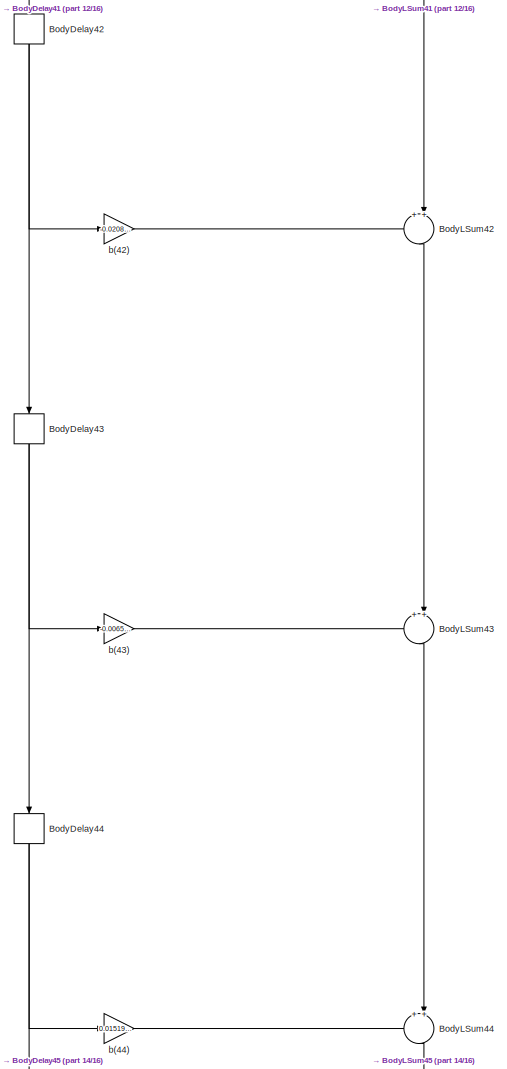
[diagram: Wind-MPPT/Torque reference 1/Differentiator Filter/Generated Filter Block - part 13/16, bottom center region]
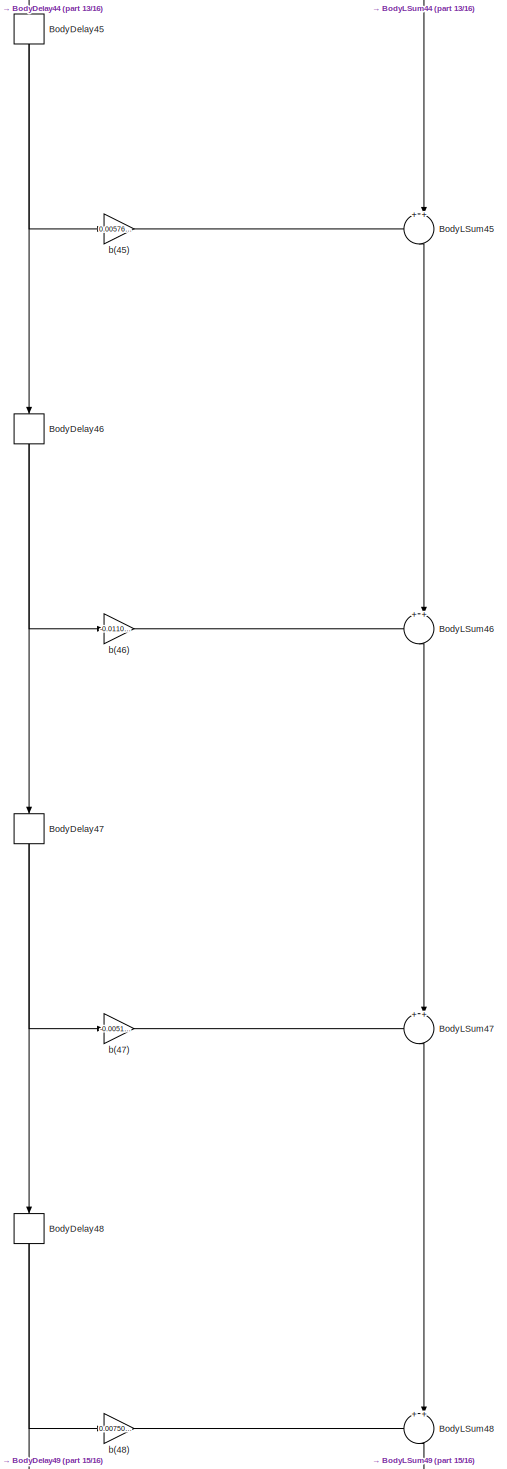
[diagram: Wind-MPPT/Torque reference 1/Differentiator Filter/Generated Filter Block - part 14/16, bottom center region]
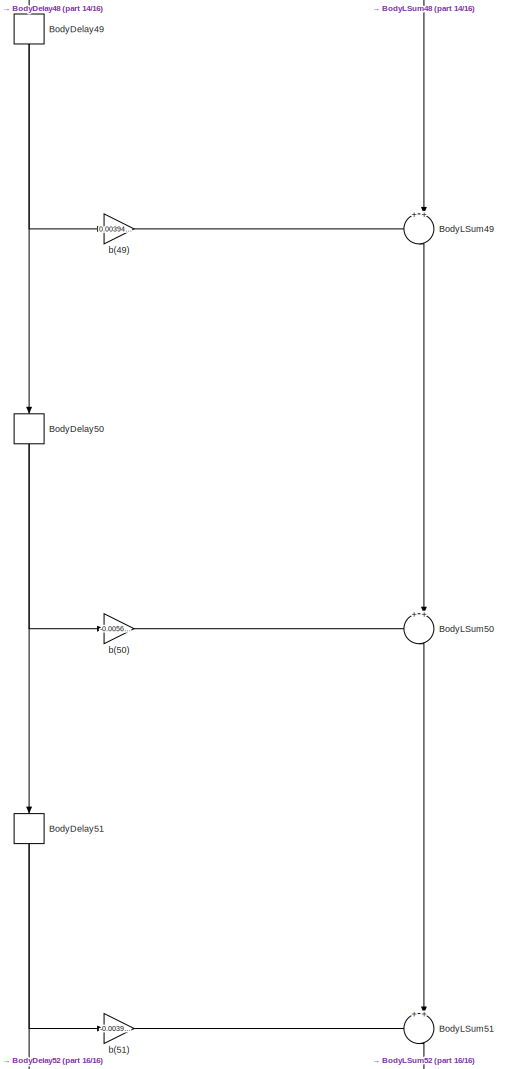
[diagram: Wind-MPPT/Torque reference 1/Differentiator Filter/Generated Filter Block - part 15/16, bottom center region]
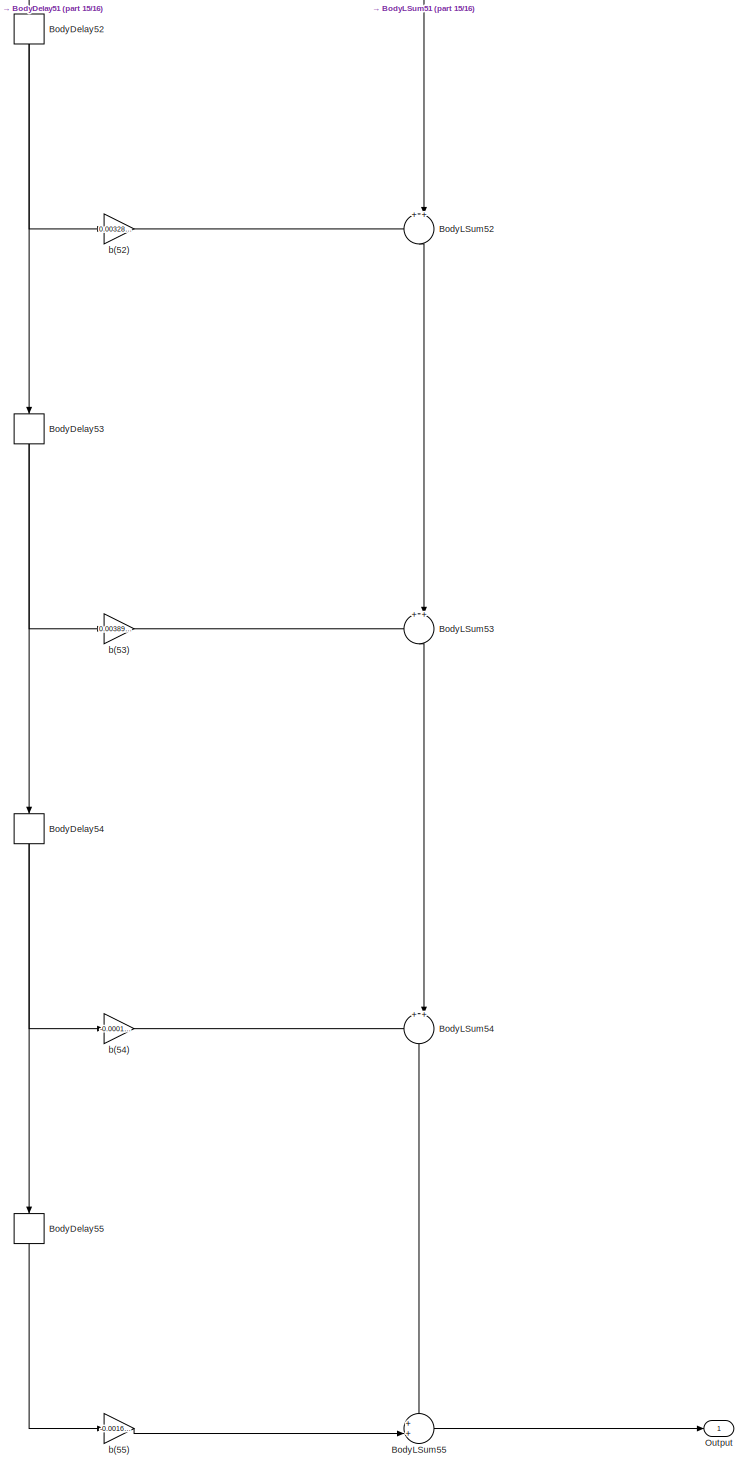
[diagram: Wind-MPPT/Torque reference 1/Differentiator Filter/Generated Filter Block - part 16/16, full width, bottom band]
BLOCK [SubSystem] Wind-MPPT/Torque reference 1/Differentiator Filter/Generated Filter Block
  ErrorFcn = dspFilterRealizedInBasicElemsAlgLoopErrFcnCallback
  Ports = [1, 1]
  RequestExecContextInheritance = off
  Tag = FilterWizardSubSystem
  UserDataPersistent = on
  Variant = off
BLOCK [Delay] Wind-MPPT/Torque reference 1/Differentiator Filter/Generated Filter Block/BodyDelay10
  DelayLength = 1
  InitialCondition = 0
  InputPortMap = u0
  InputProcessing = Inherited
  Ports = [1, 1]
BLOCK [Delay] Wind-MPPT/Torque reference 1/Differentiator Filter/Generated Filter Block/BodyDelay11
  DelayLength = 1
  InitialCondition = 0
  InputPortMap = u0
  InputProcessing = Inherited
  Ports = [1, 1]
BLOCK [Delay] Wind-MPPT/Torque reference 1/Differentiator Filter/Generated Filter Block/BodyDelay12
  DelayLength = 1
  InitialCondition = 0
  InputPortMap = u0
  InputProcessing = Inherited
  Ports = [1, 1]
BLOCK [Delay] Wind-MPPT/Torque reference 1/Differentiator Filter/Generated Filter Block/BodyDelay13
  DelayLength = 1
  InitialCondition = 0
  InputPortMap = u0
  InputProcessing = Inherited
  Ports = [1, 1]
BLOCK [Delay] Wind-MPPT/Torque reference 1/Differentiator Filter/Generated Filter Block/BodyDelay14
  DelayLength = 1
  InitialCondition = 0
  InputPortMap = u0
  InputProcessing = Inherited
  Ports = [1, 1]
BLOCK [Delay] Wind-MPPT/Torque reference 1/Differentiator Filter/Generated Filter Block/BodyDelay15
  DelayLength = 1
  InitialCondition = 0
  InputPortMap = u0
  InputProcessing = Inherited
  Ports = [1, 1]
BLOCK [Delay] Wind-MPPT/Torque reference 1/Differentiator Filter/Generated Filter Block/BodyDelay16
  DelayLength = 1
  InitialCondition = 0
  InputPortMap = u0
  InputProcessing = Inherited
  Ports = [1, 1]
BLOCK [Delay] Wind-MPPT/Torque reference 1/Differentiator Filter/Generated Filter Block/BodyDelay17
  DelayLength = 1
  InitialCondition = 0
  InputPortMap = u0
  InputProcessing = Inherited
  Ports = [1, 1]
BLOCK [Delay] Wind-MPPT/Torque reference 1/Differentiator Filter/Generated Filter Block/BodyDelay18
  DelayLength = 1
  InitialCondition = 0
  InputPortMap = u0
  InputProcessing = Inherited
  Ports = [1, 1]
BLOCK [Delay] Wind-MPPT/Torque reference 1/Differentiator Filter/Generated Filter Block/BodyDelay19
  DelayLength = 1
  InitialCondition = 0
  InputPortMap = u0
  InputProcessing = Inherited
  Ports = [1, 1]
BLOCK [Delay] Wind-MPPT/Torque reference 1/Differentiator Filter/Generated Filter Block/BodyDelay2
  DelayLength = 1
  InitialCondition = 0
  InputPortMap = u0
  InputProcessing = Inherited
  Ports = [1, 1]
BLOCK [Delay] Wind-MPPT/Torque reference 1/Differentiator Filter/Generated Filter Block/BodyDelay20
  DelayLength = 1
  InitialCondition = 0
  InputPortMap = u0
  InputProcessing = Inherited
  Ports = [1, 1]
BLOCK [Delay] Wind-MPPT/Torque reference 1/Differentiator Filter/Generated Filter Block/BodyDelay21
  DelayLength = 1
  InitialCondition = 0
  InputPortMap = u0
  InputProcessing = Inherited
  Ports = [1, 1]
BLOCK [Delay] Wind-MPPT/Torque reference 1/Differentiator Filter/Generated Filter Block/BodyDelay22
  DelayLength = 1
  InitialCondition = 0
  InputPortMap = u0
  InputProcessing = Inherited
  Ports = [1, 1]
BLOCK [Delay] Wind-MPPT/Torque reference 1/Differentiator Filter/Generated Filter Block/BodyDelay23
  DelayLength = 1
  InitialCondition = 0
  InputPortMap = u0
  InputProcessing = Inherited
  Ports = [1, 1]
BLOCK [Delay] Wind-MPPT/Torque reference 1/Differentiator Filter/Generated Filter Block/BodyDelay24
  DelayLength = 1
  InitialCondition = 0
  InputPortMap = u0
  InputProcessing = Inherited
  Ports = [1, 1]
BLOCK [Delay] Wind-MPPT/Torque reference 1/Differentiator Filter/Generated Filter Block/BodyDelay25
  DelayLength = 1
  InitialCondition = 0
  InputPortMap = u0
  InputProcessing = Inherited
  Ports = [1, 1]
BLOCK [Delay] Wind-MPPT/Torque reference 1/Differentiator Filter/Generated Filter Block/BodyDelay26
  DelayLength = 1
  InitialCondition = 0
  InputPortMap = u0
  InputProcessing = Inherited
  Ports = [1, 1]
BLOCK [Delay] Wind-MPPT/Torque reference 1/Differentiator Filter/Generated Filter Block/BodyDelay27
  DelayLength = 1
  InitialCondition = 0
  InputPortMap = u0
  InputProcessing = Inherited
  Ports = [1, 1]
BLOCK [Delay] Wind-MPPT/Torque reference 1/Differentiator Filter/Generated Filter Block/BodyDelay29
  InitialCondition = 0
  InputPortMap = u0
  InputProcessing = Inherited
  Ports = [1, 1]
BLOCK [Delay] Wind-MPPT/Torque reference 1/Differentiator Filter/Generated Filter Block/BodyDelay3
  DelayLength = 1
  InitialCondition = 0
  InputPortMap = u0
  InputProcessing = Inherited
  Ports = [1, 1]
BLOCK [Delay] Wind-MPPT/Torque reference 1/Differentiator Filter/Generated Filter Block/BodyDelay30
  DelayLength = 1
  InitialCondition = 0
  InputPortMap = u0
  InputProcessing = Inherited
  Ports = [1, 1]
BLOCK [Delay] Wind-MPPT/Torque reference 1/Differentiator Filter/Generated Filter Block/BodyDelay31
  DelayLength = 1
  InitialCondition = 0
  InputPortMap = u0
  InputProcessing = Inherited
  Ports = [1, 1]
BLOCK [Delay] Wind-MPPT/Torque reference 1/Differentiator Filter/Generated Filter Block/BodyDelay32
  DelayLength = 1
  InitialCondition = 0
  InputPortMap = u0
  InputProcessing = Inherited
  Ports = [1, 1]
BLOCK [Delay] Wind-MPPT/Torque reference 1/Differentiator Filter/Generated Filter Block/BodyDelay33
  DelayLength = 1
  InitialCondition = 0
  InputPortMap = u0
  InputProcessing = Inherited
  Ports = [1, 1]
BLOCK [Delay] Wind-MPPT/Torque reference 1/Differentiator Filter/Generated Filter Block/BodyDelay34
  DelayLength = 1
  InitialCondition = 0
  InputPortMap = u0
  InputProcessing = Inherited
  Ports = [1, 1]
BLOCK [Delay] Wind-MPPT/Torque reference 1/Differentiator Filter/Generated Filter Block/BodyDelay35
  DelayLength = 1
  InitialCondition = 0
  InputPortMap = u0
  InputProcessing = Inherited
  Ports = [1, 1]
BLOCK [Delay] Wind-MPPT/Torque reference 1/Differentiator Filter/Generated Filter Block/BodyDelay36
  DelayLength = 1
  InitialCondition = 0
  InputPortMap = u0
  InputProcessing = Inherited
  Ports = [1, 1]
BLOCK [Delay] Wind-MPPT/Torque reference 1/Differentiator Filter/Generated Filter Block/BodyDelay37
  DelayLength = 1
  InitialCondition = 0
  InputPortMap = u0
  InputProcessing = Inherited
  Ports = [1, 1]
BLOCK [Delay] Wind-MPPT/Torque reference 1/Differentiator Filter/Generated Filter Block/BodyDelay38
  DelayLength = 1
  InitialCondition = 0
  InputPortMap = u0
  InputProcessing = Inherited
  Ports = [1, 1]
BLOCK [Delay] Wind-MPPT/Torque reference 1/Differentiator Filter/Generated Filter Block/BodyDelay39
  DelayLength = 1
  InitialCondition = 0
  InputPortMap = u0
  InputProcessing = Inherited
  Ports = [1, 1]
BLOCK [Delay] Wind-MPPT/Torque reference 1/Differentiator Filter/Generated Filter Block/BodyDelay4
  DelayLength = 1
  InitialCondition = 0
  InputPortMap = u0
  InputProcessing = Inherited
  Ports = [1, 1]
BLOCK [Delay] Wind-MPPT/Torque reference 1/Differentiator Filter/Generated Filter Block/BodyDelay40
  DelayLength = 1
  InitialCondition = 0
  InputPortMap = u0
  InputProcessing = Inherited
  Ports = [1, 1]
BLOCK [Delay] Wind-MPPT/Torque reference 1/Differentiator Filter/Generated Filter Block/BodyDelay41
  DelayLength = 1
  InitialCondition = 0
  InputPortMap = u0
  InputProcessing = Inherited
  Ports = [1, 1]
BLOCK [Delay] Wind-MPPT/Torque reference 1/Differentiator Filter/Generated Filter Block/BodyDelay42
  DelayLength = 1
  InitialCondition = 0
  InputPortMap = u0
  InputProcessing = Inherited
  Ports = [1, 1]
BLOCK [Delay] Wind-MPPT/Torque reference 1/Differentiator Filter/Generated Filter Block/BodyDelay43
  DelayLength = 1
  InitialCondition = 0
  InputPortMap = u0
  InputProcessing = Inherited
  Ports = [1, 1]
BLOCK [Delay] Wind-MPPT/Torque reference 1/Differentiator Filter/Generated Filter Block/BodyDelay44
  DelayLength = 1
  InitialCondition = 0
  InputPortMap = u0
  InputProcessing = Inherited
  Ports = [1, 1]
BLOCK [Delay] Wind-MPPT/Torque reference 1/Differentiator Filter/Generated Filter Block/BodyDelay45
  DelayLength = 1
  InitialCondition = 0
  InputPortMap = u0
  InputProcessing = Inherited
  Ports = [1, 1]
BLOCK [Delay] Wind-MPPT/Torque reference 1/Differentiator Filter/Generated Filter Block/BodyDelay46
  DelayLength = 1
  InitialCondition = 0
  InputPortMap = u0
  InputProcessing = Inherited
  Ports = [1, 1]
BLOCK [Delay] Wind-MPPT/Torque reference 1/Differentiator Filter/Generated Filter Block/BodyDelay47
  DelayLength = 1
  InitialCondition = 0
  InputPortMap = u0
  InputProcessing = Inherited
  Ports = [1, 1]
BLOCK [Delay] Wind-MPPT/Torque reference 1/Differentiator Filter/Generated Filter Block/BodyDelay48
  DelayLength = 1
  InitialCondition = 0
  InputPortMap = u0
  InputProcessing = Inherited
  Ports = [1, 1]
BLOCK [Delay] Wind-MPPT/Torque reference 1/Differentiator Filter/Generated Filter Block/BodyDelay49
  DelayLength = 1
  InitialCondition = 0
  InputPortMap = u0
  InputProcessing = Inherited
  Ports = [1, 1]
BLOCK [Delay] Wind-MPPT/Torque reference 1/Differentiator Filter/Generated Filter Block/BodyDelay5
  DelayLength = 1
  InitialCondition = 0
  InputPortMap = u0
  InputProcessing = Inherited
  Ports = [1, 1]
BLOCK [Delay] Wind-MPPT/Torque reference 1/Differentiator Filter/Generated Filter Block/BodyDelay50
  DelayLength = 1
  InitialCondition = 0
  InputPortMap = u0
  InputProcessing = Inherited
  Ports = [1, 1]
BLOCK [Delay] Wind-MPPT/Torque reference 1/Differentiator Filter/Generated Filter Block/BodyDelay51
  DelayLength = 1
  InitialCondition = 0
  InputPortMap = u0
  InputProcessing = Inherited
  Ports = [1, 1]
BLOCK [Delay] Wind-MPPT/Torque reference 1/Differentiator Filter/Generated Filter Block/BodyDelay52
  DelayLength = 1
  InitialCondition = 0
  InputPortMap = u0
  InputProcessing = Inherited
  Ports = [1, 1]
BLOCK [Delay] Wind-MPPT/Torque reference 1/Differentiator Filter/Generated Filter Block/BodyDelay53
  DelayLength = 1
  InitialCondition = 0
  InputPortMap = u0
  InputProcessing = Inherited
  Ports = [1, 1]
BLOCK [Delay] Wind-MPPT/Torque reference 1/Differentiator Filter/Generated Filter Block/BodyDelay54
  DelayLength = 1
  InitialCondition = 0
  InputPortMap = u0
  InputProcessing = Inherited
  Ports = [1, 1]
BLOCK [Delay] Wind-MPPT/Torque reference 1/Differentiator Filter/Generated Filter Block/BodyDelay55
  DelayLength = 1
  InitialCondition = 0
  InputPortMap = u0
  InputProcessing = Inherited
  Ports = [1, 1]
BLOCK [Delay] Wind-MPPT/Torque reference 1/Differentiator Filter/Generated Filter Block/BodyDelay6
  DelayLength = 1
  InitialCondition = 0
  InputPortMap = u0
  InputProcessing = Inherited
  Ports = [1, 1]
BLOCK [Delay] Wind-MPPT/Torque reference 1/Differentiator Filter/Generated Filter Block/BodyDelay7
  DelayLength = 1
  InitialCondition = 0
  InputPortMap = u0
  InputProcessing = Inherited
  Ports = [1, 1]
BLOCK [Delay] Wind-MPPT/Torque reference 1/Differentiator Filter/Generated Filter Block/BodyDelay8
  DelayLength = 1
  InitialCondition = 0
  InputPortMap = u0
  InputProcessing = Inherited
  Ports = [1, 1]
BLOCK [Delay] Wind-MPPT/Torque reference 1/Differentiator Filter/Generated Filter Block/BodyDelay9
  DelayLength = 1
  InitialCondition = 0
  InputPortMap = u0
  InputProcessing = Inherited
  Ports = [1, 1]
BLOCK [Sum] Wind-MPPT/Torque reference 1/Differentiator Filter/Generated Filter Block/BodyLSum10
  IconShape = round
  Inputs = ++|
  Ports = [2, 1]
BLOCK [Sum] Wind-MPPT/Torque reference 1/Differentiator Filter/Generated Filter Block/BodyLSum11
  IconShape = round
  Inputs = ++|
  Ports = [2, 1]
BLOCK [Sum] Wind-MPPT/Torque reference 1/Differentiator Filter/Generated Filter Block/BodyLSum12
  IconShape = round
  Inputs = ++|
  Ports = [2, 1]
BLOCK [Sum] Wind-MPPT/Torque reference 1/Differentiator Filter/Generated Filter Block/BodyLSum13
  IconShape = round
  Inputs = ++|
  Ports = [2, 1]
BLOCK [Sum] Wind-MPPT/Torque reference 1/Differentiator Filter/Generated Filter Block/BodyLSum14
  IconShape = round
  Inputs = ++|
  Ports = [2, 1]
BLOCK [Sum] Wind-MPPT/Torque reference 1/Differentiator Filter/Generated Filter Block/BodyLSum15
  IconShape = round
  Inputs = ++|
  Ports = [2, 1]
BLOCK [Sum] Wind-MPPT/Torque reference 1/Differentiator Filter/Generated Filter Block/BodyLSum16
  IconShape = round
  Inputs = ++|
  Ports = [2, 1]
BLOCK [Sum] Wind-MPPT/Torque reference 1/Differentiator Filter/Generated Filter Block/BodyLSum17
  IconShape = round
  Inputs = ++|
  Ports = [2, 1]
BLOCK [Sum] Wind-MPPT/Torque reference 1/Differentiator Filter/Generated Filter Block/BodyLSum18
  IconShape = round
  Inputs = ++|
  Ports = [2, 1]
BLOCK [Sum] Wind-MPPT/Torque reference 1/Differentiator Filter/Generated Filter Block/BodyLSum19
  IconShape = round
  Inputs = ++|
  Ports = [2, 1]
BLOCK [Sum] Wind-MPPT/Torque reference 1/Differentiator Filter/Generated Filter Block/BodyLSum2
  IconShape = round
  Inputs = ++|
  Ports = [2, 1]
BLOCK [Sum] Wind-MPPT/Torque reference 1/Differentiator Filter/Generated Filter Block/BodyLSum20
  IconShape = round
  Inputs = ++|
  Ports = [2, 1]
BLOCK [Sum] Wind-MPPT/Torque reference 1/Differentiator Filter/Generated Filter Block/BodyLSum21
  IconShape = round
  Inputs = ++|
  Ports = [2, 1]
BLOCK [Sum] Wind-MPPT/Torque reference 1/Differentiator Filter/Generated Filter Block/BodyLSum22
  IconShape = round
  Inputs = ++|
  Ports = [2, 1]
BLOCK [Sum] Wind-MPPT/Torque reference 1/Differentiator Filter/Generated Filter Block/BodyLSum23
  IconShape = round
  Inputs = ++|
  Ports = [2, 1]
BLOCK [Sum] Wind-MPPT/Torque reference 1/Differentiator Filter/Generated Filter Block/BodyLSum24
  IconShape = round
  Inputs = ++|
  Ports = [2, 1]
BLOCK [Sum] Wind-MPPT/Torque reference 1/Differentiator Filter/Generated Filter Block/BodyLSum25
  IconShape = round
  Inputs = ++|
  Ports = [2, 1]
BLOCK [Sum] Wind-MPPT/Torque reference 1/Differentiator Filter/Generated Filter Block/BodyLSum26
  IconShape = round
  Inputs = ++|
  Ports = [2, 1]
BLOCK [Sum] Wind-MPPT/Torque reference 1/Differentiator Filter/Generated Filter Block/BodyLSum27
  IconShape = round
  Inputs = ++|
  Ports = [2, 1]
BLOCK [Sum] Wind-MPPT/Torque reference 1/Differentiator Filter/Generated Filter Block/BodyLSum29
  IconShape = round
  Inputs = ++|
  Ports = [2, 1]
BLOCK [Sum] Wind-MPPT/Torque reference 1/Differentiator Filter/Generated Filter Block/BodyLSum3
  IconShape = round
  Inputs = ++|
  Ports = [2, 1]
BLOCK [Sum] Wind-MPPT/Torque reference 1/Differentiator Filter/Generated Filter Block/BodyLSum30
  IconShape = round
  Inputs = ++|
  Ports = [2, 1]
BLOCK [Sum] Wind-MPPT/Torque reference 1/Differentiator Filter/Generated Filter Block/BodyLSum31
  IconShape = round
  Inputs = ++|
  Ports = [2, 1]
BLOCK [Sum] Wind-MPPT/Torque reference 1/Differentiator Filter/Generated Filter Block/BodyLSum32
  IconShape = round
  Inputs = ++|
  Ports = [2, 1]
BLOCK [Sum] Wind-MPPT/Torque reference 1/Differentiator Filter/Generated Filter Block/BodyLSum33
  IconShape = round
  Inputs = ++|
  Ports = [2, 1]
BLOCK [Sum] Wind-MPPT/Torque reference 1/Differentiator Filter/Generated Filter Block/BodyLSum34
  IconShape = round
  Inputs = ++|
  Ports = [2, 1]
BLOCK [Sum] Wind-MPPT/Torque reference 1/Differentiator Filter/Generated Filter Block/BodyLSum35
  IconShape = round
  Inputs = ++|
  Ports = [2, 1]
BLOCK [Sum] Wind-MPPT/Torque reference 1/Differentiator Filter/Generated Filter Block/BodyLSum36
  IconShape = round
  Inputs = ++|
  Ports = [2, 1]
BLOCK [Sum] Wind-MPPT/Torque reference 1/Differentiator Filter/Generated Filter Block/BodyLSum37
  IconShape = round
  Inputs = ++|
  Ports = [2, 1]
BLOCK [Sum] Wind-MPPT/Torque reference 1/Differentiator Filter/Generated Filter Block/BodyLSum38
  IconShape = round
  Inputs = ++|
  Ports = [2, 1]
BLOCK [Sum] Wind-MPPT/Torque reference 1/Differentiator Filter/Generated Filter Block/BodyLSum39
  IconShape = round
  Inputs = ++|
  Ports = [2, 1]
BLOCK [Sum] Wind-MPPT/Torque reference 1/Differentiator Filter/Generated Filter Block/BodyLSum4
  IconShape = round
  Inputs = ++|
  Ports = [2, 1]
BLOCK [Sum] Wind-MPPT/Torque reference 1/Differentiator Filter/Generated Filter Block/BodyLSum40
  IconShape = round
  Inputs = ++|
  Ports = [2, 1]
BLOCK [Sum] Wind-MPPT/Torque reference 1/Differentiator Filter/Generated Filter Block/BodyLSum41
  IconShape = round
  Inputs = ++|
  Ports = [2, 1]
BLOCK [Sum] Wind-MPPT/Torque reference 1/Differentiator Filter/Generated Filter Block/BodyLSum42
  IconShape = round
  Inputs = ++|
  Ports = [2, 1]
BLOCK [Sum] Wind-MPPT/Torque reference 1/Differentiator Filter/Generated Filter Block/BodyLSum43
  IconShape = round
  Inputs = ++|
  Ports = [2, 1]
BLOCK [Sum] Wind-MPPT/Torque reference 1/Differentiator Filter/Generated Filter Block/BodyLSum44
  IconShape = round
  Inputs = ++|
  Ports = [2, 1]
BLOCK [Sum] Wind-MPPT/Torque reference 1/Differentiator Filter/Generated Filter Block/BodyLSum45
  IconShape = round
  Inputs = ++|
  Ports = [2, 1]
BLOCK [Sum] Wind-MPPT/Torque reference 1/Differentiator Filter/Generated Filter Block/BodyLSum46
  IconShape = round
  Inputs = ++|
  Ports = [2, 1]
BLOCK [Sum] Wind-MPPT/Torque reference 1/Differentiator Filter/Generated Filter Block/BodyLSum47
  IconShape = round
  Inputs = ++|
  Ports = [2, 1]
BLOCK [Sum] Wind-MPPT/Torque reference 1/Differentiator Filter/Generated Filter Block/BodyLSum48
  IconShape = round
  Inputs = ++|
  Ports = [2, 1]
BLOCK [Sum] Wind-MPPT/Torque reference 1/Differentiator Filter/Generated Filter Block/BodyLSum49
  IconShape = round
  Inputs = ++|
  Ports = [2, 1]
BLOCK [Sum] Wind-MPPT/Torque reference 1/Differentiator Filter/Generated Filter Block/BodyLSum5
  IconShape = round
  Inputs = ++|
  Ports = [2, 1]
BLOCK [Sum] Wind-MPPT/Torque reference 1/Differentiator Filter/Generated Filter Block/BodyLSum50
  IconShape = round
  Inputs = ++|
  Ports = [2, 1]
BLOCK [Sum] Wind-MPPT/Torque reference 1/Differentiator Filter/Generated Filter Block/BodyLSum51
  IconShape = round
  Inputs = ++|
  Ports = [2, 1]
BLOCK [Sum] Wind-MPPT/Torque reference 1/Differentiator Filter/Generated Filter Block/BodyLSum52
  IconShape = round
  Inputs = ++|
  Ports = [2, 1]
BLOCK [Sum] Wind-MPPT/Torque reference 1/Differentiator Filter/Generated Filter Block/BodyLSum53
  IconShape = round
  Inputs = ++|
  Ports = [2, 1]
BLOCK [Sum] Wind-MPPT/Torque reference 1/Differentiator Filter/Generated Filter Block/BodyLSum54
  IconShape = round
  Inputs = ++|
  Ports = [2, 1]
BLOCK [Sum] Wind-MPPT/Torque reference 1/Differentiator Filter/Generated Filter Block/BodyLSum55
  IconShape = round
  Inputs = ++|
  Ports = [2, 1]
BLOCK [Sum] Wind-MPPT/Torque reference 1/Differentiator Filter/Generated Filter Block/BodyLSum6
  IconShape = round
  Inputs = ++|
  Ports = [2, 1]
BLOCK [Sum] Wind-MPPT/Torque reference 1/Differentiator Filter/Generated Filter Block/BodyLSum7
  IconShape = round
  Inputs = ++|
  Ports = [2, 1]
BLOCK [Sum] Wind-MPPT/Torque reference 1/Differentiator Filter/Generated Filter Block/BodyLSum8
  IconShape = round
  Inputs = ++|
  Ports = [2, 1]
BLOCK [Sum] Wind-MPPT/Torque reference 1/Differentiator Filter/Generated Filter Block/BodyLSum9
  IconShape = round
  Inputs = ++|
  Ports = [2, 1]
BLOCK [Inport] Wind-MPPT/Torque reference 1/Differentiator Filter/Generated Filter Block/Input
  IconDisplay = Port number
BLOCK [Outport] Wind-MPPT/Torque reference 1/Differentiator Filter/Generated Filter Block/Output
  IconDisplay = Port number
BLOCK [Gain] Wind-MPPT/Torque reference 1/Differentiator Filter/Generated Filter Block/b(1)
  Gain = 0.0016485839041717864
BLOCK [Gain] Wind-MPPT/Torque reference 1/Differentiator Filter/Generated Filter Block/b(10)
  Gain = 0.011014879869749052
BLOCK [Gain] Wind-MPPT/Torque reference 1/Differentiator Filter/Generated Filter Block/b(11)
  Gain = -0.005763535930488302
BLOCK [Gain] Wind-MPPT/Torque reference 1/Differentiator Filter/Generated Filter Block/b(12)
  Gain = -0.0151981830555213
BLOCK [Gain] Wind-MPPT/Torque reference 1/Differentiator Filter/Generated Filter Block/b(13)
  Gain = 0.0065686388642668125
BLOCK [Gain] Wind-MPPT/Torque reference 1/Differentiator Filter/Generated Filter Block/b(14)
  Gain = 0.020867949959447688
BLOCK [Gain] Wind-MPPT/Torque reference 1/Differentiator Filter/Generated Filter Block/b(15)
  Gain = -0.0070602627960907726
BLOCK [Gain] Wind-MPPT/Torque reference 1/Differentiator Filter/Generated Filter Block/b(16)
  Gain = -0.028242635943863115
BLOCK [Gain] Wind-MPPT/Torque reference 1/Differentiator Filter/Generated Filter Block/b(17)
  Gain = 0.0072704924773104732
BLOCK [Gain] Wind-MPPT/Torque reference 1/Differentiator Filter/Generated Filter Block/b(18)
  Gain = 0.038329320446368831
BLOCK [Gain] Wind-MPPT/Torque reference 1/Differentiator Filter/Generated Filter Block/b(19)
  Gain = -0.0068002265270407491
BLOCK [Gain] Wind-MPPT/Torque reference 1/Differentiator Filter/Generated Filter Block/b(2)
  Gain = 0.00017042943589110223
BLOCK [Gain] Wind-MPPT/Torque reference 1/Differentiator Filter/Generated Filter Block/b(20)
  Gain = -0.052819993002155965
BLOCK [Gain] Wind-MPPT/Torque reference 1/Differentiator Filter/Generated Filter Block/b(21)
  Gain = 0.0049482783503700268
BLOCK [Gain] Wind-MPPT/Torque reference 1/Differentiator Filter/Generated Filter Block/b(22)
  Gain = 0.075871674298216826
BLOCK [Gain] Wind-MPPT/Torque reference 1/Differentiator Filter/Generated Filter Block/b(23)
  Gain = 0.00073312852370662537
BLOCK [Gain] Wind-MPPT/Torque reference 1/Differentiator Filter/Generated Filter Block/b(24)
  Gain = -0.11992357305817197
BLOCK [Gain] Wind-MPPT/Torque reference 1/Differentiator Filter/Generated Filter Block/b(25)
  Gain = -0.022982436984387535
BLOCK [Gain] Wind-MPPT/Torque reference 1/Differentiator Filter/Generated Filter Block/b(26)
  Gain = 0.24743192698089667
BLOCK [Gain] Wind-MPPT/Torque reference 1/Differentiator Filter/Generated Filter Block/b(27)
  Gain = 0.30572927022108953
BLOCK [Gain] Wind-MPPT/Torque reference 1/Differentiator Filter/Generated Filter Block/b(29)
  Gain = -0.30572927022108953
BLOCK [Gain] Wind-MPPT/Torque reference 1/Differentiator Filter/Generated Filter Block/b(3)
  Gain = -0.0038948238157296179
BLOCK [Gain] Wind-MPPT/Torque reference 1/Differentiator Filter/Generated Filter Block/b(30)
  Gain = -0.24743192698089667
BLOCK [Gain] Wind-MPPT/Torque reference 1/Differentiator Filter/Generated Filter Block/b(31)
  Gain = 0.022982436984387535
BLOCK [Gain] Wind-MPPT/Torque reference 1/Differentiator Filter/Generated Filter Block/b(32)
  Gain = 0.11992357305817197
BLOCK [Gain] Wind-MPPT/Torque reference 1/Differentiator Filter/Generated Filter Block/b(33)
  Gain = -0.00073312852370662537
BLOCK [Gain] Wind-MPPT/Torque reference 1/Differentiator Filter/Generated Filter Block/b(34)
  Gain = -0.075871674298216826
BLOCK [Gain] Wind-MPPT/Torque reference 1/Differentiator Filter/Generated Filter Block/b(35)
  Gain = -0.0049482783503700268
BLOCK [Gain] Wind-MPPT/Torque reference 1/Differentiator Filter/Generated Filter Block/b(36)
  Gain = 0.052819993002155965
BLOCK [Gain] Wind-MPPT/Torque reference 1/Differentiator Filter/Generated Filter Block/b(37)
  Gain = 0.0068002265270407491
BLOCK [Gain] Wind-MPPT/Torque reference 1/Differentiator Filter/Generated Filter Block/b(38)
  Gain = -0.038329320446368831
BLOCK [Gain] Wind-MPPT/Torque reference 1/Differentiator Filter/Generated Filter Block/b(39)
  Gain = -0.0072704924773104732
BLOCK [Gain] Wind-MPPT/Torque reference 1/Differentiator Filter/Generated Filter Block/b(4)
  Gain = -0.0032830177673830877
BLOCK [Gain] Wind-MPPT/Torque reference 1/Differentiator Filter/Generated Filter Block/b(40)
  Gain = 0.028242635943863115
BLOCK [Gain] Wind-MPPT/Torque reference 1/Differentiator Filter/Generated Filter Block/b(41)
  Gain = 0.0070602627960907726
BLOCK [Gain] Wind-MPPT/Torque reference 1/Differentiator Filter/Generated Filter Block/b(42)
  Gain = -0.020867949959447688
BLOCK [Gain] Wind-MPPT/Torque reference 1/Differentiator Filter/Generated Filter Block/b(43)
  Gain = -0.0065686388642668125
BLOCK [Gain] Wind-MPPT/Torque reference 1/Differentiator Filter/Generated Filter Block/b(44)
  Gain = 0.0151981830555213
BLOCK [Gain] Wind-MPPT/Torque reference 1/Differentiator Filter/Generated Filter Block/b(45)
  Gain = 0.005763535930488302
BLOCK [Gain] Wind-MPPT/Torque reference 1/Differentiator Filter/Generated Filter Block/b(46)
  Gain = -0.011014879869749052
BLOCK [Gain] Wind-MPPT/Torque reference 1/Differentiator Filter/Generated Filter Block/b(47)
  Gain = -0.0051172092513206528
BLOCK [Gain] Wind-MPPT/Torque reference 1/Differentiator Filter/Generated Filter Block/b(48)
  Gain = 0.0075034408734532838
BLOCK [Gain] Wind-MPPT/Torque reference 1/Differentiator Filter/Generated Filter Block/b(49)
  Gain = 0.0039498824016694816
BLOCK [Gain] Wind-MPPT/Torque reference 1/Differentiator Filter/Generated Filter Block/b(5)
  Gain = 0.0039854203993547575
BLOCK [Gain] Wind-MPPT/Torque reference 1/Differentiator Filter/Generated Filter Block/b(50)
  Gain = -0.0056185919166622817
BLOCK [Gain] Wind-MPPT/Torque reference 1/Differentiator Filter/Generated Filter Block/b(51)
  Gain = -0.0039854203993547575
BLOCK [Gain] Wind-MPPT/Torque reference 1/Differentiator Filter/Generated Filter Block/b(52)
  Gain = 0.0032830177673830877
BLOCK [Gain] Wind-MPPT/Torque reference 1/Differentiator Filter/Generated Filter Block/b(53)
  Gain = 0.0038948238157296179
BLOCK [Gain] Wind-MPPT/Torque reference 1/Differentiator Filter/Generated Filter Block/b(54)
  Gain = -0.00017042943589110223
BLOCK [Gain] Wind-MPPT/Torque reference 1/Differentiator Filter/Generated Filter Block/b(55)
  Gain = -0.0016485839041717864
BLOCK [Gain] Wind-MPPT/Torque reference 1/Differentiator Filter/Generated Filter Block/b(6)
  Gain = 0.0056185919166622817
BLOCK [Gain] Wind-MPPT/Torque reference 1/Differentiator Filter/Generated Filter Block/b(7)
  Gain = -0.0039498824016694816
BLOCK [Gain] Wind-MPPT/Torque reference 1/Differentiator Filter/Generated Filter Block/b(8)
  Gain = -0.0075034408734532838
BLOCK [Gain] Wind-MPPT/Torque reference 1/Differentiator Filter/Generated Filter Block/b(9)
  Gain = 0.0051172092513206528
BLOCK [Inport] Wind-MPPT/Torque reference 1/Differentiator Filter/In
  IconDisplay = Port number
BLOCK [Outport] Wind-MPPT/Torque reference 1/Differentiator Filter/Out
  IconDisplay = Port number
BLOCK [Math] Wind-MPPT/Torque reference 1/Math Function
  Operator = square
  Ports = [1, 1]
BLOCK [Product] Wind-MPPT/Torque reference 1/Product1
  InputSameDT = off
  OutDataTypeStr = Inherit: Inherit via internal rule
  Ports = [2, 1]
  SaturateOnIntegerOverflow = off
BLOCK [Saturate] Wind-MPPT/Torque reference 1/Ref. sat.1
  InputPortMap = u0
  LowerLimit = 0
  Ports = [1, 1]
  UpperLimit = inf
BLOCK [Sum] Wind-MPPT/Torque reference 1/Subtract
  InputSameDT = off
  Inputs = +-
  OutDataTypeStr = Inherit: Inherit via internal rule
  Ports = [2, 1]
  SaturateOnIntegerOverflow = off
BLOCK [Outport] Wind-MPPT/Torque reference 1/Tref
  IconDisplay = Port number
BLOCK [Inport] Wind-MPPT/Torque reference 1/wm
  IconDisplay = Port number
BLOCK [UnitDelay] Wind-MPPT/Unit Delay3
  SampleTime = -1
BLOCK [Inport] Wind-MPPT/Vd
  IconDisplay = Port number
  Port = 3
BLOCK [Scope] Wind-MPPT/genertaor terminal1
  NumInputPorts = 2
  Ports = [2]
  ScopeSpecificationString = C++SS(StrPVP('Location','[5, 52, 1285, 993]'),StrPVP('Open','off'),MxPVP('AxesTitles',24,'struct(''axes1'',''%<SignalLabel>'',''axes2'',''%<SignalLabel>'')'),StrPVP('YMin','0~-1'),StrPVP('YMax','45~14'),StrPVP('SaveToWorkspace','on'),StrPVP('SaveName','Wind_MPPT1'),StrPVP('DataFormat','StructureWithTime'),StrPVP('LimitDataPoints','off'),StrPVP('BlockParamSampleInput','on'),StrPVP('BlockParamSample...<+41ch>
BLOCK [Outport] Wind-MPPT/p
  IconDisplay = Port number
BLOCK [Inport] Wind-MPPT/wm
  IconDisplay = Port number
BLOCK [Reference] powergui  REF=powerlib/powergui
  Ports = []
  Priority = 1
  SourceBlock = powerlib/powergui
  SourceType = PSB option menu block
  UserDataPersistent = on
BLOCK [SubSystem] wind
  Ports = [0, 3, 0, 0, 0, 0, 2]
  RequestExecContextInheritance = off
  Variant = off
BLOCK [PMIOPort] wind/+
  Port = 1
  Side = Right
  Tag = PMCPort
BLOCK [PMIOPort] wind/-
  Port = 2
  Side = Right
  Tag = PMCPort
BLOCK [Gain] wind/1\ib4
  Gain = 1.732
BLOCK [Reference] wind/B2   REF=powerlib/Measurements/Three-Phase
V-I Measurement
  Ports = [0, 0, 0, 0, 0, 3, 3]
  SourceBlock = powerlib/Measurements/Three-Phase\nV-I Measurement
  SourceType = Three-Phase VI Measurement
BLOCK [Product] wind/Base Torque
  InputSameDT = off
  Inputs = */
  OutDataTypeStr = Inherit: Inherit via internal rule
  Ports = [2, 1]
  SaturateOnIntegerOverflow = off
BLOCK [BusSelector] wind/Bus Selector
  OutputSignals = Rotor speed wm (rad/s)
  Ports = [1, 1]
BLOCK [BusSelector] wind/Bus Selector1
  OutputSignals = Rotor speed wm (rad/s)
  Ports = [1, 1]
BLOCK [Reference] wind/C1  REF=powerlib/Elements/Parallel RLC Branch
  AttributesFormatString = \n
  Ports = [0, 0, 0, 0, 0, 1, 1]
  SourceBlock = powerlib/Elements/Parallel RLC Branch
  SourceType = Parallel RLC Branch
BLOCK [Reference] wind/C3  REF=powerlib/Measurements/Current Measurement
  Ports = [0, 1, 0, 0, 0, 1, 1]
  SourceBlock = powerlib/Measurements/Current Measurement
  SourceType = Current Measurement
BLOCK [Constant] wind/Constant1
  Value = 8500
BLOCK [Constant] wind/Constant3
  Value = 152.89
BLOCK [Reference] wind/Dis  REF=powerlib_extras/Discrete 
Control Blocks/Discrete
1st-Order
Filter
  Ports = [1, 1]
  SourceBlock = powerlib_extras/Discrete \nControl Blocks/Discrete\n1st-Order\nFilter
  SourceType = Discrete 1st-Order Filter
BLOCK [Goto] wind/Goto1
  GotoTag = Wp
  TagVisibility = global
BLOCK [Reference] wind/IL  REF=powerlib/Measurements/Current Measurement
  Ports = [0, 1, 0, 0, 0, 1, 1]
  SourceBlock = powerlib/Measurements/Current Measurement
  SourceType = Current Measurement
BLOCK [Outport] wind/Id
  IconDisplay = Port number
  Port = 2
BLOCK [Reference] wind/L1  REF=powerlib/Elements/Series RLC Branch
  AttributesFormatString = \n
  Ports = [0, 0, 0, 0, 0, 1, 1]
  SourceBlock = powerlib/Elements/Series RLC Branch
  SourceType = Series RLC Branch
BLOCK [Reference] wind/L2  REF=powerlib/Elements/Series RLC Branch
  AttributesFormatString = \n
  Ports = [0, 0, 0, 0, 0, 1, 1]
  SourceBlock = powerlib/Elements/Series RLC Branch
  SourceType = Series RLC Branch
BLOCK [Reference] wind/PMSG  REF=powerlib/Machines/Permanent Magnet
Synchronous Machine
  Ports = [1, 1, 0, 0, 0, 3]
  SourceBlock = powerlib/Machines/Permanent Magnet\nSynchronous Machine
  SourceType = Permanent Magnet Synchronous Machine
BLOCK [SubSystem] wind/Pitch_angle-controller
  Ports = [1, 1]
  RequestExecContextInheritance = off
  Variant = off
BLOCK [Saturate] wind/Pitch_angle-controller/0-pitch_max
  InputPortMap = u0
  LowerLimit = 0
  Ports = [1, 1]
  UpperLimit = 45
BLOCK [Constant] wind/Pitch_angle-controller/Constant2
  Value = 2
BLOCK [Outport] wind/Pitch_angle-controller/Pitch_angle
  IconDisplay = Port number
BLOCK [RateLimiter] wind/Pitch_angle-controller/Rate Limiter   
  FallingSlewLimit = -2
  RisingSlewLimit = 2
BLOCK [Sum] wind/Pitch_angle-controller/Sum
  IconShape = round
  InputSameDT = off
  Inputs = |+-
  OutDataTypeStr = Inherit: Inherit via internal rule
  Ports = [2, 1]
BLOCK [Scope] wind/Pitch_angle-controller/genertaor terminal6
  NumInputPorts = 2
  Ports = [2]
  ScopeSpecificationString = C++SS(StrPVP('Location','[483, 142, 1009, 421]'),StrPVP('Open','off'),MxPVP('AxesTitles',24,'struct(''axes1'',''%<SignalLabel>'',''axes2'',''%<SignalLabel>'')'),StrPVP('YMin','452~12.825'),StrPVP('YMax','465~13.1'),StrPVP('SaveToWorkspace','on'),StrPVP('SaveName','ScopeData9'),StrPVP('DataFormat','StructureWithTime'),StrPVP('LimitDataPoints','off'),StrPVP('BlockParamSampleInput','on'),StrPVP('Bloc...<+53ch>
BLOCK [Gain] wind/Pitch_angle-controller/pitch_gain
  Gain = 500
BLOCK [Inport] wind/Pitch_angle-controller/wr
  IconDisplay = Port number
BLOCK [Product] wind/Product
  InputSameDT = off
  OutDataTypeStr = Inherit: Inherit via internal rule
  Ports = [2, 1]
  SaturateOnIntegerOverflow = off
BLOCK [Product] wind/Product4
  InputSameDT = off
  OutDataTypeStr = Inherit: Inherit via internal rule
  Ports = [2, 1]
  SaturateOnIntegerOverflow = off
BLOCK [Reference] wind/Rectifier  REF=powerlib/Power
Electronics/Universal Bridge
  AttributesFormatString = \n
  Ports = [0, 0, 0, 0, 0, 3, 2]
  SourceBlock = powerlib/Power\nElectronics/Universal Bridge
  SourceType = Universal Bridge
BLOCK [Reference] wind/Speed3  REF=powerlib_extras/Control 
Blocks/Timer
  Ports = [0, 1]
  SourceBlock = powerlib_extras/Control \nBlocks/Timer
  SourceType = Timer
BLOCK [Reference] wind/Vab  REF=powerlib/Measurements/Voltage Measurement
  Ports = [0, 1, 0, 0, 0, 2]
  SourceBlock = powerlib/Measurements/Voltage Measurement
  SourceType = Voltage Measurement
BLOCK [Reference] wind/Vab3  REF=powerlib_extras/Discrete
Measurements/Discrete 
RMS value
  Ports = [1, 1]
  SourceBlock = powerlib_extras/Discrete\nMeasurements/Discrete \nRMS value
  SourceType = Discrete RMS value
BLOCK [Reference] wind/Vab4  REF=powerlib_extras/Discrete
Measurements/Discrete 
RMS value
  Ports = [1, 1]
  SourceBlock = powerlib_extras/Discrete\nMeasurements/Discrete \nRMS value
  SourceType = Discrete RMS value
BLOCK [Outport] wind/Vd
  IconDisplay = Port number
  Port = 3
BLOCK [Reference] wind/Vdc1  REF=powerlib/Measurements/Voltage Measurement
  AttributesFormatString = \n
  Ports = [0, 1, 0, 0, 0, 2]
  SourceBlock = powerlib/Measurements/Voltage Measurement
  SourceType = Voltage Measurement
  Tag = PoWeRsYsTeMmEaSuReMeNt
BLOCK [SubSystem] wind/Wind Turbine model
  AncestorBlock = DRlib/Wind Generation/Wind Turbine
  DialogController = POWERSYS.PowerSysDialog
  Ports = [3, 1]
  RequestExecContextInheritance = off
  Variant = off
BLOCK [Gain] wind/Wind Turbine model/1//cp_nom
  Gain = 1/cp_nom
BLOCK [Gain] wind/Wind Turbine model/1//wind_base
  Gain = 1/wind_base
BLOCK [Saturate] wind/Wind Turbine model/Avoid division by zero
  InputPortMap = u0
  LowerLimit = 1e-6
  Ports = [1, 1]
  UpperLimit = 1e6
BLOCK [Saturate] wind/Wind Turbine model/Avoid division by zero 
  InputPortMap = u0
  LowerLimit = 1e-6
  Ports = [1, 1]
  UpperLimit = 1e6
BLOCK [Gain] wind/Wind Turbine model/Gain
  Gain = -1
BLOCK [Inport] wind/Wind Turbine model/Generator speed (pu)
  IconDisplay = Port number
BLOCK [Inport] wind/Wind Turbine model/Pitch angle (deg)
  IconDisplay = Port number
  Port = 2
BLOCK [Product] wind/Wind Turbine model/Product
  InputSameDT = off
  Inputs = /*
  Ports = [2, 1]
  RndMeth = Floor
BLOCK [Product] wind/Wind Turbine model/Product 
  InputSameDT = off
  Ports = [2, 1]
  RndMeth = Floor
BLOCK [Product] wind/Wind Turbine model/Product2
  Inputs = */
  Ports = [2, 1]
  RndMeth = Floor
BLOCK [Saturate] wind/Wind Turbine model/Saturation1
  InputPortMap = u0
  LowerLimit = 1e-6
  Ports = [1, 1]
  UpperLimit = inf
BLOCK [Scope] wind/Wind Turbine model/Scope
  Ports = [1]
  ScopeSpecificationString = C++SS(StrPVP('Location','[188, 390, 512, 629]'),StrPVP('Open','off'),MxPVP('AxesTitles',24,'struct(''axes1'',''%<SignalLabel>'')'),StrPVP('SaveName','ScopeData10'),StrPVP('DataFormat','StructureWithTime'),StrPVP('BlockParamSampleTime','0'),StrPVP('LimitDataPoints','on'),StrPVP('Decimation','1'),StrPVP('BlockParamSampleInput','off'))
BLOCK [Outport] wind/Wind Turbine model/Tm (pu)
  IconDisplay = Port number
BLOCK [Inport] wind/Wind Turbine model/Wind speed (m//s)
  IconDisplay = Port number
  Port = 3
BLOCK [SubSystem] wind/Wind Turbine model/cp(lambda,beta)
  Ports = [2, 1]
  RequestExecContextInheritance = off
  Variant = off
BLOCK [Fcn] wind/Wind Turbine model/cp(lambda,beta)/Fcn
  Expr = 1/(1/(u[1]+0.08*u[2])-0.035/(u[2]^3+1))
BLOCK [Fcn] wind/Wind Turbine model/cp(lambda,beta)/Fcn1
  Expr = c1*(c2/u[2]-c3*u[3]-c4)*exp(-c5/u[2])+c6*u[1]
BLOCK [Mux] wind/Wind Turbine model/cp(lambda,beta)/Mux
  DisplayOption = bar
  Inputs = 2
  Ports = [2, 1]
BLOCK [Mux] wind/Wind Turbine model/cp(lambda,beta)/Mux1
  DisplayOption = bar
  Inputs = 3
  Ports = [3, 1]
BLOCK [Inport] wind/Wind Turbine model/cp(lambda,beta)/beta
  IconDisplay = Port number
  Port = 2
BLOCK [Outport] wind/Wind Turbine model/cp(lambda,beta)/cp
  IconDisplay = Port number
BLOCK [Inport] wind/Wind Turbine model/cp(lambda,beta)/lambda
  IconDisplay = Port number
BLOCK [Gain] wind/Wind Turbine model/lambda_nom
  Gain = lambda_nom
BLOCK [Gain] wind/Wind Turbine model/pu->pu
  Gain = P_wind_base*Pnom/Pelec_base
BLOCK [Gain] wind/Wind Turbine model/pu->pu 
  Gain = 1/speed_nom
BLOCK [Fcn] wind/Wind Turbine model/wind_speed^3
  Expr = u(1)^3
BLOCK [Outport] wind/Wm
  IconDisplay = Port number
BLOCK [Scope] wind/genertaor terminal1
  NumInputPorts = 2
  Ports = [2]
  ScopeSpecificationString = C++SS(StrPVP('Location','[301, 338, 827, 617]'),StrPVP('Open','off'),MxPVP('AxesTitles',24,'struct(''axes1'',''%<SignalLabel>'',''axes2'',''%<SignalLabel>'')'),StrPVP('YMin','-1~-1'),StrPVP('YMax','1~1'),StrPVP('SaveToWorkspace','on'),StrPVP('SaveName','ScopeData54'),StrPVP('DataFormat','StructureWithTime'),StrPVP('LimitDataPoints','off'),StrPVP('BlockParamSampleInput','on'),StrPVP('BlockParamSamp...<+43ch>
BLOCK [Scope] wind/iwind
  Ports = [1]
  ScopeSpecificationString = C++SS(StrPVP('Location','[17, 78, 1019, 671]'),StrPVP('Open','off'),MxPVP('AxesTitles',24,'struct(''axes1'',''%<SignalLabel>'')'),StrPVP('YMin','-0.25'),StrPVP('YMax','4.5'),StrPVP('SaveToWorkspace','on'),StrPVP('SaveName','ScopeData15'),StrPVP('DataFormat','StructureWithTime'),StrPVP('LimitDataPoints','off'),StrPVP('BlockParamSampleInput','on'),StrPVP('BlockParamSampleTime','100e-6'),StrPVP('Deci...<+13ch>
BLOCK [Display] wind/power4
  Decimation = 1
  Ports = [1]
  SampleTime = 1e-3
BLOCK [Gain] wind/rad//s pu
  Gain = 1/152.89
BLOCK [Scope] wind/wind power
  Ports = [1]
  ScopeSpecificationString = C++SS(StrPVP('Location','[17, 78, 1019, 671]'),StrPVP('Open','off'),MxPVP('AxesTitles',24,'struct(''axes1'',''%<SignalLabel>'')'),StrPVP('YMin','-0.25'),StrPVP('YMax','4.5'),StrPVP('SaveToWorkspace','on'),StrPVP('DataFormat','StructureWithTime'),StrPVP('LimitDataPoints','off'),StrPVP('BlockParamSampleInput','on'),StrPVP('BlockParamSampleTime','100e-6'),StrPVP('Decimation','1'))
ANNOTATION 60 kW  PV Array 1: Diode characteristic Id=Isat*[exp(Vd/VT) -1] where: Id = diode cuurent (A) Vd = diode voltage (V) Isat = diode saturation current (A) VT = temperature voltage = k*T/q*Qd*Ncell*Nser T = cell temperature (K), k = Boltzman constant = 1.3806e-23 J.K^-1 q = electron charge = 1.6022e-19 C Qd = diode quality factor Ncell= number of series-connected cells per module Nser = number of series-connected modul...<+13ch>
ANNOTATION 60 kW  PV Array 1/Diode: Id=Isat*[exp(Vd/Vt)-1]
ANNOTATION Control Systems /REC Control/P_Q: 0.25pu/cycle
ANNOTATION Control Systems /REC Control/P_Q/Rate Limiter : Beat Ronner ABB Industrie AG Turgi, Switzerland
ANNOTATION Control Systems /REC Control/P_Q/Rate Limiter : Delta(u)
ANNOTATION Control Systems /REC Control/P_Q/Rate Limiter  : Beat Ronner ABB Industrie AG Turgi, Switzerland
ANNOTATION Control Systems /REC Control/P_Q/Rate Limiter  : Delta(u)
ANNOTATION Control of Inverter: Control of Inverter
ANNOTATION Control of Inverter/Discrete PWM Generator1: PWM Generator
ANNOTATION Control of Inverter/Discrete PWM Generator1: Pierre Giroux, Gilbert Sybille Power System Laboratory, IREQ Hydro-Quebec
ANNOTATION wind: out 5
LINE 100Vdc DC//DC Converter1/Add:1 -> 100Vdc DC//DC Converter1/Duty Cycles:1
LINE 100Vdc DC//DC Converter1/Chopper/Average-value armature voltage:1 -> 100Vdc DC//DC Converter1/Chopper/Memory:1
LINE 100Vdc DC//DC Converter1/Chopper/Average-value source current:1 -> 100Vdc DC//DC Converter1/Chopper/Memory1:1
LINE 100Vdc DC//DC Converter1/Chopper/Current Measurement:1 -> 100Vdc DC//DC Converter1/Chopper/Mux1:2
LINE 100Vdc DC//DC Converter1/Chopper/Duty Cycle:1 -> 100Vdc DC//DC Converter1/Chopper/Selector:1
LINE 100Vdc DC//DC Converter1/Chopper/Memory1:1 -> 100Vdc DC//DC Converter1/Chopper/Controlled Current Source:1
LINE 100Vdc DC//DC Converter1/Chopper/Memory:1 -> 100Vdc DC//DC Converter1/Chopper/Controlled Voltage Source:1
LINE 100Vdc DC//DC Converter1/Chopper/Mux1:1 -> 100Vdc DC//DC Converter1/Chopper/Average-value source current:1
LINE 100Vdc DC//DC Converter1/Chopper/Mux:1 -> 100Vdc DC//DC Converter1/Chopper/Average-value armature voltage:1
NET 100Vdc DC//DC Converter1/Chopper/Selector:1 -> 100Vdc DC//DC Converter1/Chopper/Mux1:1, 100Vdc DC//DC Converter1/Chopper/Mux:1
LINE 100Vdc DC//DC Converter1/Chopper/Voltage Measurement1:1 -> 100Vdc DC//DC Converter1/Chopper/Mux:2
LINE 100Vdc DC//DC Converter1/Constant:1 -> 100Vdc DC//DC Converter1/Current controller DISCRETE1:2
LINE 100Vdc DC//DC Converter1/Current controller DISCRETE1/Ctrl sat.:1 -> 100Vdc DC//DC Converter1/Current controller DISCRETE1/Ec:1
LINE 100Vdc DC//DC Converter1/Current controller DISCRETE1/Discrete-Time Integrator:1 -> 100Vdc DC//DC Converter1/Current controller DISCRETE1/Sum2:2
LINE 100Vdc DC//DC Converter1/Current controller DISCRETE1/Integral gain:1 -> 100Vdc DC//DC Converter1/Current controller DISCRETE1/Discrete-Time Integrator:1
LINE 100Vdc DC//DC Converter1/Current controller DISCRETE1/Proportional gain:1 -> 100Vdc DC//DC Converter1/Current controller DISCRETE1/Sum2:1
NET 100Vdc DC//DC Converter1/Current controller DISCRETE1/Sum1:1 -> 100Vdc DC//DC Converter1/Current controller DISCRETE1/Integral gain:1, 100Vdc DC//DC Converter1/Current controller DISCRETE1/Proportional gain:1
LINE 100Vdc DC//DC Converter1/Current controller DISCRETE1/Sum2:1 -> 100Vdc DC//DC Converter1/Current controller DISCRETE1/Ctrl sat.:1
LINE 100Vdc DC//DC Converter1/Current controller DISCRETE1/UBus:1 -> 100Vdc DC//DC Converter1/Current controller DISCRETE1/Sum1:1
LINE 100Vdc DC//DC Converter1/Current controller DISCRETE1/Uref:1 -> 100Vdc DC//DC Converter1/Current controller DISCRETE1/Sum1:2
LINE 100Vdc DC//DC Converter1/Current controller DISCRETE1:1 -> 100Vdc DC//DC Converter1/Add:1
LINE 100Vdc DC//DC Converter1/Current controller DISCRETE2/Ctrl sat.:1 -> 100Vdc DC//DC Converter1/Current controller DISCRETE2/Delta Ec:1
LINE 100Vdc DC//DC Converter1/Current controller DISCRETE2/Discrete-Time Integrator:1 -> 100Vdc DC//DC Converter1/Current controller DISCRETE2/Sum2:2
LINE 100Vdc DC//DC Converter1/Current controller DISCRETE2/Integral gain:1 -> 100Vdc DC//DC Converter1/Current controller DISCRETE2/Discrete-Time Integrator:1
LINE 100Vdc DC//DC Converter1/Current controller DISCRETE2/Ppv:1 -> 100Vdc DC//DC Converter1/Current controller DISCRETE2/Sum1:2
LINE 100Vdc DC//DC Converter1/Current controller DISCRETE2/Pref:1 -> 100Vdc DC//DC Converter1/Current controller DISCRETE2/Sum1:1
LINE 100Vdc DC//DC Converter1/Current controller DISCRETE2/Proportional gain:1 -> 100Vdc DC//DC Converter1/Current controller DISCRETE2/Sum2:1
NET 100Vdc DC//DC Converter1/Current controller DISCRETE2/Sum1:1 -> 100Vdc DC//DC Converter1/Current controller DISCRETE2/Integral gain:1, 100Vdc DC//DC Converter1/Current controller DISCRETE2/Proportional gain:1
LINE 100Vdc DC//DC Converter1/Current controller DISCRETE2/Sum2:1 -> 100Vdc DC//DC Converter1/Current controller DISCRETE2/Ctrl sat.:1
LINE 100Vdc DC//DC Converter1/Current controller DISCRETE2:1 -> 100Vdc DC//DC Converter1/Add:2
LINE 100Vdc DC//DC Converter1/Duty Cycles/Add:1 -> 100Vdc DC//DC Converter1/Duty Cycles/Bus Creator2:2
LINE 100Vdc DC//DC Converter1/Duty Cycles/Bus Creator2:1 -> 100Vdc DC//DC Converter1/Duty Cycles/dc:1
LINE 100Vdc DC//DC Converter1/Duty Cycles/Constant:1 -> 100Vdc DC//DC Converter1/Duty Cycles/Add:1
NET 100Vdc DC//DC Converter1/Duty Cycles/Duty Cycle:1 -> 100Vdc DC//DC Converter1/Duty Cycles/Add:2, 100Vdc DC//DC Converter1/Duty Cycles/Bus Creator2:1
LINE 100Vdc DC//DC Converter1/Duty Cycles/Ec:1 -> 100Vdc DC//DC Converter1/Duty Cycles/Duty Cycle:1
LINE 100Vdc DC//DC Converter1/Duty Cycles:1 -> 100Vdc DC//DC Converter1/Chopper:1
LINE 100Vdc DC//DC Converter1/From:1 -> 100Vdc DC//DC Converter1/Current controller DISCRETE2:2
LINE 100Vdc DC//DC Converter1/Timer:1 -> 100Vdc DC//DC Converter1/Current controller DISCRETE2:1
LINE 100Vdc DC//DC Converter1/Transfer Fcn:1 -> 100Vdc DC//DC Converter1/Current controller DISCRETE1:1
LINE 100Vdc DC//DC Converter1/Voltage Measurement:1 -> 100Vdc DC//DC Converter1/Transfer Fcn:1
LINE 60 kW  PV Array 1/Add:1 -> 60 kW  PV Array 1/Bus Creator:1
LINE 60 kW  PV Array 1/Bus Creator:1 -> 60 kW  PV Array 1/m:1
LINE 60 kW  PV Array 1/Diode/Add:1 -> 60 kW  PV Array 1/Diode/Product:2
LINE 60 kW  PV Array 1/Diode/Is:1 -> 60 kW  PV Array 1/Diode/Product:1
LINE 60 kW  PV Array 1/Diode/Math Function:1 -> 60 kW  PV Array 1/Diode/Add:1
LINE 60 kW  PV Array 1/Diode/Product1:1 -> 60 kW  PV Array 1/Diode/Math Function:1
NET 60 kW  PV Array 1/Diode/Product:1 -> 60 kW  PV Array 1/Diode/Id:1, 60 kW  PV Array 1/Diode/Idiode:1
LINE 60 kW  PV Array 1/Diode/VT:1 -> 60 kW  PV Array 1/Diode/Product1:2
NET 60 kW  PV Array 1/Diode/Vd:1 -> 60 kW  PV Array 1/Diode/Product1:1, 60 kW  PV Array 1/Diode/Vdiode:1
LINE 60 kW  PV Array 1/Diode/one:1 -> 60 kW  PV Array 1/Diode/Add:2
LINE 60 kW  PV Array 1/Diode:1 -> 60 kW  PV Array 1/Add:1
LINE 60 kW  PV Array 1/Diode:2 -> 60 kW  PV Array 1/Bus Creator:3
NET 60 kW  PV Array 1/I_PV:1 -> 60 kW  PV Array 1/Bus Creator:2, 60 kW  PV Array 1/Rs_:1
LINE 60 kW  PV Array 1/Iph_:1 -> 60 kW  PV Array 1/Product1:1
NET 60 kW  PV Array 1/Ir:1 -> 60 kW  PV Array 1/Bus Creator:4, 60 kW  PV Array 1/t0_kW:1
LINE 60 kW  PV Array 1/Product1:1 -> 60 kW  PV Array 1/Iph:1
LINE 60 kW  PV Array 1/Rs_:1 -> 60 kW  PV Array 1/Add:2
LINE 60 kW  PV Array 1/t0_kW:1 -> 60 kW  PV Array 1/Product1:2
LINE 60 kW  PV Array 1:1 -> Scope3:1
LINE Add1:1 -> Subsystem2:1
NET Constant:1 -> 60 kW  PV Array 1:1, Subsystem1:1
NET Control Systems /REC Control/0.8 to 1.2 x Vnom_dc:1 -> Control Systems /REC Control/PWM Gen 3L:2, Control Systems /REC Control/Vdc_3L:1
LINE Control Systems /REC Control/Anti Aliasing Filters/2nd-Order Filter1:1 -> Control Systems /REC Control/Anti Aliasing Filters/Mux:2
LINE Control Systems /REC Control/Anti Aliasing Filters/2nd-Order Filter2:1 -> Control Systems /REC Control/Anti Aliasing Filters/Mux:3
LINE Control Systems /REC Control/Anti Aliasing Filters/2nd-Order Filter3:1 -> Control Systems /REC Control/Anti Aliasing Filters/Mux1:1
LINE Control Systems /REC Control/Anti Aliasing Filters/2nd-Order Filter4:1 -> Control Systems /REC Control/Anti Aliasing Filters/Mux1:2
LINE Control Systems /REC Control/Anti Aliasing Filters/2nd-Order Filter5:1 -> Control Systems /REC Control/Anti Aliasing Filters/Mux1:3
LINE Control Systems /REC Control/Anti Aliasing Filters/2nd-Order Filter:1 -> Control Systems /REC Control/Anti Aliasing Filters/Mux:1
LINE Control Systems /REC Control/Anti Aliasing Filters/Demux1:1 -> Control Systems /REC Control/Anti Aliasing Filters/2nd-Order Filter3:1
LINE Control Systems /REC Control/Anti Aliasing Filters/Demux1:2 -> Control Systems /REC Control/Anti Aliasing Filters/2nd-Order Filter4:1
LINE Control Systems /REC Control/Anti Aliasing Filters/Demux1:3 -> Control Systems /REC Control/Anti Aliasing Filters/2nd-Order Filter5:1
LINE Control Systems /REC Control/Anti Aliasing Filters/Demux:1 -> Control Systems /REC Control/Anti Aliasing Filters/2nd-Order Filter:1
LINE Control Systems /REC Control/Anti Aliasing Filters/Demux:2 -> Control Systems /REC Control/Anti Aliasing Filters/2nd-Order Filter1:1
LINE Control Systems /REC Control/Anti Aliasing Filters/Demux:3 -> Control Systems /REC Control/Anti Aliasing Filters/2nd-Order Filter2:1
LINE Control Systems /REC Control/Anti Aliasing Filters/Iabc :1 -> Control Systems /REC Control/Anti Aliasing Filters/Demux1:1
LINE Control Systems /REC Control/Anti Aliasing Filters/Mux1:1 -> Control Systems /REC Control/Anti Aliasing Filters/Iabc:1
LINE Control Systems /REC Control/Anti Aliasing Filters/Mux:1 -> Control Systems /REC Control/Anti Aliasing Filters/ Vabc:1
LINE Control Systems /REC Control/Anti Aliasing Filters/Vabc:1 -> Control Systems /REC Control/Anti Aliasing Filters/Demux:1
LINE Control Systems /REC Control/Anti Aliasing Filters:1 -> Control Systems /REC Control/Unit Delay:1
LINE Control Systems /REC Control/Anti Aliasing Filters:2 -> Control Systems /REC Control/Unit Delay1:1
LINE Control Systems /REC Control/Constant:1 -> Control Systems /REC Control/Mux:2
LINE Control Systems /REC Control/Current_control/Add1:1 -> Control Systems /REC Control/Current_control/Mux:2
LINE Control Systems /REC Control/Current_control/Add:1 -> Control Systems /REC Control/Current_control/Mux:1
NET Control Systems /REC Control/Current_control/Demux1:1 -> Control Systems /REC Control/Current_control/Mux1:2, Control Systems /REC Control/Current_control/Sum:2
NET Control Systems /REC Control/Current_control/Demux1:2 -> Control Systems /REC Control/Current_control/Mux2:2, Control Systems /REC Control/Current_control/Sum1:1
LINE Control Systems /REC Control/Current_control/Demux2:1 -> Control Systems /REC Control/Current_control/Add:2
LINE Control Systems /REC Control/Current_control/Demux2:2 -> Control Systems /REC Control/Current_control/Add1:2
NET Control Systems /REC Control/Current_control/Demux:1 -> Control Systems /REC Control/Current_control/Mux1:1, Control Systems /REC Control/Current_control/Sum:1
NET Control Systems /REC Control/Current_control/Demux:2 -> Control Systems /REC Control/Current_control/Mux2:1, Control Systems /REC Control/Current_control/Sum1:2
LINE Control Systems /REC Control/Current_control/Mux1:1 -> Control Systems /REC Control/Current_control/Vdc_3L2:1
LINE Control Systems /REC Control/Current_control/Mux2:1 -> Control Systems /REC Control/Current_control/Vdc_3L4:1
LINE Control Systems /REC Control/Current_control/Mux:1 -> Control Systems /REC Control/Current_control/Saturation:1
LINE Control Systems /REC Control/Current_control/PI_d1:1 -> Control Systems /REC Control/Current_control/Add1:1
LINE Control Systems /REC Control/Current_control/PI_d:1 -> Control Systems /REC Control/Current_control/Add:1
LINE Control Systems /REC Control/Current_control/Saturation:1 -> Control Systems /REC Control/Current_control/udq_con:1
NET Control Systems /REC Control/Current_control/Sum1:1 -> Control Systems /REC Control/Current_control/PI_d1:1, Control Systems /REC Control/Current_control/Vdc_3L1:1
NET Control Systems /REC Control/Current_control/Sum:1 -> Control Systems /REC Control/Current_control/PI_d:1, Control Systems /REC Control/Current_control/Vdc_3L7:1
LINE Control Systems /REC Control/Current_control/Udq:1 -> Control Systems /REC Control/Current_control/Demux2:1
LINE Control Systems /REC Control/Current_control/idq:1 -> Control Systems /REC Control/Current_control/Demux:1
LINE Control Systems /REC Control/Current_control/idq_ref:1 -> Control Systems /REC Control/Current_control/Demux1:1
NET Control Systems /REC Control/Current_control:1 -> Control Systems /REC Control/Rate Transition7:1, Control Systems /REC Control/Vdc_3L7:1
LINE Control Systems /REC Control/Demux:1 -> Control Systems /REC Control/Math Function:1
LINE Control Systems /REC Control/Demux:2 -> Control Systems /REC Control/Math Function:2
LINE Control Systems /REC Control/Demux:3 -> Control Systems /REC Control/Terminator:1
LINE Control Systems /REC Control/From2:1 -> Control Systems /REC Control/Gain:1
LINE Control Systems /REC Control/From3:1 -> Control Systems /REC Control/Udc-->pu1:1
LINE Control Systems /REC Control/From:1 -> Control Systems /REC Control/Anti Aliasing Filters:1
LINE Control Systems /REC Control/Gain:1 -> Control Systems /REC Control/Anti Aliasing Filters:2
LINE Control Systems /REC Control/I-->pu:1 -> Control Systems /REC Control/PLL:2
LINE Control Systems /REC Control/Math Function:1 -> Control Systems /REC Control/Vdc_3L1:1
LINE Control Systems /REC Control/Mux:1 -> Control Systems /REC Control/Scaling:2
NET Control Systems /REC Control/PLL/Demux1:1 -> Control Systems /REC Control/PLL/Mux1:1, Control Systems /REC Control/PLL/PQ:2
NET Control Systems /REC Control/PLL/Demux1:2 -> Control Systems /REC Control/PLL/Mux1:2, Control Systems /REC Control/PLL/PQ:4
LINE Control Systems /REC Control/PLL/Demux1:3 -> Control Systems /REC Control/PLL/Terminator2:1
NET Control Systems /REC Control/PLL/Demux:1 -> Control Systems /REC Control/PLL/Mux:1, Control Systems /REC Control/PLL/PQ:1
NET Control Systems /REC Control/PLL/Demux:2 -> Control Systems /REC Control/PLL/Mux:2, Control Systems /REC Control/PLL/PQ:3
LINE Control Systems /REC Control/PLL/Demux:3 -> Control Systems /REC Control/PLL/Terminator1:1
LINE Control Systems /REC Control/PLL/From:1 -> Control Systems /REC Control/PLL/V-->pu1:1
LINE Control Systems /REC Control/PLL/Iac:1 -> Control Systems /REC Control/PLL/abc to dq1:1
LINE Control Systems /REC Control/PLL/Mux1:1 -> Control Systems /REC Control/PLL/idq:1
LINE Control Systems /REC Control/PLL/Mux:1 -> Control Systems /REC Control/PLL/Udq:1
LINE Control Systems /REC Control/PLL/PLL (3ph):1 -> Control Systems /REC Control/PLL/Terminator:1
NET Control Systems /REC Control/PLL/PLL (3ph):2 -> Control Systems /REC Control/PLL/abc to dq0:2, Control Systems /REC Control/PLL/abc to dq1:2, Control Systems /REC Control/PLL/w:1
LINE Control Systems /REC Control/PLL/PQ/Add1:1 -> Control Systems /REC Control/PLL/PQ/Q:1
LINE Control Systems /REC Control/PLL/PQ/Add:1 -> Control Systems /REC Control/PLL/PQ/P:1
LINE Control Systems /REC Control/PLL/PQ/Product1:1 -> Control Systems /REC Control/PLL/PQ/Add:2
LINE Control Systems /REC Control/PLL/PQ/Product2:1 -> Control Systems /REC Control/PLL/PQ/Add1:1
LINE Control Systems /REC Control/PLL/PQ/Product3:1 -> Control Systems /REC Control/PLL/PQ/Add1:2
LINE Control Systems /REC Control/PLL/PQ/Product:1 -> Control Systems /REC Control/PLL/PQ/Add:1
NET Control Systems /REC Control/PLL/PQ/id:1 -> Control Systems /REC Control/PLL/PQ/Product2:2, Control Systems /REC Control/PLL/PQ/Product:2
NET Control Systems /REC Control/PLL/PQ/iq:1 -> Control Systems /REC Control/PLL/PQ/Product1:2, Control Systems /REC Control/PLL/PQ/Product3:1
NET Control Systems /REC Control/PLL/PQ/ud:1 -> Control Systems /REC Control/PLL/PQ/Product3:2, Control Systems /REC Control/PLL/PQ/Product:1
NET Control Systems /REC Control/PLL/PQ/uq:1 -> Control Systems /REC Control/PLL/PQ/Product1:1, Control Systems /REC Control/PLL/PQ/Product2:1
LINE Control Systems /REC Control/PLL/PQ:1 -> Control Systems /REC Control/PLL/P:1
LINE Control Systems /REC Control/PLL/PQ:2 -> Control Systems /REC Control/PLL/Q:1
LINE Control Systems /REC Control/PLL/RT:1 -> Control Systems /REC Control/PLL/PLL (3ph):1
LINE Control Systems /REC Control/PLL/Second-Order Filter:1 -> Control Systems /REC Control/PLL/Demux1:1
LINE Control Systems /REC Control/PLL/Uac:1 -> Control Systems /REC Control/PLL/V-->pu:1
LINE Control Systems /REC Control/PLL/V-->pu1:1 -> Control Systems /REC Control/PLL/RT:1
LINE Control Systems /REC Control/PLL/V-->pu:1 -> Control Systems /REC Control/PLL/abc to dq0:1
LINE Control Systems /REC Control/PLL/abc to dq0:1 -> Control Systems /REC Control/PLL/Demux:1
LINE Control Systems /REC Control/PLL/abc to dq1:1 -> Control Systems /REC Control/PLL/Second-Order Filter:1
NET Control Systems /REC Control/PLL:1 -> Control Systems /REC Control/Current_control:3, Control Systems /REC Control/P_Q:1, Control Systems /REC Control/Udc_Uac:2, Control Systems /REC Control/Vdc_3L3:1
NET Control Systems /REC Control/PLL:2 -> Control Systems /REC Control/Current_control:1, Control Systems /REC Control/Vdc_3L3:2
LINE Control Systems /REC Control/PLL:3 -> Control Systems /REC Control/Vdc_3L2:1
LINE Control Systems /REC Control/PLL:4 -> Control Systems /REC Control/Vdc_3L2:2
LINE Control Systems /REC Control/PLL:5 -> Control Systems /REC Control/Rate Transition4:1
LINE Control Systems /REC Control/PWM Gen 3L/PWMgen - Averaging/Mean1:1 -> Control Systems /REC Control/PWM Gen 3L/PWMgen - Averaging/g4_avg:1
LINE Control Systems /REC Control/PWM Gen 3L/PWMgen - Averaging/Mean:1 -> Control Systems /REC Control/PWM Gen 3L/PWMgen - Averaging/g1_avg:1
NET Control Systems /REC Control/PWM Gen 3L/PWMgen - Averaging/PWM Gen 3L:1 -> Control Systems /REC Control/PWM Gen 3L/PWMgen - Averaging/P:1, Control Systems /REC Control/PWM Gen 3L/PWMgen - Averaging/Selector2:1, Control Systems /REC Control/PWM Gen 3L/PWMgen - Averaging/Selector3:1
LINE Control Systems /REC Control/PWM Gen 3L/PWMgen - Averaging/Selector2:1 -> Control Systems /REC Control/PWM Gen 3L/PWMgen - Averaging/Mean:1
LINE Control Systems /REC Control/PWM Gen 3L/PWMgen - Averaging/Selector3:1 -> Control Systems /REC Control/PWM Gen 3L/PWMgen - Averaging/Mean1:1
LINE Control Systems /REC Control/PWM Gen 3L/PWMgen - Averaging/Uref:1 -> Control Systems /REC Control/PWM Gen 3L/PWMgen - Averaging/PWM Gen 3L:1
LINE Control Systems /REC Control/PWM Gen 3L/PWMgen - Averaging:1 -> Control Systems /REC Control/PWM Gen 3L/Pavg_3L:1
LINE Control Systems /REC Control/PWM Gen 3L/PWMgen - Averaging:2 -> Control Systems /REC Control/PWM Gen 3L/Pavg_3L:2
LINE Control Systems /REC Control/PWM Gen 3L/PWMgen - Averaging:3 -> Control Systems /REC Control/PWM Gen 3L/Switch:3
LINE Control Systems /REC Control/PWM Gen 3L/Pavg_3L/Add1:1 -> Control Systems /REC Control/PWM Gen 3L/Pavg_3L/Mux2:2
LINE Control Systems /REC Control/PWM Gen 3L/Pavg_3L/Add2:1 -> Control Systems /REC Control/PWM Gen 3L/Pavg_3L/Mux2:3
LINE Control Systems /REC Control/PWM Gen 3L/Pavg_3L/Mux2:1 -> Control Systems /REC Control/PWM Gen 3L/Pavg_3L/Selector1:1
LINE Control Systems /REC Control/PWM Gen 3L/Pavg_3L/Selector1:1 -> Control Systems /REC Control/PWM Gen 3L/Pavg_3L/g:1
NET Control Systems /REC Control/PWM Gen 3L/Pavg_3L/Zero-Order Hold1:1 -> Control Systems /REC Control/PWM Gen 3L/Pavg_3L/Add2:1, Control Systems /REC Control/PWM Gen 3L/Pavg_3L/Mux2:1
NET Control Systems /REC Control/PWM Gen 3L/Pavg_3L/Zero-Order Hold2:1 -> Control Systems /REC Control/PWM Gen 3L/Pavg_3L/Add1:1, Control Systems /REC Control/PWM Gen 3L/Pavg_3L/Mux2:4
LINE Control Systems /REC Control/PWM Gen 3L/Pavg_3L/g1:1 -> Control Systems /REC Control/PWM Gen 3L/Pavg_3L/Zero-Order Hold1:1
LINE Control Systems /REC Control/PWM Gen 3L/Pavg_3L/g4:1 -> Control Systems /REC Control/PWM Gen 3L/Pavg_3L/Zero-Order Hold2:1
LINE Control Systems /REC Control/PWM Gen 3L/Pavg_3L/k1:1 -> Control Systems /REC Control/PWM Gen 3L/Pavg_3L/Add1:2
LINE Control Systems /REC Control/PWM Gen 3L/Pavg_3L/k3:1 -> Control Systems /REC Control/PWM Gen 3L/Pavg_3L/Add2:2
LINE Control Systems /REC Control/PWM Gen 3L/Pavg_3L:1 -> Control Systems /REC Control/PWM Gen 3L/Switch:1
NET Control Systems /REC Control/PWM Gen 3L/Select:1 -> Control Systems /REC Control/PWM Gen 3L/PWMgen - Averaging:enable, Control Systems /REC Control/PWM Gen 3L/Switch:2
LINE Control Systems /REC Control/PWM Gen 3L/Switch:1 -> Control Systems /REC Control/PWM Gen 3L/g:1
LINE Control Systems /REC Control/PWM Gen 3L/Uref:1 -> Control Systems /REC Control/PWM Gen 3L/PWMgen - Averaging:1
LINE Control Systems /REC Control/PWM Gen 3L:1 -> Control Systems /REC Control/Goto11:1
LINE Control Systems /REC Control/PWM_3L_On:1 -> Control Systems /REC Control/PWM Gen 3L:1
LINE Control Systems /REC Control/P_Q/Add1:1 -> Control Systems /REC Control/P_Q/Rate Limiter :1
LINE Control Systems /REC Control/P_Q/Add:1 -> Control Systems /REC Control/P_Q/Rate Limiter  :1
NET Control Systems /REC Control/P_Q/Demux1:1 -> Control Systems /REC Control/P_Q/Product2:1, Control Systems /REC Control/P_Q/Product5:2
NET Control Systems /REC Control/P_Q/Demux1:2 -> Control Systems /REC Control/P_Q/Product3:1, Control Systems /REC Control/P_Q/Product4:2
LINE Control Systems /REC Control/P_Q/Discrete Mean value1:1 -> Control Systems /REC Control/P_Q/Product6:2
LINE Control Systems /REC Control/P_Q/Fcn1:1 -> Control Systems /REC Control/P_Q/Discrete Mean value1:1
LINE Control Systems /REC Control/P_Q/Mux3:1 -> Control Systems /REC Control/P_Q/Product6:1
LINE Control Systems /REC Control/P_Q/Product2:1 -> Control Systems /REC Control/P_Q/Sum2:1
LINE Control Systems /REC Control/P_Q/Product3:1 -> Control Systems /REC Control/P_Q/Sum2:2
LINE Control Systems /REC Control/P_Q/Product4:1 -> Control Systems /REC Control/P_Q/Sum3:1
LINE Control Systems /REC Control/P_Q/Product5:1 -> Control Systems /REC Control/P_Q/Sum3:2
LINE Control Systems /REC Control/P_Q/Product6:1 -> Control Systems /REC Control/P_Q/idq_ref:1
NET Control Systems /REC Control/P_Q/Rate Limiter  :1 -> Control Systems /REC Control/P_Q/Product3:2, Control Systems /REC Control/P_Q/Product5:1
NET Control Systems /REC Control/P_Q/Rate Limiter :1 -> Control Systems /REC Control/P_Q/Product2:2, Control Systems /REC Control/P_Q/Product4:1
LINE Control Systems /REC Control/P_Q/Step1:1 -> Control Systems /REC Control/P_Q/Add1:2
LINE Control Systems /REC Control/P_Q/Step:1 -> Control Systems /REC Control/P_Q/Add:2
LINE Control Systems /REC Control/P_Q/Sum2:1 -> Control Systems /REC Control/P_Q/Mux3:1
LINE Control Systems /REC Control/P_Q/Sum3:1 -> Control Systems /REC Control/P_Q/Mux3:2
LINE Control Systems /REC Control/P_Q/pref:1 -> Control Systems /REC Control/P_Q/Add1:1
LINE Control Systems /REC Control/P_Q/qref:1 -> Control Systems /REC Control/P_Q/Add:1
NET Control Systems /REC Control/P_Q/udq:1 -> Control Systems /REC Control/P_Q/Demux1:1, Control Systems /REC Control/P_Q/Fcn1:1
LINE Control Systems /REC Control/P_Q:1 -> Control Systems /REC Control/Current_control:2
LINE Control Systems /REC Control/Rate Transition1:1 -> Control Systems /REC Control/I-->pu:1
LINE Control Systems /REC Control/Rate Transition2:1 -> Control Systems /REC Control/Udc_Uac:1
LINE Control Systems /REC Control/Rate Transition4:1 -> Control Systems /REC Control/dq0 to abc:2
LINE Control Systems /REC Control/Rate Transition5:1 -> Control Systems /REC Control/Demux:1
LINE Control Systems /REC Control/Rate Transition7:1 -> Control Systems /REC Control/Mux:1
LINE Control Systems /REC Control/Rate Transition:1 -> Control Systems /REC Control/PLL:1
LINE Control Systems /REC Control/Scaling/0.8 to 1.2 x Vnom_dc:1 -> Control Systems /REC Control/Scaling/Gain1:1
LINE Control Systems /REC Control/Scaling/Constant1:1 -> Control Systems /REC Control/Scaling/Product:1
LINE Control Systems /REC Control/Scaling/Gain1:1 -> Control Systems /REC Control/Scaling/Product:2
LINE Control Systems /REC Control/Scaling/Product1:1 -> Control Systems /REC Control/Scaling/VdVq*:1
LINE Control Systems /REC Control/Scaling/Product:1 -> Control Systems /REC Control/Scaling/Product1:2
LINE Control Systems /REC Control/Scaling/VdVq:1 -> Control Systems /REC Control/Scaling/Product1:1
LINE Control Systems /REC Control/Scaling/Vdc:1 -> Control Systems /REC Control/Scaling/0.8 to 1.2 x Vnom_dc:1
NET Control Systems /REC Control/Scaling:1 -> Control Systems /REC Control/Rate Transition5:1, Control Systems /REC Control/Vdc_3L6:1, Control Systems /REC Control/dq0 to abc:1
NET Control Systems /REC Control/Udc-->pu1:1 -> Control Systems /REC Control/Rate Transition2:1, Control Systems /REC Control/Unit Delay2:1, Control Systems /REC Control/Vdc_3L9:1
LINE Control Systems /REC Control/Udc_Uac/Discrete Mean value:1 -> Control Systems /REC Control/Udc_Uac/Sum4:1
LINE Control Systems /REC Control/Udc_Uac/Fcn:1 -> Control Systems /REC Control/Udc_Uac/Discrete Mean value:1
NET Control Systems /REC Control/Udc_Uac/Gain2:1 -> Control Systems /REC Control/Udc_Uac/Mux1:1, Control Systems /REC Control/Udc_Uac/Sum:1
LINE Control Systems /REC Control/Udc_Uac/Gain:1 -> Control Systems /REC Control/Udc_Uac/Sum1:1
LINE Control Systems /REC Control/Udc_Uac/Mux1:1 -> Control Systems /REC Control/Udc_Uac/Vdc_3L1:1
LINE Control Systems /REC Control/Udc_Uac/Mux:1 -> Control Systems /REC Control/Udc_Uac/idq_ref:1
NET Control Systems /REC Control/Udc_Uac/PI_d2:1 -> Control Systems /REC Control/Udc_Uac/Gain:1, Control Systems /REC Control/Udc_Uac/Vdc_3L2:1
LINE Control Systems /REC Control/Udc_Uac/PI_d:1 -> Control Systems /REC Control/Udc_Uac/Mux:1
LINE Control Systems /REC Control/Udc_Uac/Saturation1:1 -> Control Systems /REC Control/Udc_Uac/Mux:2
LINE Control Systems /REC Control/Udc_Uac/Sum1:1 -> Control Systems /REC Control/Udc_Uac/Saturation1:1
NET Control Systems /REC Control/Udc_Uac/Sum4:1 -> Control Systems /REC Control/Udc_Uac/PI_d2:1, Control Systems /REC Control/Udc_Uac/Vdc_3L9:1
NET Control Systems /REC Control/Udc_Uac/Sum:1 -> Control Systems /REC Control/Udc_Uac/PI_d:1, Control Systems /REC Control/Udc_Uac/Vdc_3L4:1
LINE Control Systems /REC Control/Udc_Uac/Udc:1 -> Control Systems /REC Control/Udc_Uac/Gain2:1
NET Control Systems /REC Control/Udc_Uac/Udc_ref:1 -> Control Systems /REC Control/Udc_Uac/Mux1:2, Control Systems /REC Control/Udc_Uac/Sum:2
LINE Control Systems /REC Control/Udc_Uac/constant:1 -> Control Systems /REC Control/Udc_Uac/Sum4:2
LINE Control Systems /REC Control/Udc_Uac/udq:1 -> Control Systems /REC Control/Udc_Uac/Fcn:1
NET Control Systems /REC Control/Udc_Uac:1 -> Control Systems /REC Control/Goto1:1, Control Systems /REC Control/Vdc_3L8:1
NET Control Systems /REC Control/Unit Delay1:1 -> Control Systems /REC Control/Rate Transition1:1, Control Systems /REC Control/Vdc_3L5:2
LINE Control Systems /REC Control/Unit Delay2:1 -> Control Systems /REC Control/Scaling:1
NET Control Systems /REC Control/Unit Delay:1 -> Control Systems /REC Control/Rate Transition:1, Control Systems /REC Control/Vdc_3L5:1
LINE Control Systems /REC Control/dq0 to abc:1 -> Control Systems /REC Control/0.8 to 1.2 x Vnom_dc:1
LINE Control Systems /SEC Control/Block1:1 -> Control Systems /SEC Control/Goto10:1
LINE Control Systems /SEC Control/From11:1 -> Control Systems /SEC Control/Unit Delay2:1
LINE Control Systems /SEC Control/From6:1 -> Control Systems /SEC Control/I->pu2:1
LINE Control Systems /SEC Control/From:1 -> Control Systems /SEC Control/Unit Delay:1
LINE Control Systems /SEC Control/I->pu2:1 -> Control Systems /SEC Control/Unit Delay1:1
LINE Control Systems /SEC Control/PWM Gen 3L/PWMgen - Averaging/Mean1:1 -> Control Systems /SEC Control/PWM Gen 3L/PWMgen - Averaging/g4_avg:1
LINE Control Systems /SEC Control/PWM Gen 3L/PWMgen - Averaging/Mean:1 -> Control Systems /SEC Control/PWM Gen 3L/PWMgen - Averaging/g1_avg:1
NET Control Systems /SEC Control/PWM Gen 3L/PWMgen - Averaging/PWM Gen 3L:1 -> Control Systems /SEC Control/PWM Gen 3L/PWMgen - Averaging/P:1, Control Systems /SEC Control/PWM Gen 3L/PWMgen - Averaging/Selector2:1, Control Systems /SEC Control/PWM Gen 3L/PWMgen - Averaging/Selector3:1
LINE Control Systems /SEC Control/PWM Gen 3L/PWMgen - Averaging/Selector2:1 -> Control Systems /SEC Control/PWM Gen 3L/PWMgen - Averaging/Mean:1
LINE Control Systems /SEC Control/PWM Gen 3L/PWMgen - Averaging/Selector3:1 -> Control Systems /SEC Control/PWM Gen 3L/PWMgen - Averaging/Mean1:1
LINE Control Systems /SEC Control/PWM Gen 3L/PWMgen - Averaging/Uref:1 -> Control Systems /SEC Control/PWM Gen 3L/PWMgen - Averaging/PWM Gen 3L:1
LINE Control Systems /SEC Control/PWM Gen 3L/PWMgen - Averaging:1 -> Control Systems /SEC Control/PWM Gen 3L/Pavg_3L:1
LINE Control Systems /SEC Control/PWM Gen 3L/PWMgen - Averaging:2 -> Control Systems /SEC Control/PWM Gen 3L/Pavg_3L:2
LINE Control Systems /SEC Control/PWM Gen 3L/PWMgen - Averaging:3 -> Control Systems /SEC Control/PWM Gen 3L/Switch:3
LINE Control Systems /SEC Control/PWM Gen 3L/Pavg_3L/Add1:1 -> Control Systems /SEC Control/PWM Gen 3L/Pavg_3L/Mux2:2
LINE Control Systems /SEC Control/PWM Gen 3L/Pavg_3L/Add2:1 -> Control Systems /SEC Control/PWM Gen 3L/Pavg_3L/Mux2:3
LINE Control Systems /SEC Control/PWM Gen 3L/Pavg_3L/Mux2:1 -> Control Systems /SEC Control/PWM Gen 3L/Pavg_3L/Selector1:1
LINE Control Systems /SEC Control/PWM Gen 3L/Pavg_3L/Selector1:1 -> Control Systems /SEC Control/PWM Gen 3L/Pavg_3L/g:1
NET Control Systems /SEC Control/PWM Gen 3L/Pavg_3L/Zero-Order Hold1:1 -> Control Systems /SEC Control/PWM Gen 3L/Pavg_3L/Add2:1, Control Systems /SEC Control/PWM Gen 3L/Pavg_3L/Mux2:1
NET Control Systems /SEC Control/PWM Gen 3L/Pavg_3L/Zero-Order Hold2:1 -> Control Systems /SEC Control/PWM Gen 3L/Pavg_3L/Add1:1, Control Systems /SEC Control/PWM Gen 3L/Pavg_3L/Mux2:4
LINE Control Systems /SEC Control/PWM Gen 3L/Pavg_3L/g1:1 -> Control Systems /SEC Control/PWM Gen 3L/Pavg_3L/Zero-Order Hold1:1
LINE Control Systems /SEC Control/PWM Gen 3L/Pavg_3L/g4:1 -> Control Systems /SEC Control/PWM Gen 3L/Pavg_3L/Zero-Order Hold2:1
LINE Control Systems /SEC Control/PWM Gen 3L/Pavg_3L/k1:1 -> Control Systems /SEC Control/PWM Gen 3L/Pavg_3L/Add1:2
LINE Control Systems /SEC Control/PWM Gen 3L/Pavg_3L/k3:1 -> Control Systems /SEC Control/PWM Gen 3L/Pavg_3L/Add2:2
LINE Control Systems /SEC Control/PWM Gen 3L/Pavg_3L:1 -> Control Systems /SEC Control/PWM Gen 3L/Switch:1
NET Control Systems /SEC Control/PWM Gen 3L/Select:1 -> Control Systems /SEC Control/PWM Gen 3L/PWMgen - Averaging:enable, Control Systems /SEC Control/PWM Gen 3L/Switch:2
LINE Control Systems /SEC Control/PWM Gen 3L/Switch:1 -> Control Systems /SEC Control/PWM Gen 3L/g:1
LINE Control Systems /SEC Control/PWM Gen 3L/Uref:1 -> Control Systems /SEC Control/PWM Gen 3L/PWMgen - Averaging:1
LINE Control Systems /SEC Control/PWM Gen 3L:1 -> Control Systems /SEC Control/Goto11:1
LINE Control Systems /SEC Control/PWM_3L_On:1 -> Control Systems /SEC Control/PWM Gen 3L:1
LINE Control Systems /SEC Control/SEC Control System/Anti Aliasing Filters/2nd-Order Filter1:1 -> Control Systems /SEC Control/SEC Control System/Anti Aliasing Filters/Mux:2
LINE Control Systems /SEC Control/SEC Control System/Anti Aliasing Filters/2nd-Order Filter2:1 -> Control Systems /SEC Control/SEC Control System/Anti Aliasing Filters/Mux:3
LINE Control Systems /SEC Control/SEC Control System/Anti Aliasing Filters/2nd-Order Filter3:1 -> Control Systems /SEC Control/SEC Control System/Anti Aliasing Filters/Mux1:1
LINE Control Systems /SEC Control/SEC Control System/Anti Aliasing Filters/2nd-Order Filter4:1 -> Control Systems /SEC Control/SEC Control System/Anti Aliasing Filters/Mux1:2
LINE Control Systems /SEC Control/SEC Control System/Anti Aliasing Filters/2nd-Order Filter5:1 -> Control Systems /SEC Control/SEC Control System/Anti Aliasing Filters/Mux1:3
LINE Control Systems /SEC Control/SEC Control System/Anti Aliasing Filters/2nd-Order Filter:1 -> Control Systems /SEC Control/SEC Control System/Anti Aliasing Filters/Mux:1
LINE Control Systems /SEC Control/SEC Control System/Anti Aliasing Filters/Demux1:1 -> Control Systems /SEC Control/SEC Control System/Anti Aliasing Filters/2nd-Order Filter3:1
LINE Control Systems /SEC Control/SEC Control System/Anti Aliasing Filters/Demux1:2 -> Control Systems /SEC Control/SEC Control System/Anti Aliasing Filters/2nd-Order Filter4:1
LINE Control Systems /SEC Control/SEC Control System/Anti Aliasing Filters/Demux1:3 -> Control Systems /SEC Control/SEC Control System/Anti Aliasing Filters/2nd-Order Filter5:1
LINE Control Systems /SEC Control/SEC Control System/Anti Aliasing Filters/Demux:1 -> Control Systems /SEC Control/SEC Control System/Anti Aliasing Filters/2nd-Order Filter:1
LINE Control Systems /SEC Control/SEC Control System/Anti Aliasing Filters/Demux:2 -> Control Systems /SEC Control/SEC Control System/Anti Aliasing Filters/2nd-Order Filter1:1
LINE Control Systems /SEC Control/SEC Control System/Anti Aliasing Filters/Demux:3 -> Control Systems /SEC Control/SEC Control System/Anti Aliasing Filters/2nd-Order Filter2:1
LINE Control Systems /SEC Control/SEC Control System/Anti Aliasing Filters/Iabc :1 -> Control Systems /SEC Control/SEC Control System/Anti Aliasing Filters/Demux1:1
LINE Control Systems /SEC Control/SEC Control System/Anti Aliasing Filters/Mux1:1 -> Control Systems /SEC Control/SEC Control System/Anti Aliasing Filters/Iabc:1
LINE Control Systems /SEC Control/SEC Control System/Anti Aliasing Filters/Mux:1 -> Control Systems /SEC Control/SEC Control System/Anti Aliasing Filters/ Vabc:1
LINE Control Systems /SEC Control/SEC Control System/Anti Aliasing Filters/Vabc:1 -> Control Systems /SEC Control/SEC Control System/Anti Aliasing Filters/Demux:1
LINE Control Systems /SEC Control/SEC Control System/Anti Aliasing Filters:1 -> Control Systems /SEC Control/SEC Control System/Rate Transition2:1
LINE Control Systems /SEC Control/SEC Control System/Anti Aliasing Filters:2 -> Control Systems /SEC Control/SEC Control System/Rate Transition6:1
LINE Control Systems /SEC Control/SEC Control System/Bus Creator:1 -> Control Systems /SEC Control/SEC Control System/meas:1
LINE Control Systems /SEC Control/SEC Control System/Constant:1 -> Control Systems /SEC Control/SEC Control System/Mux1:2
LINE Control Systems /SEC Control/SEC Control System/Current Controller/Add1:1 -> Control Systems /SEC Control/SEC Control System/Current Controller/Mux:1
LINE Control Systems /SEC Control/SEC Control System/Current Controller/Add3:1 -> Control Systems /SEC Control/SEC Control System/Current Controller/Mux:2
LINE Control Systems /SEC Control/SEC Control System/Current Controller/Demux1:1 -> Control Systems /SEC Control/SEC Control System/Current Controller/Goto3:1
LINE Control Systems /SEC Control/SEC Control System/Current Controller/Demux1:2 -> Control Systems /SEC Control/SEC Control System/Current Controller/Goto4:1
NET Control Systems /SEC Control/SEC Control System/Current Controller/Demux2:1 -> Control Systems /SEC Control/SEC Control System/Current Controller/Goto:1, Control Systems /SEC Control/SEC Control System/Current Controller/PQ:2
NET Control Systems /SEC Control/SEC Control System/Current Controller/Demux2:2 -> Control Systems /SEC Control/SEC Control System/Current Controller/Goto2:1, Control Systems /SEC Control/SEC Control System/Current Controller/PQ:4
NET Control Systems /SEC Control/SEC Control System/Current Controller/Demux3:1 -> Control Systems /SEC Control/SEC Control System/Current Controller/Goto5:1, Control Systems /SEC Control/SEC Control System/Current Controller/PQ:1
NET Control Systems /SEC Control/SEC Control System/Current Controller/Demux3:2 -> Control Systems /SEC Control/SEC Control System/Current Controller/Goto6:1, Control Systems /SEC Control/SEC Control System/Current Controller/PQ:3
LINE Control Systems /SEC Control/SEC Control System/Current Controller/Freq:1 -> Control Systems /SEC Control/SEC Control System/Current Controller/Rtot_pu3:1
LINE Control Systems /SEC Control/SEC Control System/Current Controller/From2:1 -> Control Systems /SEC Control/SEC Control System/Current Controller/Sum:1
LINE Control Systems /SEC Control/SEC Control System/Current Controller/From3:1 -> Control Systems /SEC Control/SEC Control System/Current Controller/Add3:1
LINE Control Systems /SEC Control/SEC Control System/Current Controller/From4:1 -> Control Systems /SEC Control/SEC Control System/Current Controller/Sum:2
LINE Control Systems /SEC Control/SEC Control System/Current Controller/From7:1 -> Control Systems /SEC Control/SEC Control System/Current Controller/Sum1:1
LINE Control Systems /SEC Control/SEC Control System/Current Controller/From8:1 -> Control Systems /SEC Control/SEC Control System/Current Controller/Sum1:2
LINE Control Systems /SEC Control/SEC Control System/Current Controller/From:1 -> Control Systems /SEC Control/SEC Control System/Current Controller/Add1:1
LINE Control Systems /SEC Control/SEC Control System/Current Controller/IdIq:1 -> Control Systems /SEC Control/SEC Control System/Current Controller/Demux2:1
LINE Control Systems /SEC Control/SEC Control System/Current Controller/IdIq_ref:1 -> Control Systems /SEC Control/SEC Control System/Current Controller/Demux1:1
LINE Control Systems /SEC Control/SEC Control System/Current Controller/Mux:1 -> Control Systems /SEC Control/SEC Control System/Current Controller/Saturation:1
NET Control Systems /SEC Control/SEC Control System/Current Controller/PI_d:1 -> Control Systems /SEC Control/SEC Control System/Current Controller/Add1:2, Control Systems /SEC Control/SEC Control System/Current Controller/Goto7:1
NET Control Systems /SEC Control/SEC Control System/Current Controller/PI_q:1 -> Control Systems /SEC Control/SEC Control System/Current Controller/Add3:2, Control Systems /SEC Control/SEC Control System/Current Controller/Goto8:1
LINE Control Systems /SEC Control/SEC Control System/Current Controller/PQ/Add1:1 -> Control Systems /SEC Control/SEC Control System/Current Controller/PQ/Q:1
LINE Control Systems /SEC Control/SEC Control System/Current Controller/PQ/Add:1 -> Control Systems /SEC Control/SEC Control System/Current Controller/PQ/P:1
LINE Control Systems /SEC Control/SEC Control System/Current Controller/PQ/Product1:1 -> Control Systems /SEC Control/SEC Control System/Current Controller/PQ/Add:2
LINE Control Systems /SEC Control/SEC Control System/Current Controller/PQ/Product2:1 -> Control Systems /SEC Control/SEC Control System/Current Controller/PQ/Add1:1
LINE Control Systems /SEC Control/SEC Control System/Current Controller/PQ/Product3:1 -> Control Systems /SEC Control/SEC Control System/Current Controller/PQ/Add1:2
LINE Control Systems /SEC Control/SEC Control System/Current Controller/PQ/Product:1 -> Control Systems /SEC Control/SEC Control System/Current Controller/PQ/Add:1
NET Control Systems /SEC Control/SEC Control System/Current Controller/PQ/id:1 -> Control Systems /SEC Control/SEC Control System/Current Controller/PQ/Product2:2, Control Systems /SEC Control/SEC Control System/Current Controller/PQ/Product:2
NET Control Systems /SEC Control/SEC Control System/Current Controller/PQ/iq:1 -> Control Systems /SEC Control/SEC Control System/Current Controller/PQ/Product1:2, Control Systems /SEC Control/SEC Control System/Current Controller/PQ/Product3:1
NET Control Systems /SEC Control/SEC Control System/Current Controller/PQ/ud:1 -> Control Systems /SEC Control/SEC Control System/Current Controller/PQ/Product3:2, Control Systems /SEC Control/SEC Control System/Current Controller/PQ/Product:1
NET Control Systems /SEC Control/SEC Control System/Current Controller/PQ/uq:1 -> Control Systems /SEC Control/SEC Control System/Current Controller/PQ/Product1:1, Control Systems /SEC Control/SEC Control System/Current Controller/PQ/Product2:1
LINE Control Systems /SEC Control/SEC Control System/Current Controller/PQ:1 -> Control Systems /SEC Control/SEC Control System/Current Controller/Vdc_3L3:1
LINE Control Systems /SEC Control/SEC Control System/Current Controller/PQ:2 -> Control Systems /SEC Control/SEC Control System/Current Controller/Vdc_3L3:2
LINE Control Systems /SEC Control/SEC Control System/Current Controller/Rtot_pu3:1 -> Control Systems /SEC Control/SEC Control System/Current Controller/Goto1:1
LINE Control Systems /SEC Control/SEC Control System/Current Controller/Saturation:1 -> Control Systems /SEC Control/SEC Control System/Current Controller/VdVq_conv:1
LINE Control Systems /SEC Control/SEC Control System/Current Controller/Sum1:1 -> Control Systems /SEC Control/SEC Control System/Current Controller/PI_q:1
LINE Control Systems /SEC Control/SEC Control System/Current Controller/Sum:1 -> Control Systems /SEC Control/SEC Control System/Current Controller/PI_d:1
LINE Control Systems /SEC Control/SEC Control System/Current Controller/VdVq:1 -> Control Systems /SEC Control/SEC Control System/Current Controller/Demux3:1
LINE Control Systems /SEC Control/SEC Control System/Current Controller:1 -> Control Systems /SEC Control/SEC Control System/Rate Transition3:1
LINE Control Systems /SEC Control/SEC Control System/Demux1:1 -> Control Systems /SEC Control/SEC Control System/Bus Creator:2
LINE Control Systems /SEC Control/SEC Control System/Demux1:2 -> Control Systems /SEC Control/SEC Control System/Bus Creator:3
LINE Control Systems /SEC Control/SEC Control System/Demux:1 -> Control Systems /SEC Control/SEC Control System/Math Function:1
LINE Control Systems /SEC Control/SEC Control System/Demux:2 -> Control Systems /SEC Control/SEC Control System/Math Function:2
LINE Control Systems /SEC Control/SEC Control System/Demux:3 -> Control Systems /SEC Control/SEC Control System/Terminator:1
LINE Control Systems /SEC Control/SEC Control System/Discrete Mean value:1 -> Control Systems /SEC Control/SEC Control System/Sum4:1
LINE Control Systems /SEC Control/SEC Control System/Fcn:1 -> Control Systems /SEC Control/SEC Control System/Discrete Mean value:1
LINE Control Systems /SEC Control/SEC Control System/From1:1 -> Control Systems /SEC Control/SEC Control System/Demux1:1
LINE Control Systems /SEC Control/SEC Control System/From3:1 -> Control Systems /SEC Control/SEC Control System/Bus Creator:4
LINE Control Systems /SEC Control/SEC Control System/From:1 -> Control Systems /SEC Control/SEC Control System/Bus Creator:1
LINE Control Systems /SEC Control/SEC Control System/I->pu2:1 -> Control Systems /SEC Control/SEC Control System/abc to dq0:1
LINE Control Systems /SEC Control/SEC Control System/Igrid:1 -> Control Systems /SEC Control/SEC Control System/Anti Aliasing Filters:2
LINE Control Systems /SEC Control/SEC Control System/Math Function:1 -> Control Systems /SEC Control/SEC Control System/Goto2:1
LINE Control Systems /SEC Control/SEC Control System/Measurements/PLL (3ph):1 -> Control Systems /SEC Control/SEC Control System/Measurements/Freq:1
NET Control Systems /SEC Control/SEC Control System/Measurements/PLL (3ph):2 -> Control Systems /SEC Control/SEC Control System/Measurements/abc to dq1:2, Control Systems /SEC Control/SEC Control System/Measurements/wt:1
LINE Control Systems /SEC Control/SEC Control System/Measurements/Selector2:1 -> Control Systems /SEC Control/SEC Control System/Measurements/VdVq:1
NET Control Systems /SEC Control/SEC Control System/Measurements/V->pu1:1 -> Control Systems /SEC Control/SEC Control System/Measurements/PLL (3ph):1, Control Systems /SEC Control/SEC Control System/Measurements/abc to dq1:1
LINE Control Systems /SEC Control/SEC Control System/Measurements/Vabc:1 -> Control Systems /SEC Control/SEC Control System/Measurements/V->pu1:1
LINE Control Systems /SEC Control/SEC Control System/Measurements/abc to dq1:1 -> Control Systems /SEC Control/SEC Control System/Measurements/Selector2:1
NET Control Systems /SEC Control/SEC Control System/Measurements:1 -> Control Systems /SEC Control/SEC Control System/Rate Transition4:1, Control Systems /SEC Control/SEC Control System/abc to dq0:2
NET Control Systems /SEC Control/SEC Control System/Measurements:2 -> Control Systems /SEC Control/SEC Control System/Current Controller:1, Control Systems /SEC Control/SEC Control System/Fcn:1
LINE Control Systems /SEC Control/SEC Control System/Measurements:3 -> Control Systems /SEC Control/SEC Control System/Current Controller:3
LINE Control Systems /SEC Control/SEC Control System/Mux1:1 -> Control Systems /SEC Control/SEC Control System/Scaling:2
LINE Control Systems /SEC Control/SEC Control System/Mux:1 -> Control Systems /SEC Control/SEC Control System/Current Controller:4
LINE Control Systems /SEC Control/SEC Control System/PI_d:1 -> Control Systems /SEC Control/SEC Control System/Mux:2
LINE Control Systems /SEC Control/SEC Control System/Rate Transition1:1 -> Control Systems /SEC Control/SEC Control System/Demux:1
LINE Control Systems /SEC Control/SEC Control System/Rate Transition2:1 -> Control Systems /SEC Control/SEC Control System/Measurements:1
LINE Control Systems /SEC Control/SEC Control System/Rate Transition3:1 -> Control Systems /SEC Control/SEC Control System/Mux1:1
LINE Control Systems /SEC Control/SEC Control System/Rate Transition4:1 -> Control Systems /SEC Control/SEC Control System/dq0 to abc:2
LINE Control Systems /SEC Control/SEC Control System/Rate Transition5:1 -> Control Systems /SEC Control/SEC Control System/VDC Controller:1
LINE Control Systems /SEC Control/SEC Control System/Rate Transition6:1 -> Control Systems /SEC Control/SEC Control System/I->pu2:1
LINE Control Systems /SEC Control/SEC Control System/Scaling/0.8 to 1.2 x Vnom_dc:1 -> Control Systems /SEC Control/SEC Control System/Scaling/Gain1:1
LINE Control Systems /SEC Control/SEC Control System/Scaling/Constant1:1 -> Control Systems /SEC Control/SEC Control System/Scaling/Product:1
LINE Control Systems /SEC Control/SEC Control System/Scaling/Gain1:1 -> Control Systems /SEC Control/SEC Control System/Scaling/Product:2
LINE Control Systems /SEC Control/SEC Control System/Scaling/Product1:1 -> Control Systems /SEC Control/SEC Control System/Scaling/VdVq*:1
LINE Control Systems /SEC Control/SEC Control System/Scaling/Product:1 -> Control Systems /SEC Control/SEC Control System/Scaling/Product1:2
LINE Control Systems /SEC Control/SEC Control System/Scaling/VdVq:1 -> Control Systems /SEC Control/SEC Control System/Scaling/Product1:1
LINE Control Systems /SEC Control/SEC Control System/Scaling/Vdc:1 -> Control Systems /SEC Control/SEC Control System/Scaling/0.8 to 1.2 x Vnom_dc:1
NET Control Systems /SEC Control/SEC Control System/Scaling:1 -> Control Systems /SEC Control/SEC Control System/Rate Transition1:1, Control Systems /SEC Control/SEC Control System/dq0 to abc:1
LINE Control Systems /SEC Control/SEC Control System/Second-Order Filter1:1 -> Control Systems /SEC Control/SEC Control System/Scaling:1
NET Control Systems /SEC Control/SEC Control System/Second-Order Filter:1 -> Control Systems /SEC Control/SEC Control System/Current Controller:2, Control Systems /SEC Control/SEC Control System/Goto:1
LINE Control Systems /SEC Control/SEC Control System/Selector1:1 -> Control Systems /SEC Control/SEC Control System/Second-Order Filter:1
LINE Control Systems /SEC Control/SEC Control System/Sum4:1 -> Control Systems /SEC Control/SEC Control System/PI_d:1
LINE Control Systems /SEC Control/SEC Control System/Unit Delay:1 -> Control Systems /SEC Control/SEC Control System/Second-Order Filter1:1
LINE Control Systems /SEC Control/SEC Control System/VDC Controller/Gain:1 -> Control Systems /SEC Control/SEC Control System/VDC Controller/PI_d:1
LINE Control Systems /SEC Control/SEC Control System/VDC Controller/PI_d:1 -> Control Systems /SEC Control/SEC Control System/VDC Controller/Idref:1
LINE Control Systems /SEC Control/SEC Control System/VDC Controller/Sum:1 -> Control Systems /SEC Control/SEC Control System/VDC Controller/Gain:1
LINE Control Systems /SEC Control/SEC Control System/VDC Controller/Vdc:1 -> Control Systems /SEC Control/SEC Control System/VDC Controller/Sum:2
LINE Control Systems /SEC Control/SEC Control System/VDC Controller/Vdc_ref:1 -> Control Systems /SEC Control/SEC Control System/VDC Controller/Sum:1
NET Control Systems /SEC Control/SEC Control System/VDC Controller:1 -> Control Systems /SEC Control/SEC Control System/Goto1:1, Control Systems /SEC Control/SEC Control System/Mux:1
NET Control Systems /SEC Control/SEC Control System/Vdc:1 -> Control Systems /SEC Control/SEC Control System/Rate Transition5:1, Control Systems /SEC Control/SEC Control System/Unit Delay:1
LINE Control Systems /SEC Control/SEC Control System/Vdc_ref_3L:1 -> Control Systems /SEC Control/SEC Control System/VDC Controller:2
LINE Control Systems /SEC Control/SEC Control System/Vgrid:1 -> Control Systems /SEC Control/SEC Control System/Anti Aliasing Filters:1
LINE Control Systems /SEC Control/SEC Control System/abc to dq0:1 -> Control Systems /SEC Control/SEC Control System/Selector1:1
LINE Control Systems /SEC Control/SEC Control System/constant:1 -> Control Systems /SEC Control/SEC Control System/Sum4:2
LINE Control Systems /SEC Control/SEC Control System/dq0 to abc:1 -> Control Systems /SEC Control/SEC Control System/Uref abc:1
NET Control Systems /SEC Control/SEC Control System:1 -> Control Systems /SEC Control/Goto2:1, Control Systems /SEC Control/PWM Gen 3L:2
LINE Control Systems /SEC Control/SEC Control System:2 -> Control Systems /SEC Control/Goto:1
LINE Control Systems /SEC Control/Unit Delay1:1 -> Control Systems /SEC Control/SEC Control System:2
LINE Control Systems /SEC Control/Unit Delay2:1 -> Control Systems /SEC Control/SEC Control System:3
LINE Control Systems /SEC Control/Unit Delay:1 -> Control Systems /SEC Control/SEC Control System:1
LINE Control of Inverter/Discrete PWM Generator1:1 -> Control of Inverter/Unit Delay4:1
LINE Control of Inverter/MI Controller/Clock2:1 -> Control of Inverter/MI Controller/Product3:3
NET Control of Inverter/MI Controller/Constant1:1 -> Control of Inverter/MI Controller/Product4:2, Control of Inverter/MI Controller/Product5:2, Control of Inverter/MI Controller/Product6:2
NET Control of Inverter/MI Controller/Constant4:1 -> Control of Inverter/MI Controller/Sum1:2, Control of Inverter/MI Controller/Sum2:2, Control of Inverter/MI Controller/Sum3:2
NET Control of Inverter/MI Controller/Demux1:1 -> Control of Inverter/MI Controller/Mux1:1, Control of Inverter/MI Controller/Product:1, Control of Inverter/MI Controller/Scope1:2
NET Control of Inverter/MI Controller/Demux1:2 -> Control of Inverter/MI Controller/Mux1:2, Control of Inverter/MI Controller/Product1:1
NET Control of Inverter/MI Controller/Demux1:3 -> Control of Inverter/MI Controller/Mux1:3, Control of Inverter/MI Controller/Product2:1
LINE Control of Inverter/MI Controller/Demux:1 -> Control of Inverter/MI Controller/Vab6:1
LINE Control of Inverter/MI Controller/Demux:2 -> Control of Inverter/MI Controller/Vab5:1
LINE Control of Inverter/MI Controller/Demux:3 -> Control of Inverter/MI Controller/Vab1:1
NET Control of Inverter/MI Controller/Discrete PI Controller:1 -> Control of Inverter/MI Controller/Demux1:1, Control of Inverter/MI Controller/Powers3:1
LINE Control of Inverter/MI Controller/Discrete Virtual PLL 50 Hz:2 -> Control of Inverter/MI Controller/Subsystem:1
LINE Control of Inverter/MI Controller/Discrete-Time Integrator2:1 -> Control of Inverter/MI Controller/Display2:1
NET Control of Inverter/MI Controller/Mux1:1 -> Control of Inverter/MI Controller/Scope7:2, Control of Inverter/MI Controller/m:1
NET Control of Inverter/MI Controller/Mux2:1 -> Control of Inverter/MI Controller/Scope7:1, Control of Inverter/MI Controller/Vabc_inv:1
NET Control of Inverter/MI Controller/Mux3:1 -> Control of Inverter/MI Controller/Discrete PI Controller:1, Control of Inverter/MI Controller/Powers2:1
LINE Control of Inverter/MI Controller/Mux4:1 -> Control of Inverter/MI Controller/Powers1:1
LINE Control of Inverter/MI Controller/Mux7:1 -> Control of Inverter/MI Controller/Powers11:1
LINE Control of Inverter/MI Controller/Product1:1 -> Control of Inverter/MI Controller/Mux2:2
LINE Control of Inverter/MI Controller/Product2:1 -> Control of Inverter/MI Controller/Mux2:3
LINE Control of Inverter/MI Controller/Product3:1 -> Control of Inverter/MI Controller/Discrete-Time Integrator2:1
NET Control of Inverter/MI Controller/Product4:1 -> Control of Inverter/MI Controller/Scope1:3, Control of Inverter/MI Controller/Sum1:1
LINE Control of Inverter/MI Controller/Product5:1 -> Control of Inverter/MI Controller/Sum2:1
LINE Control of Inverter/MI Controller/Product6:1 -> Control of Inverter/MI Controller/Sum3:1
LINE Control of Inverter/MI Controller/Product:1 -> Control of Inverter/MI Controller/Mux2:1
NET Control of Inverter/MI Controller/Subsystem/Demux:1 -> Control of Inverter/MI Controller/Subsystem/Mux2:1, Control of Inverter/MI Controller/Subsystem/Product2:1, Control of Inverter/MI Controller/Subsystem/Product:1, Control of Inverter/MI Controller/Subsystem/Sum2:2
NET Control of Inverter/MI Controller/Subsystem/Demux:2 -> Control of Inverter/MI Controller/Subsystem/Mux2:2, Control of Inverter/MI Controller/Subsystem/Product1:1, Control of Inverter/MI Controller/Subsystem/Product3:1, Control of Inverter/MI Controller/Subsystem/Sum3:2
LINE Control of Inverter/MI Controller/Subsystem/Fcn2:1 -> Control of Inverter/MI Controller/Subsystem/Va:1
LINE Control of Inverter/MI Controller/Subsystem/Fcn4:1 -> Control of Inverter/MI Controller/Subsystem/Vb:1
LINE Control of Inverter/MI Controller/Subsystem/Fcn5:1 -> Control of Inverter/MI Controller/Subsystem/Vc:1
NET Control of Inverter/MI Controller/Subsystem/K1:1 -> Control of Inverter/MI Controller/Subsystem/Product3:2, Control of Inverter/MI Controller/Subsystem/Product:2
NET Control of Inverter/MI Controller/Subsystem/K2:1 -> Control of Inverter/MI Controller/Subsystem/Product1:2, Control of Inverter/MI Controller/Subsystem/Product2:2
NET Control of Inverter/MI Controller/Subsystem/Mux2:1 -> Control of Inverter/MI Controller/Subsystem/Fcn2:1, Control of Inverter/MI Controller/Subsystem/Fcn4:1, Control of Inverter/MI Controller/Subsystem/Fcn5:1
LINE Control of Inverter/MI Controller/Subsystem/Product1:1 -> Control of Inverter/MI Controller/Subsystem/Sum:2
LINE Control of Inverter/MI Controller/Subsystem/Product2:1 -> Control of Inverter/MI Controller/Subsystem/Sum1:2
LINE Control of Inverter/MI Controller/Subsystem/Product3:1 -> Control of Inverter/MI Controller/Subsystem/Sum1:1
LINE Control of Inverter/MI Controller/Subsystem/Product:1 -> Control of Inverter/MI Controller/Subsystem/Sum:1
NET Control of Inverter/MI Controller/Subsystem/Sum1:1 -> Control of Inverter/MI Controller/Subsystem/Mux2:4, Control of Inverter/MI Controller/Subsystem/Sum3:1
LINE Control of Inverter/MI Controller/Subsystem/Sum2:1 -> Control of Inverter/MI Controller/Subsystem/Mux2:5
LINE Control of Inverter/MI Controller/Subsystem/Sum3:1 -> Control of Inverter/MI Controller/Subsystem/Mux2:6
NET Control of Inverter/MI Controller/Subsystem/Sum:1 -> Control of Inverter/MI Controller/Subsystem/Mux2:3, Control of Inverter/MI Controller/Subsystem/Sum2:1
LINE Control of Inverter/MI Controller/Subsystem/sin_cos:1 -> Control of Inverter/MI Controller/Subsystem/Demux:1
NET Control of Inverter/MI Controller/Subsystem:1 -> Control of Inverter/MI Controller/Mux4:1, Control of Inverter/MI Controller/Product:2
NET Control of Inverter/MI Controller/Subsystem:2 -> Control of Inverter/MI Controller/Mux4:2, Control of Inverter/MI Controller/Product1:2
NET Control of Inverter/MI Controller/Subsystem:3 -> Control of Inverter/MI Controller/Mux4:3, Control of Inverter/MI Controller/Product2:2
NET Control of Inverter/MI Controller/Sum1:1 -> Control of Inverter/MI Controller/Mux3:1, Control of Inverter/MI Controller/Sum4:1
NET Control of Inverter/MI Controller/Sum2:1 -> Control of Inverter/MI Controller/Mux3:2, Control of Inverter/MI Controller/Sum4:2
NET Control of Inverter/MI Controller/Sum3:1 -> Control of Inverter/MI Controller/Mux3:3, Control of Inverter/MI Controller/Sum4:3
NET Control of Inverter/MI Controller/Sum4:1 -> Control of Inverter/MI Controller/Product3:1, Control of Inverter/MI Controller/Product3:2, Control of Inverter/MI Controller/Scope1:1
NET Control of Inverter/MI Controller/Vab1:1 -> Control of Inverter/MI Controller/Mux7:3, Control of Inverter/MI Controller/Product6:1
NET Control of Inverter/MI Controller/Vab5:1 -> Control of Inverter/MI Controller/Mux7:2, Control of Inverter/MI Controller/Product5:1
NET Control of Inverter/MI Controller/Vab6:1 -> Control of Inverter/MI Controller/Mux7:1, Control of Inverter/MI Controller/Product4:1
LINE Control of Inverter/MI Controller/Vabc:1 -> Control of Inverter/MI Controller/Demux:1
LINE Control of Inverter/MI Controller:1 -> Control of Inverter/Discrete PWM Generator1:1
LINE Control of Inverter/MI Controller:2 -> Control of Inverter/m:1
LINE Control of Inverter/Subsystem1/Mux1:1 -> Control of Inverter/Subsystem1/VL-L:1
LINE Control of Inverter/Subsystem1/Mux2:1 -> Control of Inverter/Subsystem1/Vph_rms:1
LINE Control of Inverter/Subsystem1/Mux7:1 -> Control of Inverter/Subsystem1/Vph:1
LINE Control of Inverter/Subsystem1/Vab1:1 -> Control of Inverter/Subsystem1/Mux2:2
LINE Control of Inverter/Subsystem1/Vab2:1 -> Control of Inverter/Subsystem1/Mux2:3
LINE Control of Inverter/Subsystem1/Vab5:1 -> Control of Inverter/Subsystem1/Mux2:1
LINE Control of Inverter/Subsystem1/Vab:1 -> Control of Inverter/Subsystem1/Mux1:1
LINE Control of Inverter/Subsystem1/Vbc:1 -> Control of Inverter/Subsystem1/Mux1:2
LINE Control of Inverter/Subsystem1/Vca:1 -> Control of Inverter/Subsystem1/Mux1:3
NET Control of Inverter/Subsystem1/a:1 -> Control of Inverter/Subsystem1/Mux7:1, Control of Inverter/Subsystem1/Vab5:1
NET Control of Inverter/Subsystem1/b:1 -> Control of Inverter/Subsystem1/Mux7:2, Control of Inverter/Subsystem1/Vab1:1
NET Control of Inverter/Subsystem1/c:1 -> Control of Inverter/Subsystem1/Mux7:3, Control of Inverter/Subsystem1/Vab2:1
LINE Control of Inverter/Subsystem1:1 -> Control of Inverter/MI Controller:1
LINE Control of Inverter/Subsystem1:2 -> Control of Inverter/VL-L:1
LINE Control of Inverter/Subsystem1:3 -> Control of Inverter/Vph_rms:1
LINE Control of Inverter/Unit Delay4:1 -> Control of Inverter/Pulses:1
NET Control of Inverter:1 -> Universal Bridge1:1, Universal Bridge:1
NET Load:1 -> Add1:2, RES // Load // Battery Power :2
LINE Power (Positive-Sequence)1:1 -> Scope12:1
LINE Power (Positive-Sequence)1:2 -> Scope12:2
LINE Power (Positive-Sequence):1 -> Scope6:1
LINE Power (Positive-Sequence):2 -> Scope6:2
NET Subsystem1/Current Measurement8:1 -> Subsystem1/Mux12:2, Subsystem1/Product8:1
LINE Subsystem1/Demux4:1 -> Subsystem1/Scope37:1
LINE Subsystem1/Demux4:2 -> Subsystem1/Mosfet5:1
LINE Subsystem1/Fuzzy Logic Controller with Ruleviewer:1 -> Subsystem1/PWM Generator1:1
NET Subsystem1/MPPT Voltage 1:1 -> Subsystem1/Mux:2, Subsystem1/Scope2:1
NET Subsystem1/MPPT Voltage :1 -> Subsystem1/Mux12:1, Subsystem1/Product8:2
LINE Subsystem1/Mux12:1 -> Subsystem1/Scope34:1
LINE Subsystem1/Mux:1 -> Subsystem1/Fuzzy Logic Controller with Ruleviewer:1
LINE Subsystem1/PWM Generator1:1 -> Subsystem1/Demux4:1
NET Subsystem1/Product8:1 -> Subsystem1/Scope1:1, Subsystem1/power :1
LINE Subsystem1/irr:1 -> Subsystem1/Mux:1
NET Subsystem1:1 -> Add1:1, RES // Load // Battery Power :1, Scope2:1, Scope5:1
LINE Subsystem2/Battery:1 -> Subsystem2/Scope3:1
LINE Subsystem2/Current Measurement:1 -> Subsystem2/Product:1
LINE Subsystem2/Demux1:1 -> Subsystem2/Pulse Generator:1
LINE Subsystem2/Demux1:2 -> Subsystem2/Pulse Generator1:1
LINE Subsystem2/Fuzzy Logic Controller with Ruleviewer:1 -> Subsystem2/Demux1:1
LINE Subsystem2/Fuzzy i//p:1 -> Subsystem2/Fuzzy Logic Controller with Ruleviewer:1
NET Subsystem2/Mean:1 -> Subsystem2/Battery Charged // Discharged :1, Subsystem2/Scope4:1
LINE Subsystem2/Product:1 -> Subsystem2/Mean:1
NET Subsystem2/Pulse Generator1:1 -> Subsystem2/Mosfet1:1, Subsystem2/Scope1:2
NET Subsystem2/Pulse Generator:1 -> Subsystem2/Mosfet:1, Subsystem2/Scope1:1
NET Subsystem2/Voltage Measurement:1 -> Subsystem2/Product:2, Subsystem2/Scope:1
NET Subsystem2:1 -> RES // Load // Battery Power :3, Scope7:1
NET Three-Phase V-I Measurement1:1 -> Power (Positive-Sequence)1:1, Scope8:1
NET Three-Phase V-I Measurement1:2 -> Power (Positive-Sequence)1:2, Scope8:2
LINE Three-Phase V-I Measurement2:1 -> Scope11:1
LINE Three-Phase V-I Measurement2:2 -> Scope11:2
LINE Three-Phase V-I Measurement3:1 -> Scope9:1
LINE Three-Phase V-I Measurement3:2 -> Scope9:2
NET Three-Phase V-I Measurement4:1 -> Goto1:1, Scope10:1, Scope15:1
NET Three-Phase V-I Measurement4:2 -> Scope14:1, Scope15:2
NET Three-Phase V-I Measurement:1 -> Power (Positive-Sequence):1, Scope4:1
NET Three-Phase V-I Measurement:2 -> Power (Positive-Sequence):2, Scope4:2
LINE UPFC1/Constant:1 -> UPFC1/REC:2
LINE UPFC1/DC/Add:1 -> UPFC1/DC/Goto:1
NET UPFC1/DC/VM1:1 -> UPFC1/DC/Add:1, UPFC1/DC/Goto2:1
NET UPFC1/DC/VM2:1 -> UPFC1/DC/Add:2, UPFC1/DC/Goto1:1
LINE UPFC1/DC_/Add:1 -> UPFC1/DC_/Goto:1
NET UPFC1/DC_/VM1:1 -> UPFC1/DC_/Add:1, UPFC1/DC_/Goto2:1
NET UPFC1/DC_/VM2:1 -> UPFC1/DC_/Add:2, UPFC1/DC_/Goto1:1
LINE UPFC1/From1:1 -> UPFC1/SEC:2
LINE UPFC1/From2:1 -> UPFC1/REC:1
LINE UPFC1/From3:1 -> UPFC1/SEC:1
LINE UPFC1/Imes_SH/Current Measurement1:1 -> UPFC1/Imes_SH/Mux:2
LINE UPFC1/Imes_SH/Current Measurement2:1 -> UPFC1/Imes_SH/Mux:3
LINE UPFC1/Imes_SH/Current Measurement:1 -> UPFC1/Imes_SH/Mux:1
LINE UPFC1/Imes_SH/Mux:1 -> UPFC1/Imes_SH/Goto3:1
LINE UPFC1/Imes_Se/Current Measurement1:1 -> UPFC1/Imes_Se/Mux:2
LINE UPFC1/Imes_Se/Current Measurement2:1 -> UPFC1/Imes_Se/Mux:3
LINE UPFC1/Imes_Se/Current Measurement:1 -> UPFC1/Imes_Se/Mux:1
LINE UPFC1/Imes_Se/Mux:1 -> UPFC1/Imes_Se/Goto3:1
LINE VM:1 -> Scope1:1
LINE Wind-MPPT/Current Controller1/Ia:1 -> Wind-MPPT/Current Controller1/Sum1:1
LINE Wind-MPPT/Current Controller1/Iref:1 -> Wind-MPPT/Current Controller1/Sum1:2
LINE Wind-MPPT/Current Controller1/Relay:1 -> Wind-MPPT/Current Controller1/g:1
NET Wind-MPPT/Current Controller1/Sum1:1 -> Wind-MPPT/Current Controller1/Relay:1, Wind-MPPT/Current Controller1/error1:1
NET Wind-MPPT/Current Controller1:1 -> Wind-MPPT/genertaor terminal1:1, Wind-MPPT/p:1
LINE Wind-MPPT/Current Controller1:2 -> Wind-MPPT/genertaor terminal1:2
LINE Wind-MPPT/Discrete 1st-Order Filter2:1 -> Wind-MPPT/Current Controller1:1
LINE Wind-MPPT/Ia:1 -> Wind-MPPT/Unit Delay3:1
LINE Wind-MPPT/Subsystem/Avoid division by zero:1 -> Wind-MPPT/Subsystem/Base Torque1:2
LINE Wind-MPPT/Subsystem/Base Torque1:1 -> Wind-MPPT/Subsystem/Id_ref:1
LINE Wind-MPPT/Subsystem/Product1:1 -> Wind-MPPT/Subsystem/Base Torque1:1
LINE Wind-MPPT/Subsystem/Tref:1 -> Wind-MPPT/Subsystem/Product1:1
LINE Wind-MPPT/Subsystem/Vd:1 -> Wind-MPPT/Subsystem/Avoid division by zero:1
LINE Wind-MPPT/Subsystem/wm:1 -> Wind-MPPT/Subsystem/Product1:2
LINE Wind-MPPT/Subsystem:1 -> Wind-MPPT/Discrete 1st-Order Filter2:1
LINE Wind-MPPT/Torque reference 1/1\ib1:1 -> Wind-MPPT/Torque reference 1/Add:2
LINE Wind-MPPT/Torque reference 1/1\ib2:1 -> Wind-MPPT/Torque reference 1/Add:1
LINE Wind-MPPT/Torque reference 1/Constant2:1 -> Wind-MPPT/Torque reference 1/Product1:2
LINE Wind-MPPT/Torque reference 1/Differentiator Filter:1 -> Wind-MPPT/Torque reference 1/1\ib2:1
LINE Wind-MPPT/Torque reference 1/Math Function:1 -> Wind-MPPT/Torque reference 1/Product1:1
LINE Wind-MPPT/Torque reference 1/Product1:1 -> Wind-MPPT/Torque reference 1/Subtract:1
LINE Wind-MPPT/Torque reference 1/Ref. sat.1:1 -> Wind-MPPT/Torque reference 1/Tref:1
LINE Wind-MPPT/Torque reference 1/Subtract:1 -> Wind-MPPT/Torque reference 1/Ref. sat.1:1
NET Wind-MPPT/Torque reference 1/wm:1 -> Wind-MPPT/Torque reference 1/1\ib1:1, Wind-MPPT/Torque reference 1/Differentiator Filter:1, Wind-MPPT/Torque reference 1/Math Function:1
LINE Wind-MPPT/Torque reference 1:1 -> Wind-MPPT/Subsystem:1
LINE Wind-MPPT/Unit Delay3:1 -> Wind-MPPT/Current Controller1:2
LINE Wind-MPPT/Vd:1 -> Wind-MPPT/Subsystem:3
NET Wind-MPPT/wm:1 -> Wind-MPPT/Subsystem:2, Wind-MPPT/Torque reference 1:1
LINE Wind-MPPT:1 -> Scope13:1
NET wind/1\ib4:1 -> wind/Goto1:1, wind/power4:1, wind/wind power:1
LINE wind/Base Torque:1 -> wind/Product:2
NET wind/Bus Selector:1 -> wind/Wm:1, wind/rad//s pu:1
LINE wind/C3:1 -> wind/Dis:1
LINE wind/Constant1:1 -> wind/Base Torque:1
LINE wind/Constant3:1 -> wind/Base Torque:2
NET wind/Dis:1 -> wind/Id:1, wind/iwind:1
LINE wind/IL:1 -> wind/Vab4:1
NET wind/PMSG:1 -> wind/Bus Selector1:1, wind/Bus Selector:1
NET wind/Pitch_angle-controller/0-pitch_max:1 -> wind/Pitch_angle-controller/Rate Limiter   :1, wind/Pitch_angle-controller/genertaor terminal6:2
LINE wind/Pitch_angle-controller/Constant2:1 -> wind/Pitch_angle-controller/Sum:2
NET wind/Pitch_angle-controller/Rate Limiter   :1 -> wind/Pitch_angle-controller/Pitch_angle:1, wind/Pitch_angle-controller/genertaor terminal6:1
LINE wind/Pitch_angle-controller/Sum:1 -> wind/Pitch_angle-controller/pitch_gain:1
LINE wind/Pitch_angle-controller/pitch_gain:1 -> wind/Pitch_angle-controller/0-pitch_max:1
LINE wind/Pitch_angle-controller/wr:1 -> wind/Pitch_angle-controller/Sum:1
LINE wind/Pitch_angle-controller:1 -> wind/Wind Turbine model:2
LINE wind/Product4:1 -> wind/1\ib4:1
LINE wind/Product:1 -> wind/PMSG:1
LINE wind/Speed3:1 -> wind/Wind Turbine model:3
LINE wind/Vab3:1 -> wind/Product4:1
LINE wind/Vab4:1 -> wind/Product4:2
LINE wind/Vab:1 -> wind/Vab3:1
NET wind/Vdc1:1 -> wind/Vd:1, wind/genertaor terminal1:1
LINE wind/Wind Turbine model:1 -> wind/Product:1
NET wind/rad//s pu:1 -> wind/Pitch_angle-controller:1, wind/Wind Turbine model:1
LINE wind:1 -> Wind-MPPT:1
LINE wind:2 -> Wind-MPPT:2
LINE wind:3 -> Wind-MPPT:3
PLINE 100Vdc DC//DC Converter1/+ input:RConn1 -- 100Vdc DC//DC Converter1/L:RConn1
PNET net1: 100Vdc DC//DC Converter1/+:RConn1 -- 100Vdc DC//DC Converter1/CBus:LConn1 -- 100Vdc DC//DC Converter1/Chopper:LConn1 -- 100Vdc DC//DC Converter1/Voltage Measurement:LConn1
PNET net2: 100Vdc DC//DC Converter1/-:RConn1 -- 100Vdc DC//DC Converter1/-input:RConn1 -- 100Vdc DC//DC Converter1/CBus:RConn1 -- 100Vdc DC//DC Converter1/Chopper:LConn2 -- 100Vdc DC//DC Converter1/Voltage Measurement:LConn2
PNET net3: 100Vdc DC//DC Converter1/Chopper/+:RConn1 -- 100Vdc DC//DC Converter1/Chopper/Controlled Current Source:LConn1 -- 100Vdc DC//DC Converter1/Chopper/Voltage Measurement1:LConn1
PNET net4: 100Vdc DC//DC Converter1/Chopper/-:RConn1 -- 100Vdc DC//DC Converter1/Chopper/Controlled Current Source:RConn1 -- 100Vdc DC//DC Converter1/Chopper/Controlled Voltage Source:LConn1 -- 100Vdc DC//DC Converter1/Chopper/Voltage Measurement1:LConn2
PLINE 100Vdc DC//DC Converter1/Chopper/A:RConn1 -- 100Vdc DC//DC Converter1/Chopper/Current Measurement:RConn1
PLINE 100Vdc DC//DC Converter1/Chopper/Controlled Voltage Source:RConn1 -- 100Vdc DC//DC Converter1/Chopper/Current Measurement:LConn1
PLINE 100Vdc DC//DC Converter1/Chopper:RConn1 -- 100Vdc DC//DC Converter1/L:LConn1
PLINE 100Vdc DC//DC Converter1:LConn1 -- wind:RConn1
PLINE 100Vdc DC//DC Converter1:LConn2 -- wind:RConn2
PLINE 100Vdc DC//DC Converter1:RConn1 -- Universal Bridge1:RConn1
PLINE 100Vdc DC//DC Converter1:RConn2 -- Universal Bridge1:RConn2
PNET net5: 5000 W load :LConn1 -- B4:LConn1 -- B5:LConn1 -- Control of Inverter:LConn3 -- Three-Phase Fault:LConn1 -- UPFC1:RConn1
PNET net6: 5000 W load :LConn2 -- B4:LConn2 -- B5:LConn2 -- Control of Inverter:LConn2 -- Three-Phase Fault:LConn2 -- UPFC1:RConn2
PNET net7: 5000 W load :LConn3 -- B4:LConn3 -- B5:LConn3 -- Control of Inverter:LConn1 -- Three-Phase Fault:LConn3 -- UPFC1:RConn3
PLINE 60 kW  PV Array 1/+:RConn1 -- 60 kW  PV Array 1/I_PV:RConn1
PNET net8: 60 kW  PV Array 1/-:RConn1 -- 60 kW  PV Array 1/Diode:RConn1 -- 60 kW  PV Array 1/Iph:LConn1 -- 60 kW  PV Array 1/Rp:RConn1
PNET net9: 60 kW  PV Array 1/Diode/A:RConn1 -- 60 kW  PV Array 1/Diode/Id:LConn1 -- 60 kW  PV Array 1/Diode/Vd:LConn1
PNET net10: 60 kW  PV Array 1/Diode/Id:RConn1 -- 60 kW  PV Array 1/Diode/K:RConn1 -- 60 kW  PV Array 1/Diode/Vd:LConn2
PNET net11: 60 kW  PV Array 1/Diode:LConn1 -- 60 kW  PV Array 1/Iph:RConn1 -- 60 kW  PV Array 1/Rp:LConn1 -- 60 kW  PV Array 1/Rs:RConn1
PLINE 60 kW  PV Array 1/I_PV:LConn1 -- 60 kW  PV Array 1/Rs:LConn1
PLINE 60 kW  PV Array 1:RConn1 -- Subsystem1:LConn1
PLINE 60 kW  PV Array 1:RConn2 -- Subsystem1:LConn2
PLINE B1:LConn1 -- Distributed Parameters Line:LConn1
PLINE B1:LConn2 -- Distributed Parameters Line:LConn2
PLINE B1:LConn3 -- Distributed Parameters Line:LConn3
PLINE B1:RConn1 -- Three-Phase V-I Measurement2:RConn1
PLINE B1:RConn2 -- Three-Phase V-I Measurement2:RConn2
PLINE B1:RConn3 -- Three-Phase V-I Measurement2:RConn3
PLINE B2:LConn1 -- Three-Phase Transformer Inductance Matrix Type (Two Windings)1:LConn1
PLINE B2:LConn2 -- Three-Phase Transformer Inductance Matrix Type (Two Windings)1:LConn2
PLINE B2:LConn3 -- Three-Phase Transformer Inductance Matrix Type (Two Windings)1:LConn3
PLINE B2:RConn1 -- Three-Phase Breaker1:LConn1
PLINE B2:RConn2 -- Three-Phase Breaker1:LConn2
PLINE B2:RConn3 -- Three-Phase Breaker1:LConn3
PLINE B3:LConn1 -- UPFC1:LConn1
PLINE B3:LConn2 -- UPFC1:LConn2
PLINE B3:LConn3 -- UPFC1:LConn3
PLINE B3:RConn1 -- Three-Phase V-I Measurement4:RConn1
PLINE B3:RConn2 -- Three-Phase V-I Measurement4:RConn2
PLINE B3:RConn3 -- Three-Phase V-I Measurement4:RConn3
PLINE B4:RConn1 -- Three-Phase V-I Measurement:RConn1
PLINE B4:RConn2 -- Three-Phase V-I Measurement:RConn2
PLINE B4:RConn3 -- Three-Phase V-I Measurement:RConn3
PLINE B5:RConn1 -- Three-Phase V-I Measurement1:RConn1
PLINE B5:RConn2 -- Three-Phase V-I Measurement1:RConn2
PLINE B5:RConn3 -- Three-Phase V-I Measurement1:RConn3
PLINE Control of Inverter/A:RConn1 -- Control of Inverter/Subsystem1:LConn1
PLINE Control of Inverter/B:RConn1 -- Control of Inverter/Subsystem1:LConn2
PLINE Control of Inverter/C:RConn1 -- Control of Inverter/Subsystem1:LConn3
PNET net12: Control of Inverter/Subsystem1/A:RConn1 -- Control of Inverter/Subsystem1/Vab:LConn1 -- Control of Inverter/Subsystem1/Vca:LConn2 -- Control of Inverter/Subsystem1/a:LConn1
PNET net13: Control of Inverter/Subsystem1/B:RConn1 -- Control of Inverter/Subsystem1/Vab:LConn2 -- Control of Inverter/Subsystem1/Vbc:LConn1 -- Control of Inverter/Subsystem1/b:LConn1
PNET net14: Control of Inverter/Subsystem1/C:RConn1 -- Control of Inverter/Subsystem1/Vbc:LConn2 -- Control of Inverter/Subsystem1/Vca:LConn1 -- Control of Inverter/Subsystem1/c:LConn1
PNET net15: Control of Inverter/Subsystem1/Ground4:LConn1 -- Control of Inverter/Subsystem1/a:LConn2 -- Control of Inverter/Subsystem1/b:LConn2 -- Control of Inverter/Subsystem1/c:LConn2
PLINE Diode1:LConn1 -- Subsystem1:RConn2
PNET net16: Diode1:RConn1 -- Subsystem2:RConn2 -- Universal Bridge:RConn2 -- VM:LConn2
PLINE Diode:LConn1 -- Subsystem1:RConn1
PNET net17: Diode:RConn1 -- Subsystem2:RConn1 -- Universal Bridge:RConn1 -- VM:LConn1
PLINE Distributed Parameters Line:RConn1 -- Three-Phase V-I Measurement3:LConn1
PLINE Distributed Parameters Line:RConn2 -- Three-Phase V-I Measurement3:LConn2
PLINE Distributed Parameters Line:RConn3 -- Three-Phase V-I Measurement3:LConn3
PNET net18: Ground1:LConn1 -- Three-Phase Parallel RLC Branch1:RConn1 -- Three-Phase Parallel RLC Branch1:RConn2 -- Three-Phase Parallel RLC Branch1:RConn3
PNET net19: Ground:LConn1 -- Three-Phase Parallel RLC Branch:RConn1 -- Three-Phase Parallel RLC Branch:RConn2 -- Three-Phase Parallel RLC Branch:RConn3
PNET net20: Subsystem1/+ Ve:RConn1 -- Subsystem1/Current Measurement8:RConn1 -- Subsystem1/MPPT Voltage :LConn1 -- Subsystem1/Series RLC Branch15:LConn1
PNET net21: Subsystem1/- Ve:RConn1 -- Subsystem1/MPPT Voltage 1:LConn2 -- Subsystem1/MPPT Voltage :LConn2 -- Subsystem1/Mosfet5:RConn1 -- Subsystem1/PV - Ve:RConn1 -- Subsystem1/Series RLC Branch13:RConn1 -- Subsystem1/Series RLC Branch15:RConn1
PNET net22: Subsystem1/Current Measurement8:LConn1 -- Subsystem1/Diode9:RConn1 -- Subsystem1/Series RLC Branch13:LConn1
PLINE Subsystem1/Current Measurement:LConn1 -- Subsystem1/PV + Ve:RConn1
PNET net23: Subsystem1/Current Measurement:RConn1 -- Subsystem1/MPPT Voltage 1:LConn1 -- Subsystem1/Series RLC Branch14:LConn1
PNET net24: Subsystem1/Diode9:LConn1 -- Subsystem1/Mosfet5:LConn1 -- Subsystem1/Series RLC Branch14:RConn1
PLINE Subsystem2/+ VE:RConn1 -- Subsystem2/Current Measurement:RConn1
PNET net25: Subsystem2/- VE:RConn1 -- Subsystem2/Battery:LConn2 -- Subsystem2/Diode1:LConn1 -- Subsystem2/Mosfet1:RConn1 -- Subsystem2/Series RLC Branch1:RConn1 -- Subsystem2/Series RLC Branch2:RConn1 -- Subsystem2/Series RLC Branch3:RConn1 -- Subsystem2/Voltage Measurement:LConn2
PNET net26: Subsystem2/Battery:LConn1 -- Subsystem2/Series RLC Branch1:LConn1 -- Subsystem2/Series RLC Branch:LConn1
PNET net27: Subsystem2/Current Measurement:LConn1 -- Subsystem2/Diode:RConn1 -- Subsystem2/Mosfet:LConn1 -- Subsystem2/Series RLC Branch2:LConn1 -- Subsystem2/Series RLC Branch3:LConn1 -- Subsystem2/Voltage Measurement:LConn1
PNET net28: Subsystem2/Diode1:RConn1 -- Subsystem2/Diode:LConn1 -- Subsystem2/Mosfet1:LConn1 -- Subsystem2/Mosfet:RConn1 -- Subsystem2/Series RLC Branch:RConn1
PLINE Three-Phase Breaker1:RConn1 -- Three-Phase V-I Measurement3:RConn1
PLINE Three-Phase Breaker1:RConn2 -- Three-Phase V-I Measurement3:RConn2
PLINE Three-Phase Breaker1:RConn3 -- Three-Phase V-I Measurement3:RConn3
PNET net29: Three-Phase Parallel RLC Branch1:LConn1 -- Three-Phase Series RLC Branch1:RConn1 -- Three-Phase V-I Measurement1:LConn1
PNET net30: Three-Phase Parallel RLC Branch1:LConn2 -- Three-Phase Series RLC Branch1:RConn2 -- Three-Phase V-I Measurement1:LConn2
PNET net31: Three-Phase Parallel RLC Branch1:LConn3 -- Three-Phase Series RLC Branch1:RConn3 -- Three-Phase V-I Measurement1:LConn3
PNET net32: Three-Phase Parallel RLC Branch:LConn1 -- Three-Phase Series RLC Branch:RConn1 -- Three-Phase V-I Measurement:LConn1
PNET net33: Three-Phase Parallel RLC Branch:LConn2 -- Three-Phase Series RLC Branch:RConn2 -- Three-Phase V-I Measurement:LConn2
PNET net34: Three-Phase Parallel RLC Branch:LConn3 -- Three-Phase Series RLC Branch:RConn3 -- Three-Phase V-I Measurement:LConn3
PLINE Three-Phase Series RLC Branch1:LConn1 -- Universal Bridge1:LConn1
PLINE Three-Phase Series RLC Branch1:LConn2 -- Universal Bridge1:LConn2
PLINE Three-Phase Series RLC Branch1:LConn3 -- Universal Bridge1:LConn3
PLINE Three-Phase Series RLC Branch:LConn1 -- Universal Bridge:LConn1
PLINE Three-Phase Series RLC Branch:LConn2 -- Universal Bridge:LConn2
PLINE Three-Phase Series RLC Branch:LConn3 -- Universal Bridge:LConn3
PLINE Three-Phase Source:RConn1 -- Three-Phase V-I Measurement2:LConn1
PLINE Three-Phase Source:RConn2 -- Three-Phase V-I Measurement2:LConn2
PLINE Three-Phase Source:RConn3 -- Three-Phase V-I Measurement2:LConn3
PLINE Three-Phase Transformer Inductance Matrix Type (Two Windings)1:RConn1 -- Three-Phase V-I Measurement4:LConn1
PLINE Three-Phase Transformer Inductance Matrix Type (Two Windings)1:RConn2 -- Three-Phase V-I Measurement4:LConn2
PLINE Three-Phase Transformer Inductance Matrix Type (Two Windings)1:RConn3 -- Three-Phase V-I Measurement4:LConn3
PNET net35: UPFC1/B5:LConn1 -- UPFC1/Imes_Se:LConn1 -- UPFC1/Sh- A:RConn1
PNET net36: UPFC1/B5:LConn2 -- UPFC1/Imes_Se:LConn2 -- UPFC1/Sh- B:RConn1
PNET net37: UPFC1/B5:LConn3 -- UPFC1/Imes_Se:LConn3 -- UPFC1/Sh- C:RConn1
PLINE UPFC1/B5:RConn1 -- UPFC1/Imes_SH:LConn1
PLINE UPFC1/B5:RConn2 -- UPFC1/Imes_SH:LConn2
PLINE UPFC1/B5:RConn3 -- UPFC1/Imes_SH:LConn3
PNET net38: UPFC1/DC/M:RConn1 -- UPFC1/DC/VM2:LConn2 -- UPFC1/DC/m:RConn1
PNET net39: UPFC1/DC/N:RConn1 -- UPFC1/DC/VM1:LConn2 -- UPFC1/DC/VM2:LConn1 -- UPFC1/DC/n:RConn1
PNET net40: UPFC1/DC/P:RConn1 -- UPFC1/DC/VM1:LConn1 -- UPFC1/DC/p:RConn1
PLINE UPFC1/DC:LConn1 -- UPFC1/SEC:RConn1
PLINE UPFC1/DC:LConn2 -- UPFC1/SEC:RConn2
PLINE UPFC1/DC:LConn3 -- UPFC1/SEC:RConn3
PNET net41: UPFC1/DC:RConn1 -- UPFC1/DC_:LConn1 -- UPFC1/Series RLC Branch8:LConn1 -- UPFC1/Series RLC Branch:LConn1
PNET net42: UPFC1/DC:RConn2 -- UPFC1/Series RLC Branch1:LConn1 -- UPFC1/Series RLC Branch:RConn1
PNET net43: UPFC1/DC:RConn3 -- UPFC1/DC_:LConn3 -- UPFC1/Series RLC Branch1:RConn1 -- UPFC1/Series RLC Branch9:RConn1
PNET net44: UPFC1/DC_/M:RConn1 -- UPFC1/DC_/VM2:LConn2 -- UPFC1/DC_/m:RConn1
PNET net45: UPFC1/DC_/N:RConn1 -- UPFC1/DC_/VM1:LConn2 -- UPFC1/DC_/VM2:LConn1 -- UPFC1/DC_/n:RConn1
PNET net46: UPFC1/DC_/P:RConn1 -- UPFC1/DC_/VM1:LConn1 -- UPFC1/DC_/p:RConn1
PNET net47: UPFC1/DC_:LConn2 -- UPFC1/Series RLC Branch8:RConn1 -- UPFC1/Series RLC Branch9:LConn1
PLINE UPFC1/DC_:RConn1 -- UPFC1/REC:RConn1
PLINE UPFC1/DC_:RConn2 -- UPFC1/REC:RConn2
PLINE UPFC1/DC_:RConn3 -- UPFC1/REC:RConn3
PNET net48: UPFC1/Ground:LConn1 -- UPFC1/Shunt_trafo:LConn4 -- UPFC1/Shunt_trafo:LConn5 -- UPFC1/Shunt_trafo:LConn6
PLINE UPFC1/Imes_SH/ A:RConn1 -- UPFC1/Imes_SH/Current Measurement:RConn1
PLINE UPFC1/Imes_SH/ B:RConn1 -- UPFC1/Imes_SH/Current Measurement1:RConn1
PLINE UPFC1/Imes_SH/ C:RConn1 -- UPFC1/Imes_SH/Current Measurement2:RConn1
PLINE UPFC1/Imes_SH/A :RConn1 -- UPFC1/Imes_SH/Current Measurement:LConn1
PLINE UPFC1/Imes_SH/B :RConn1 -- UPFC1/Imes_SH/Current Measurement1:LConn1
PLINE UPFC1/Imes_SH/C :RConn1 -- UPFC1/Imes_SH/Current Measurement2:LConn1
PLINE UPFC1/Imes_SH:RConn1 -- UPFC1/Shunt_trafo:LConn1
PLINE UPFC1/Imes_SH:RConn2 -- UPFC1/Shunt_trafo:LConn2
PLINE UPFC1/Imes_SH:RConn3 -- UPFC1/Shunt_trafo:LConn3
PLINE UPFC1/Imes_Se/ A:RConn1 -- UPFC1/Imes_Se/Current Measurement:RConn1
PLINE UPFC1/Imes_Se/ B:RConn1 -- UPFC1/Imes_Se/Current Measurement1:RConn1
PLINE UPFC1/Imes_Se/ C:RConn1 -- UPFC1/Imes_Se/Current Measurement2:RConn1
PLINE UPFC1/Imes_Se/A :RConn1 -- UPFC1/Imes_Se/Current Measurement:LConn1
PLINE UPFC1/Imes_Se/B :RConn1 -- UPFC1/Imes_Se/Current Measurement1:LConn1
PLINE UPFC1/Imes_Se/C :RConn1 -- UPFC1/Imes_Se/Current Measurement2:LConn1
PLINE UPFC1/Imes_Se:RConn1 -- UPFC1/Series_trafo:RConn1
PLINE UPFC1/Imes_Se:RConn2 -- UPFC1/Series_trafo:RConn3
PLINE UPFC1/Imes_Se:RConn3 -- UPFC1/Series_trafo:RConn5
PLINE UPFC1/REC:LConn1 -- UPFC1/Series_trafo:LConn2
PLINE UPFC1/REC:LConn2 -- UPFC1/Series_trafo:LConn4
PLINE UPFC1/REC:LConn3 -- UPFC1/Series_trafo:LConn6
PLINE UPFC1/S-A:RConn1 -- UPFC1/Series_trafo:RConn2
PLINE UPFC1/S-B:RConn1 -- UPFC1/Series_trafo:RConn4
PLINE UPFC1/S-C:RConn1 -- UPFC1/Series_trafo:RConn6
PLINE UPFC1/SEC:LConn1 -- UPFC1/sec:LConn1
PLINE UPFC1/SEC:LConn2 -- UPFC1/sec:LConn2
PLINE UPFC1/SEC:LConn3 -- UPFC1/sec:LConn3
PNET net49: UPFC1/Series_trafo:LConn1 -- UPFC1/Series_trafo:LConn3 -- UPFC1/Series_trafo:LConn5
PLINE UPFC1/Shunt_trafo:RConn1 -- UPFC1/sec:RConn1
PLINE UPFC1/Shunt_trafo:RConn2 -- UPFC1/sec:RConn2
PLINE UPFC1/Shunt_trafo:RConn3 -- UPFC1/sec:RConn3
PLINE wind/+:RConn1 -- wind/L1:RConn1
PNET net50: wind/-:RConn1 -- wind/C1:RConn1 -- wind/Rectifier:RConn2 -- wind/Vdc1:LConn2
PLINE wind/B2 :LConn1 -- wind/IL:RConn1
PNET net51: wind/B2 :LConn2 -- wind/PMSG:LConn2 -- wind/Vab:LConn2
PLINE wind/B2 :LConn3 -- wind/PMSG:LConn3
PLINE wind/B2 :RConn1 -- wind/Rectifier:LConn1
PLINE wind/B2 :RConn2 -- wind/Rectifier:LConn2
PLINE wind/B2 :RConn3 -- wind/Rectifier:LConn3
PNET net52: wind/C1:LConn1 -- wind/C3:LConn1 -- wind/L2:RConn1 -- wind/Vdc1:LConn1
PLINE wind/C3:RConn1 -- wind/L1:LConn1
PNET net53: wind/IL:LConn1 -- wind/PMSG:LConn1 -- wind/Vab:LConn1
PLINE wind/L2:LConn1 -- wind/Rectifier:RConn1
note: NET lines group one-source signal fan-out (src -> all destinations, sorted); 1:1 wires keep LINE; PNET lines group multi-terminal physical nets as a canonical sorted terminal list (undirected conserving connections); 2-terminal nets keep the pairwise PLINE form
